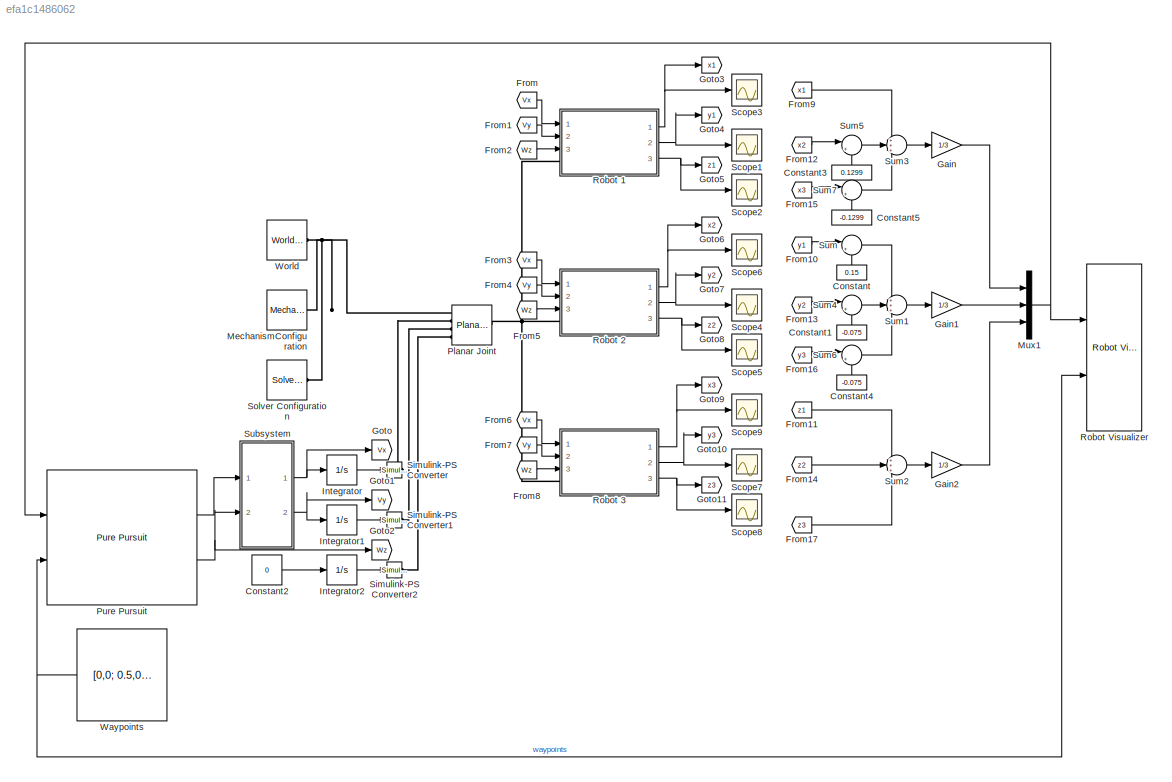
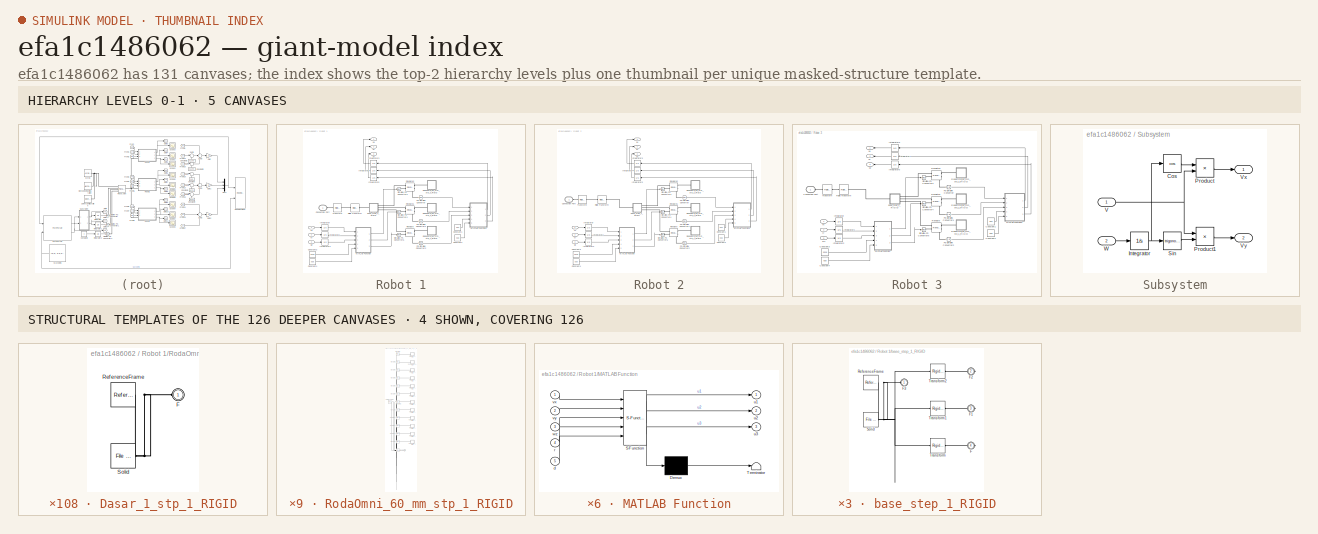
[diagram: thumbnail index - top-2 hierarchy levels (5 canvases) + 4 structural-template representatives of the remaining 126 canvases]
MODEL slx_efa1c1486062
KIND model
CONFIG AbsTol = auto
CONFIG EnableMultiTasking = on
CONFIG FixedStep = auto
CONFIG MaxStep = auto
CONFIG MinStep = auto
CONFIG RelTol = 1e-3
CONFIG SampleTimeConstraint = Unconstrained
CONFIG SolverName = VariableStepAuto
CONFIG StartTime = 0.0
CONFIG StopTime = 15
WORKSPACE source: external: MATLAB File  (data not in archive)
BLOCK [Constant] Constant
  NameLocation = left
  Value = 0.15
BLOCK [Constant] Constant1
  NameLocation = left
  Value = -0.075
BLOCK [Constant] Constant2
  Value = 0
BLOCK [Constant] Constant3
  NameLocation = left
  Value = 0.1299
BLOCK [Constant] Constant4
  NameLocation = left
  Value = -0.075
BLOCK [Constant] Constant5
  NameLocation = left
  Value = -0.1299
BLOCK [From] From
  GotoTag = Vx
BLOCK [From] From1
  GotoTag = Vy
BLOCK [From] From10
  GotoTag = y1
BLOCK [From] From11
  GotoTag = z1
BLOCK [From] From12
  GotoTag = x2
BLOCK [From] From13
  GotoTag = y2
BLOCK [From] From14
  GotoTag = z2
BLOCK [From] From15
  GotoTag = x3
BLOCK [From] From16
  GotoTag = y3
BLOCK [From] From17
  GotoTag = z3
BLOCK [From] From2
  GotoTag = Wz
BLOCK [From] From3
  GotoTag = Vx
BLOCK [From] From4
  GotoTag = Vy
BLOCK [From] From5
  GotoTag = Wz
BLOCK [From] From6
  GotoTag = Vx
BLOCK [From] From7
  GotoTag = Vy
BLOCK [From] From8
  GotoTag = Wz
BLOCK [From] From9
  GotoTag = x1
BLOCK [Gain] Gain
  Gain = 1/3
BLOCK [Gain] Gain1
  Gain = 1/3
BLOCK [Gain] Gain2
  Gain = 1/3
BLOCK [Goto] Goto
  GotoTag = Vx
BLOCK [Goto] Goto1
  GotoTag = Vy
BLOCK [Goto] Goto10
  GotoTag = y3
BLOCK [Goto] Goto11
  GotoTag = z3
BLOCK [Goto] Goto2
  GotoTag = Wz
BLOCK [Goto] Goto3
  GotoTag = x1
BLOCK [Goto] Goto4
  GotoTag = y1
BLOCK [Goto] Goto5
  GotoTag = z1
BLOCK [Goto] Goto6
  GotoTag = x2
BLOCK [Goto] Goto7
  GotoTag = y2
BLOCK [Goto] Goto8
  GotoTag = z2
BLOCK [Goto] Goto9
  GotoTag = x3
BLOCK [Integrator] Integrator
  Ports = [1, 1]
BLOCK [Integrator] Integrator1
  Ports = [1, 1]
BLOCK [Integrator] Integrator2
  Ports = [1, 1]
BLOCK [Reference] MechanismConfiguration  REF=sm_lib/Utilities/Mechanism
Configuration
  Ports = [0, 0, 0, 0, 0, 0, 1]
  SourceBlock = sm_lib/Utilities/Mechanism\nConfiguration
  SourceProductBaseCode = MS
  SourceType = Mechanism\nConfiguration
BLOCK [Mux] Mux1
  DisplayOption = bar
  Inputs = 3
  Ports = [3, 1]
BLOCK [Reference] Planar Joint  REF=sm_lib/Joints/Planar Joint
  Ports = [0, 0, 0, 0, 0, 4, 1]
  SourceBlock = sm_lib/Joints/Planar Joint
  SourceProductBaseCode = MS
  SourceType = Planar Joint
BLOCK [Reference] Pure Pursuit  REF=robotalgslib/Pure Pursuit
  Ports = [2, 2]
  SourceBlock = robotalgslib/Pure Pursuit
  SourceProductBaseCode = NV,RO
  SourceType = nav.slalgs.internal.PurePursuit
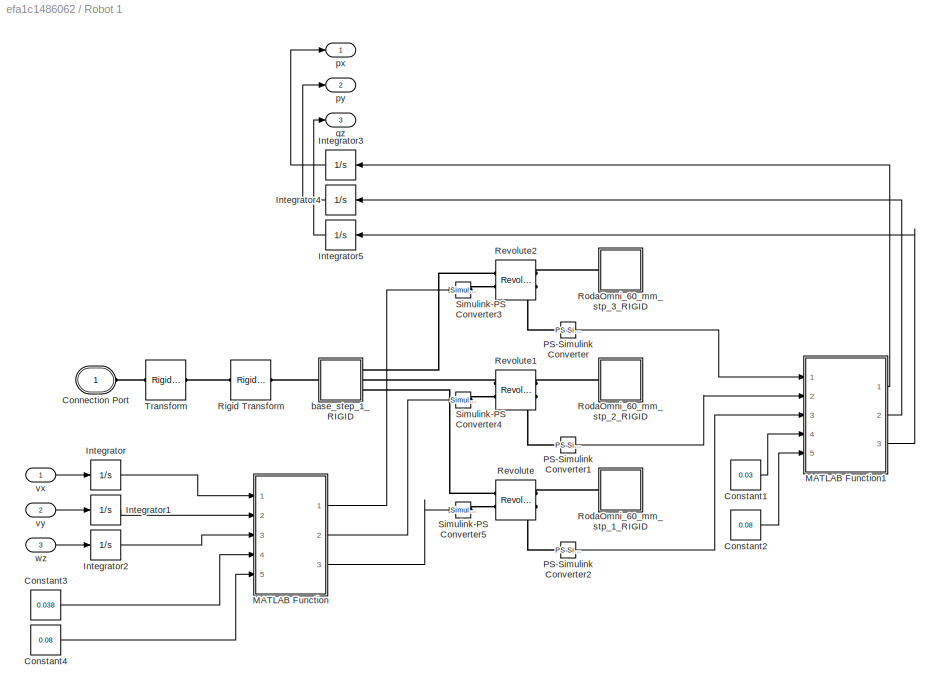
BLOCK [SubSystem] Robot 1
  Ports = [3, 3, 0, 0, 0, 1]
  RequestExecContextInheritance = off
BLOCK [PMIOPort] Robot 1/Connection Port
  Side = Left
  Tag = PMCPort
BLOCK [Constant] Robot 1/Constant1
  Value = 0.03
BLOCK [Constant] Robot 1/Constant2
  Value = 0.08
BLOCK [Constant] Robot 1/Constant3
  Value = 0.038
BLOCK [Constant] Robot 1/Constant4
  Value = 0.08
BLOCK [Integrator] Robot 1/Integrator
  Ports = [1, 1]
BLOCK [Integrator] Robot 1/Integrator1
  Ports = [1, 1]
BLOCK [Integrator] Robot 1/Integrator2
  Ports = [1, 1]
BLOCK [Integrator] Robot 1/Integrator3
  Ports = [1, 1]
BLOCK [Integrator] Robot 1/Integrator4
  Ports = [1, 1]
BLOCK [Integrator] Robot 1/Integrator5
  Ports = [1, 1]
BLOCK [SubSystem] Robot 1/MATLAB Function
  ErrorFcn = Stateflow.Translate.translate
  PermitHierarchicalResolution = ExplicitOnly
  Ports = [5, 3]
  RequestExecContextInheritance = off
  SFBlockType = MATLAB Function
  TreatAsAtomicUnit = on
BLOCK [Demux] Robot 1/MATLAB Function/ Demux 
  Outputs = 1
  Ports = [1, 1]
BLOCK [S-Function] Robot 1/MATLAB Function/ SFunction 
  EnableBusSupport = on
  FunctionName = sf_sfun
  PortCounts = [5 4]
  Ports = [5, 4]
  SFcnIsStateOwnerBlock = off
  SFunctionDeploymentMode = off
  Tag = Stateflow S-Function 2
BLOCK [Terminator] Robot 1/MATLAB Function/ Terminator 
BLOCK [Inport] Robot 1/MATLAB Function/d
  Port = 5
BLOCK [Inport] Robot 1/MATLAB Function/r
  Port = 4
BLOCK [Outport] Robot 1/MATLAB Function/u1
BLOCK [Outport] Robot 1/MATLAB Function/u2
  Port = 2
BLOCK [Outport] Robot 1/MATLAB Function/u3
  Port = 3
BLOCK [Inport] Robot 1/MATLAB Function/vx
BLOCK [Inport] Robot 1/MATLAB Function/vy
  Port = 2
BLOCK [Inport] Robot 1/MATLAB Function/wz
  Port = 3
BLOCK [SubSystem] Robot 1/MATLAB Function1
  ErrorFcn = Stateflow.Translate.translate
  PermitHierarchicalResolution = ExplicitOnly
  Ports = [5, 3]
  RequestExecContextInheritance = off
  SFBlockType = MATLAB Function
  TreatAsAtomicUnit = on
BLOCK [Demux] Robot 1/MATLAB Function1/ Demux 
  Outputs = 1
  Ports = [1, 1]
BLOCK [S-Function] Robot 1/MATLAB Function1/ SFunction 
  EnableBusSupport = on
  FunctionName = sf_sfun
  PortCounts = [5 4]
  Ports = [5, 4]
  SFcnIsStateOwnerBlock = off
  SFunctionDeploymentMode = off
  Tag = Stateflow S-Function 4
BLOCK [Terminator] Robot 1/MATLAB Function1/ Terminator 
BLOCK [Inport] Robot 1/MATLAB Function1/d
  Port = 5
BLOCK [Inport] Robot 1/MATLAB Function1/r
  Port = 4
BLOCK [Inport] Robot 1/MATLAB Function1/v1
BLOCK [Inport] Robot 1/MATLAB Function1/v2
  Port = 2
BLOCK [Inport] Robot 1/MATLAB Function1/v3
  Port = 3
BLOCK [Outport] Robot 1/MATLAB Function1/vx
BLOCK [Outport] Robot 1/MATLAB Function1/vy
  Port = 2
BLOCK [Outport] Robot 1/MATLAB Function1/wz
  Port = 3
BLOCK [Reference] Robot 1/PS-Simulink Converter  REF=nesl_utility/PS-Simulink
Converter
  Ports = [0, 1, 0, 0, 0, 1]
  SourceBlock = nesl_utility/PS-Simulink\nConverter
  SourceProductBaseCode = SS
  SourceType = PS-Simulink\nConverter
BLOCK [Reference] Robot 1/PS-Simulink Converter1  REF=nesl_utility/PS-Simulink
Converter
  Ports = [0, 1, 0, 0, 0, 1]
  SourceBlock = nesl_utility/PS-Simulink\nConverter
  SourceProductBaseCode = SS
  SourceType = PS-Simulink\nConverter
BLOCK [Reference] Robot 1/PS-Simulink Converter2  REF=nesl_utility/PS-Simulink
Converter
  Ports = [0, 1, 0, 0, 0, 1]
  SourceBlock = nesl_utility/PS-Simulink\nConverter
  SourceProductBaseCode = SS
  SourceType = PS-Simulink\nConverter
BLOCK [Reference] Robot 1/Revolute  REF=sm_lib/Joints/Revolute Joint
  Ports = [0, 0, 0, 0, 0, 2, 2]
  SourceBlock = sm_lib/Joints/Revolute Joint
  SourceProductBaseCode = MS
  SourceType = Revolute Joint
BLOCK [Reference] Robot 1/Revolute1  REF=sm_lib/Joints/Revolute Joint
  Ports = [0, 0, 0, 0, 0, 2, 2]
  SourceBlock = sm_lib/Joints/Revolute Joint
  SourceProductBaseCode = MS
  SourceType = Revolute Joint
BLOCK [Reference] Robot 1/Revolute2  REF=sm_lib/Joints/Revolute Joint
  Ports = [0, 0, 0, 0, 0, 2, 2]
  SourceBlock = sm_lib/Joints/Revolute Joint
  SourceProductBaseCode = MS
  SourceType = Revolute Joint
BLOCK [Reference] Robot 1/Rigid Transform  REF=sm_lib/Frames and
Transforms/Rigid
Transform
  Ports = [0, 0, 0, 0, 0, 1, 1]
  SourceBlock = sm_lib/Frames and\nTransforms/Rigid\nTransform
  SourceProductBaseCode = MS
  SourceType = Rigid\nTransform
BLOCK [SubSystem] Robot 1/RodaOmni_60_mm_stp_1_RIGID
  Ports = [0, 0, 0, 0, 0, 1]
  RequestExecContextInheritance = off
BLOCK [SubSystem] Robot 1/RodaOmni_60_mm_stp_1_RIGID/Dasar_1_stp_1_RIGID
  Ports = [0, 0, 0, 0, 0, 1]
  RequestExecContextInheritance = off
BLOCK [PMIOPort] Robot 1/RodaOmni_60_mm_stp_1_RIGID/Dasar_1_stp_1_RIGID/F
  Side = Left
BLOCK [Reference] Robot 1/RodaOmni_60_mm_stp_1_RIGID/Dasar_1_stp_1_RIGID/ReferenceFrame  REF=sm_lib/Frames and
Transforms/Reference
Frame
  Ports = [0, 0, 0, 0, 0, 0, 1]
  SourceBlock = sm_lib/Frames and\nTransforms/Reference\nFrame
  SourceProductBaseCode = MS
  SourceType = Reference\nFrame
BLOCK [Reference] Robot 1/RodaOmni_60_mm_stp_1_RIGID/Dasar_1_stp_1_RIGID/Solid  REF=sm_lib/Body Elements/File Solid
  Ports = [0, 0, 0, 0, 0, 0, 1]
  SourceBlock = sm_lib/Body Elements/File Solid
  SourceProductBaseCode = MS
  SourceType = File Solid
BLOCK [SubSystem] Robot 1/RodaOmni_60_mm_stp_1_RIGID/Dasar_stp_1_RIGID
  Ports = [0, 0, 0, 0, 0, 1]
  RequestExecContextInheritance = off
BLOCK [PMIOPort] Robot 1/RodaOmni_60_mm_stp_1_RIGID/Dasar_stp_1_RIGID/F
  Side = Left
BLOCK [Reference] Robot 1/RodaOmni_60_mm_stp_1_RIGID/Dasar_stp_1_RIGID/ReferenceFrame  REF=sm_lib/Frames and
Transforms/Reference
Frame
  Ports = [0, 0, 0, 0, 0, 0, 1]
  SourceBlock = sm_lib/Frames and\nTransforms/Reference\nFrame
  SourceProductBaseCode = MS
  SourceType = Reference\nFrame
BLOCK [Reference] Robot 1/RodaOmni_60_mm_stp_1_RIGID/Dasar_stp_1_RIGID/Solid  REF=sm_lib/Body Elements/File Solid
  Ports = [0, 0, 0, 0, 0, 0, 1]
  SourceBlock = sm_lib/Body Elements/File Solid
  SourceProductBaseCode = MS
  SourceType = File Solid
BLOCK [PMIOPort] Robot 1/RodaOmni_60_mm_stp_1_RIGID/F
  Side = Left
BLOCK [Reference] Robot 1/RodaOmni_60_mm_stp_1_RIGID/ReferenceFrame  REF=sm_lib/Frames and
Transforms/Reference
Frame
  Ports = [0, 0, 0, 0, 0, 0, 1]
  SourceBlock = sm_lib/Frames and\nTransforms/Reference\nFrame
  SourceProductBaseCode = MS
  SourceType = Reference\nFrame
BLOCK [SubSystem] Robot 1/RodaOmni_60_mm_stp_1_RIGID/Roller_stp_10_RIGID
  Ports = [0, 0, 0, 0, 0, 1]
  RequestExecContextInheritance = off
BLOCK [PMIOPort] Robot 1/RodaOmni_60_mm_stp_1_RIGID/Roller_stp_10_RIGID/F
  Side = Left
BLOCK [Reference] Robot 1/RodaOmni_60_mm_stp_1_RIGID/Roller_stp_10_RIGID/ReferenceFrame  REF=sm_lib/Frames and
Transforms/Reference
Frame
  Ports = [0, 0, 0, 0, 0, 0, 1]
  SourceBlock = sm_lib/Frames and\nTransforms/Reference\nFrame
  SourceProductBaseCode = MS
  SourceType = Reference\nFrame
BLOCK [Reference] Robot 1/RodaOmni_60_mm_stp_1_RIGID/Roller_stp_10_RIGID/Solid  REF=sm_lib/Body Elements/File Solid
  Ports = [0, 0, 0, 0, 0, 0, 1]
  SourceBlock = sm_lib/Body Elements/File Solid
  SourceProductBaseCode = MS
  SourceType = File Solid
BLOCK [SubSystem] Robot 1/RodaOmni_60_mm_stp_1_RIGID/Roller_stp_1_RIGID
  Ports = [0, 0, 0, 0, 0, 1]
  RequestExecContextInheritance = off
BLOCK [PMIOPort] Robot 1/RodaOmni_60_mm_stp_1_RIGID/Roller_stp_1_RIGID/F
  Side = Left
BLOCK [Reference] Robot 1/RodaOmni_60_mm_stp_1_RIGID/Roller_stp_1_RIGID/ReferenceFrame  REF=sm_lib/Frames and
Transforms/Reference
Frame
  Ports = [0, 0, 0, 0, 0, 0, 1]
  SourceBlock = sm_lib/Frames and\nTransforms/Reference\nFrame
  SourceProductBaseCode = MS
  SourceType = Reference\nFrame
BLOCK [Reference] Robot 1/RodaOmni_60_mm_stp_1_RIGID/Roller_stp_1_RIGID/Solid  REF=sm_lib/Body Elements/File Solid
  Ports = [0, 0, 0, 0, 0, 0, 1]
  SourceBlock = sm_lib/Body Elements/File Solid
  SourceProductBaseCode = MS
  SourceType = File Solid
BLOCK [SubSystem] Robot 1/RodaOmni_60_mm_stp_1_RIGID/Roller_stp_2_RIGID
  Ports = [0, 0, 0, 0, 0, 1]
  RequestExecContextInheritance = off
BLOCK [PMIOPort] Robot 1/RodaOmni_60_mm_stp_1_RIGID/Roller_stp_2_RIGID/F
  Side = Left
BLOCK [Reference] Robot 1/RodaOmni_60_mm_stp_1_RIGID/Roller_stp_2_RIGID/ReferenceFrame  REF=sm_lib/Frames and
Transforms/Reference
Frame
  Ports = [0, 0, 0, 0, 0, 0, 1]
  SourceBlock = sm_lib/Frames and\nTransforms/Reference\nFrame
  SourceProductBaseCode = MS
  SourceType = Reference\nFrame
BLOCK [Reference] Robot 1/RodaOmni_60_mm_stp_1_RIGID/Roller_stp_2_RIGID/Solid  REF=sm_lib/Body Elements/File Solid
  Ports = [0, 0, 0, 0, 0, 0, 1]
  SourceBlock = sm_lib/Body Elements/File Solid
  SourceProductBaseCode = MS
  SourceType = File Solid
BLOCK [SubSystem] Robot 1/RodaOmni_60_mm_stp_1_RIGID/Roller_stp_3_RIGID
  Ports = [0, 0, 0, 0, 0, 1]
  RequestExecContextInheritance = off
BLOCK [PMIOPort] Robot 1/RodaOmni_60_mm_stp_1_RIGID/Roller_stp_3_RIGID/F
  Side = Left
BLOCK [Reference] Robot 1/RodaOmni_60_mm_stp_1_RIGID/Roller_stp_3_RIGID/ReferenceFrame  REF=sm_lib/Frames and
Transforms/Reference
Frame
  Ports = [0, 0, 0, 0, 0, 0, 1]
  SourceBlock = sm_lib/Frames and\nTransforms/Reference\nFrame
  SourceProductBaseCode = MS
  SourceType = Reference\nFrame
BLOCK [Reference] Robot 1/RodaOmni_60_mm_stp_1_RIGID/Roller_stp_3_RIGID/Solid  REF=sm_lib/Body Elements/File Solid
  Ports = [0, 0, 0, 0, 0, 0, 1]
  SourceBlock = sm_lib/Body Elements/File Solid
  SourceProductBaseCode = MS
  SourceType = File Solid
BLOCK [SubSystem] Robot 1/RodaOmni_60_mm_stp_1_RIGID/Roller_stp_4_RIGID
  Ports = [0, 0, 0, 0, 0, 1]
  RequestExecContextInheritance = off
BLOCK [PMIOPort] Robot 1/RodaOmni_60_mm_stp_1_RIGID/Roller_stp_4_RIGID/F
  Side = Left
BLOCK [Reference] Robot 1/RodaOmni_60_mm_stp_1_RIGID/Roller_stp_4_RIGID/ReferenceFrame  REF=sm_lib/Frames and
Transforms/Reference
Frame
  Ports = [0, 0, 0, 0, 0, 0, 1]
  SourceBlock = sm_lib/Frames and\nTransforms/Reference\nFrame
  SourceProductBaseCode = MS
  SourceType = Reference\nFrame
BLOCK [Reference] Robot 1/RodaOmni_60_mm_stp_1_RIGID/Roller_stp_4_RIGID/Solid  REF=sm_lib/Body Elements/File Solid
  Ports = [0, 0, 0, 0, 0, 0, 1]
  SourceBlock = sm_lib/Body Elements/File Solid
  SourceProductBaseCode = MS
  SourceType = File Solid
BLOCK [SubSystem] Robot 1/RodaOmni_60_mm_stp_1_RIGID/Roller_stp_5_RIGID
  Ports = [0, 0, 0, 0, 0, 1]
  RequestExecContextInheritance = off
BLOCK [PMIOPort] Robot 1/RodaOmni_60_mm_stp_1_RIGID/Roller_stp_5_RIGID/F
  Side = Left
BLOCK [Reference] Robot 1/RodaOmni_60_mm_stp_1_RIGID/Roller_stp_5_RIGID/ReferenceFrame  REF=sm_lib/Frames and
Transforms/Reference
Frame
  Ports = [0, 0, 0, 0, 0, 0, 1]
  SourceBlock = sm_lib/Frames and\nTransforms/Reference\nFrame
  SourceProductBaseCode = MS
  SourceType = Reference\nFrame
BLOCK [Reference] Robot 1/RodaOmni_60_mm_stp_1_RIGID/Roller_stp_5_RIGID/Solid  REF=sm_lib/Body Elements/File Solid
  Ports = [0, 0, 0, 0, 0, 0, 1]
  SourceBlock = sm_lib/Body Elements/File Solid
  SourceProductBaseCode = MS
  SourceType = File Solid
BLOCK [SubSystem] Robot 1/RodaOmni_60_mm_stp_1_RIGID/Roller_stp_6_RIGID
  Ports = [0, 0, 0, 0, 0, 1]
  RequestExecContextInheritance = off
BLOCK [PMIOPort] Robot 1/RodaOmni_60_mm_stp_1_RIGID/Roller_stp_6_RIGID/F
  Side = Left
BLOCK [Reference] Robot 1/RodaOmni_60_mm_stp_1_RIGID/Roller_stp_6_RIGID/ReferenceFrame  REF=sm_lib/Frames and
Transforms/Reference
Frame
  Ports = [0, 0, 0, 0, 0, 0, 1]
  SourceBlock = sm_lib/Frames and\nTransforms/Reference\nFrame
  SourceProductBaseCode = MS
  SourceType = Reference\nFrame
BLOCK [Reference] Robot 1/RodaOmni_60_mm_stp_1_RIGID/Roller_stp_6_RIGID/Solid  REF=sm_lib/Body Elements/File Solid
  Ports = [0, 0, 0, 0, 0, 0, 1]
  SourceBlock = sm_lib/Body Elements/File Solid
  SourceProductBaseCode = MS
  SourceType = File Solid
BLOCK [SubSystem] Robot 1/RodaOmni_60_mm_stp_1_RIGID/Roller_stp_7_RIGID
  Ports = [0, 0, 0, 0, 0, 1]
  RequestExecContextInheritance = off
BLOCK [PMIOPort] Robot 1/RodaOmni_60_mm_stp_1_RIGID/Roller_stp_7_RIGID/F
  Side = Left
BLOCK [Reference] Robot 1/RodaOmni_60_mm_stp_1_RIGID/Roller_stp_7_RIGID/ReferenceFrame  REF=sm_lib/Frames and
Transforms/Reference
Frame
  Ports = [0, 0, 0, 0, 0, 0, 1]
  SourceBlock = sm_lib/Frames and\nTransforms/Reference\nFrame
  SourceProductBaseCode = MS
  SourceType = Reference\nFrame
BLOCK [Reference] Robot 1/RodaOmni_60_mm_stp_1_RIGID/Roller_stp_7_RIGID/Solid  REF=sm_lib/Body Elements/File Solid
  Ports = [0, 0, 0, 0, 0, 0, 1]
  SourceBlock = sm_lib/Body Elements/File Solid
  SourceProductBaseCode = MS
  SourceType = File Solid
BLOCK [SubSystem] Robot 1/RodaOmni_60_mm_stp_1_RIGID/Roller_stp_8_RIGID
  Ports = [0, 0, 0, 0, 0, 1]
  RequestExecContextInheritance = off
BLOCK [PMIOPort] Robot 1/RodaOmni_60_mm_stp_1_RIGID/Roller_stp_8_RIGID/F
  Side = Left
BLOCK [Reference] Robot 1/RodaOmni_60_mm_stp_1_RIGID/Roller_stp_8_RIGID/ReferenceFrame  REF=sm_lib/Frames and
Transforms/Reference
Frame
  Ports = [0, 0, 0, 0, 0, 0, 1]
  SourceBlock = sm_lib/Frames and\nTransforms/Reference\nFrame
  SourceProductBaseCode = MS
  SourceType = Reference\nFrame
BLOCK [Reference] Robot 1/RodaOmni_60_mm_stp_1_RIGID/Roller_stp_8_RIGID/Solid  REF=sm_lib/Body Elements/File Solid
  Ports = [0, 0, 0, 0, 0, 0, 1]
  SourceBlock = sm_lib/Body Elements/File Solid
  SourceProductBaseCode = MS
  SourceType = File Solid
BLOCK [SubSystem] Robot 1/RodaOmni_60_mm_stp_1_RIGID/Roller_stp_9_RIGID
  Ports = [0, 0, 0, 0, 0, 1]
  RequestExecContextInheritance = off
BLOCK [PMIOPort] Robot 1/RodaOmni_60_mm_stp_1_RIGID/Roller_stp_9_RIGID/F
  Side = Left
BLOCK [Reference] Robot 1/RodaOmni_60_mm_stp_1_RIGID/Roller_stp_9_RIGID/ReferenceFrame  REF=sm_lib/Frames and
Transforms/Reference
Frame
  Ports = [0, 0, 0, 0, 0, 0, 1]
  SourceBlock = sm_lib/Frames and\nTransforms/Reference\nFrame
  SourceProductBaseCode = MS
  SourceType = Reference\nFrame
BLOCK [Reference] Robot 1/RodaOmni_60_mm_stp_1_RIGID/Roller_stp_9_RIGID/Solid  REF=sm_lib/Body Elements/File Solid
  Ports = [0, 0, 0, 0, 0, 0, 1]
  SourceBlock = sm_lib/Body Elements/File Solid
  SourceProductBaseCode = MS
  SourceType = File Solid
BLOCK [Reference] Robot 1/RodaOmni_60_mm_stp_1_RIGID/Transform  REF=sm_lib/Frames and
Transforms/Rigid
Transform
  Ports = [0, 0, 0, 0, 0, 1, 1]
  SourceBlock = sm_lib/Frames and\nTransforms/Rigid\nTransform
  SourceProductBaseCode = MS
  SourceType = Rigid\nTransform
BLOCK [Reference] Robot 1/RodaOmni_60_mm_stp_1_RIGID/Transform1  REF=sm_lib/Frames and
Transforms/Rigid
Transform
  Ports = [0, 0, 0, 0, 0, 1, 1]
  SourceBlock = sm_lib/Frames and\nTransforms/Rigid\nTransform
  SourceProductBaseCode = MS
  SourceType = Rigid\nTransform
BLOCK [Reference] Robot 1/RodaOmni_60_mm_stp_1_RIGID/Transform10  REF=sm_lib/Frames and
Transforms/Rigid
Transform
  Ports = [0, 0, 0, 0, 0, 1, 1]
  SourceBlock = sm_lib/Frames and\nTransforms/Rigid\nTransform
  SourceProductBaseCode = MS
  SourceType = Rigid\nTransform
BLOCK [Reference] Robot 1/RodaOmni_60_mm_stp_1_RIGID/Transform11  REF=sm_lib/Frames and
Transforms/Rigid
Transform
  Ports = [0, 0, 0, 0, 0, 1, 1]
  SourceBlock = sm_lib/Frames and\nTransforms/Rigid\nTransform
  SourceProductBaseCode = MS
  SourceType = Rigid\nTransform
BLOCK [Reference] Robot 1/RodaOmni_60_mm_stp_1_RIGID/Transform12  REF=sm_lib/Frames and
Transforms/Rigid
Transform
  Ports = [0, 0, 0, 0, 0, 1, 1]
  SourceBlock = sm_lib/Frames and\nTransforms/Rigid\nTransform
  SourceProductBaseCode = MS
  SourceType = Rigid\nTransform
BLOCK [Reference] Robot 1/RodaOmni_60_mm_stp_1_RIGID/Transform2  REF=sm_lib/Frames and
Transforms/Rigid
Transform
  Ports = [0, 0, 0, 0, 0, 1, 1]
  SourceBlock = sm_lib/Frames and\nTransforms/Rigid\nTransform
  SourceProductBaseCode = MS
  SourceType = Rigid\nTransform
BLOCK [Reference] Robot 1/RodaOmni_60_mm_stp_1_RIGID/Transform3  REF=sm_lib/Frames and
Transforms/Rigid
Transform
  Ports = [0, 0, 0, 0, 0, 1, 1]
  SourceBlock = sm_lib/Frames and\nTransforms/Rigid\nTransform
  SourceProductBaseCode = MS
  SourceType = Rigid\nTransform
BLOCK [Reference] Robot 1/RodaOmni_60_mm_stp_1_RIGID/Transform4  REF=sm_lib/Frames and
Transforms/Rigid
Transform
  Ports = [0, 0, 0, 0, 0, 1, 1]
  SourceBlock = sm_lib/Frames and\nTransforms/Rigid\nTransform
  SourceProductBaseCode = MS
  SourceType = Rigid\nTransform
BLOCK [Reference] Robot 1/RodaOmni_60_mm_stp_1_RIGID/Transform5  REF=sm_lib/Frames and
Transforms/Rigid
Transform
  Ports = [0, 0, 0, 0, 0, 1, 1]
  SourceBlock = sm_lib/Frames and\nTransforms/Rigid\nTransform
  SourceProductBaseCode = MS
  SourceType = Rigid\nTransform
BLOCK [Reference] Robot 1/RodaOmni_60_mm_stp_1_RIGID/Transform6  REF=sm_lib/Frames and
Transforms/Rigid
Transform
  Ports = [0, 0, 0, 0, 0, 1, 1]
  SourceBlock = sm_lib/Frames and\nTransforms/Rigid\nTransform
  SourceProductBaseCode = MS
  SourceType = Rigid\nTransform
BLOCK [Reference] Robot 1/RodaOmni_60_mm_stp_1_RIGID/Transform7  REF=sm_lib/Frames and
Transforms/Rigid
Transform
  Ports = [0, 0, 0, 0, 0, 1, 1]
  SourceBlock = sm_lib/Frames and\nTransforms/Rigid\nTransform
  SourceProductBaseCode = MS
  SourceType = Rigid\nTransform
BLOCK [Reference] Robot 1/RodaOmni_60_mm_stp_1_RIGID/Transform8  REF=sm_lib/Frames and
Transforms/Rigid
Transform
  Ports = [0, 0, 0, 0, 0, 1, 1]
  SourceBlock = sm_lib/Frames and\nTransforms/Rigid\nTransform
  SourceProductBaseCode = MS
  SourceType = Rigid\nTransform
BLOCK [Reference] Robot 1/RodaOmni_60_mm_stp_1_RIGID/Transform9  REF=sm_lib/Frames and
Transforms/Rigid
Transform
  Ports = [0, 0, 0, 0, 0, 1, 1]
  SourceBlock = sm_lib/Frames and\nTransforms/Rigid\nTransform
  SourceProductBaseCode = MS
  SourceType = Rigid\nTransform
BLOCK [SubSystem] Robot 1/RodaOmni_60_mm_stp_2_RIGID
  Ports = [0, 0, 0, 0, 0, 1]
  RequestExecContextInheritance = off
BLOCK [SubSystem] Robot 1/RodaOmni_60_mm_stp_2_RIGID/Dasar_1_stp_1_RIGID
  Ports = [0, 0, 0, 0, 0, 1]
  RequestExecContextInheritance = off
BLOCK [PMIOPort] Robot 1/RodaOmni_60_mm_stp_2_RIGID/Dasar_1_stp_1_RIGID/F
  Side = Left
BLOCK [Reference] Robot 1/RodaOmni_60_mm_stp_2_RIGID/Dasar_1_stp_1_RIGID/ReferenceFrame  REF=sm_lib/Frames and
Transforms/Reference
Frame
  Ports = [0, 0, 0, 0, 0, 0, 1]
  SourceBlock = sm_lib/Frames and\nTransforms/Reference\nFrame
  SourceProductBaseCode = MS
  SourceType = Reference\nFrame
BLOCK [Reference] Robot 1/RodaOmni_60_mm_stp_2_RIGID/Dasar_1_stp_1_RIGID/Solid  REF=sm_lib/Body Elements/File Solid
  Ports = [0, 0, 0, 0, 0, 0, 1]
  SourceBlock = sm_lib/Body Elements/File Solid
  SourceProductBaseCode = MS
  SourceType = File Solid
BLOCK [SubSystem] Robot 1/RodaOmni_60_mm_stp_2_RIGID/Dasar_stp_1_RIGID
  Ports = [0, 0, 0, 0, 0, 1]
  RequestExecContextInheritance = off
BLOCK [PMIOPort] Robot 1/RodaOmni_60_mm_stp_2_RIGID/Dasar_stp_1_RIGID/F
  Side = Left
BLOCK [Reference] Robot 1/RodaOmni_60_mm_stp_2_RIGID/Dasar_stp_1_RIGID/ReferenceFrame  REF=sm_lib/Frames and
Transforms/Reference
Frame
  Ports = [0, 0, 0, 0, 0, 0, 1]
  SourceBlock = sm_lib/Frames and\nTransforms/Reference\nFrame
  SourceProductBaseCode = MS
  SourceType = Reference\nFrame
BLOCK [Reference] Robot 1/RodaOmni_60_mm_stp_2_RIGID/Dasar_stp_1_RIGID/Solid  REF=sm_lib/Body Elements/File Solid
  Ports = [0, 0, 0, 0, 0, 0, 1]
  SourceBlock = sm_lib/Body Elements/File Solid
  SourceProductBaseCode = MS
  SourceType = File Solid
BLOCK [PMIOPort] Robot 1/RodaOmni_60_mm_stp_2_RIGID/F
  Side = Left
BLOCK [Reference] Robot 1/RodaOmni_60_mm_stp_2_RIGID/ReferenceFrame  REF=sm_lib/Frames and
Transforms/Reference
Frame
  Ports = [0, 0, 0, 0, 0, 0, 1]
  SourceBlock = sm_lib/Frames and\nTransforms/Reference\nFrame
  SourceProductBaseCode = MS
  SourceType = Reference\nFrame
BLOCK [SubSystem] Robot 1/RodaOmni_60_mm_stp_2_RIGID/Roller_stp_10_RIGID
  Ports = [0, 0, 0, 0, 0, 1]
  RequestExecContextInheritance = off
BLOCK [PMIOPort] Robot 1/RodaOmni_60_mm_stp_2_RIGID/Roller_stp_10_RIGID/F
  Side = Left
BLOCK [Reference] Robot 1/RodaOmni_60_mm_stp_2_RIGID/Roller_stp_10_RIGID/ReferenceFrame  REF=sm_lib/Frames and
Transforms/Reference
Frame
  Ports = [0, 0, 0, 0, 0, 0, 1]
  SourceBlock = sm_lib/Frames and\nTransforms/Reference\nFrame
  SourceProductBaseCode = MS
  SourceType = Reference\nFrame
BLOCK [Reference] Robot 1/RodaOmni_60_mm_stp_2_RIGID/Roller_stp_10_RIGID/Solid  REF=sm_lib/Body Elements/File Solid
  Ports = [0, 0, 0, 0, 0, 0, 1]
  SourceBlock = sm_lib/Body Elements/File Solid
  SourceProductBaseCode = MS
  SourceType = File Solid
BLOCK [SubSystem] Robot 1/RodaOmni_60_mm_stp_2_RIGID/Roller_stp_1_RIGID
  Ports = [0, 0, 0, 0, 0, 1]
  RequestExecContextInheritance = off
BLOCK [PMIOPort] Robot 1/RodaOmni_60_mm_stp_2_RIGID/Roller_stp_1_RIGID/F
  Side = Left
BLOCK [Reference] Robot 1/RodaOmni_60_mm_stp_2_RIGID/Roller_stp_1_RIGID/ReferenceFrame  REF=sm_lib/Frames and
Transforms/Reference
Frame
  Ports = [0, 0, 0, 0, 0, 0, 1]
  SourceBlock = sm_lib/Frames and\nTransforms/Reference\nFrame
  SourceProductBaseCode = MS
  SourceType = Reference\nFrame
BLOCK [Reference] Robot 1/RodaOmni_60_mm_stp_2_RIGID/Roller_stp_1_RIGID/Solid  REF=sm_lib/Body Elements/File Solid
  Ports = [0, 0, 0, 0, 0, 0, 1]
  SourceBlock = sm_lib/Body Elements/File Solid
  SourceProductBaseCode = MS
  SourceType = File Solid
BLOCK [SubSystem] Robot 1/RodaOmni_60_mm_stp_2_RIGID/Roller_stp_2_RIGID
  Ports = [0, 0, 0, 0, 0, 1]
  RequestExecContextInheritance = off
BLOCK [PMIOPort] Robot 1/RodaOmni_60_mm_stp_2_RIGID/Roller_stp_2_RIGID/F
  Side = Left
BLOCK [Reference] Robot 1/RodaOmni_60_mm_stp_2_RIGID/Roller_stp_2_RIGID/ReferenceFrame  REF=sm_lib/Frames and
Transforms/Reference
Frame
  Ports = [0, 0, 0, 0, 0, 0, 1]
  SourceBlock = sm_lib/Frames and\nTransforms/Reference\nFrame
  SourceProductBaseCode = MS
  SourceType = Reference\nFrame
BLOCK [Reference] Robot 1/RodaOmni_60_mm_stp_2_RIGID/Roller_stp_2_RIGID/Solid  REF=sm_lib/Body Elements/File Solid
  Ports = [0, 0, 0, 0, 0, 0, 1]
  SourceBlock = sm_lib/Body Elements/File Solid
  SourceProductBaseCode = MS
  SourceType = File Solid
BLOCK [SubSystem] Robot 1/RodaOmni_60_mm_stp_2_RIGID/Roller_stp_3_RIGID
  Ports = [0, 0, 0, 0, 0, 1]
  RequestExecContextInheritance = off
BLOCK [PMIOPort] Robot 1/RodaOmni_60_mm_stp_2_RIGID/Roller_stp_3_RIGID/F
  Side = Left
BLOCK [Reference] Robot 1/RodaOmni_60_mm_stp_2_RIGID/Roller_stp_3_RIGID/ReferenceFrame  REF=sm_lib/Frames and
Transforms/Reference
Frame
  Ports = [0, 0, 0, 0, 0, 0, 1]
  SourceBlock = sm_lib/Frames and\nTransforms/Reference\nFrame
  SourceProductBaseCode = MS
  SourceType = Reference\nFrame
BLOCK [Reference] Robot 1/RodaOmni_60_mm_stp_2_RIGID/Roller_stp_3_RIGID/Solid  REF=sm_lib/Body Elements/File Solid
  Ports = [0, 0, 0, 0, 0, 0, 1]
  SourceBlock = sm_lib/Body Elements/File Solid
  SourceProductBaseCode = MS
  SourceType = File Solid
BLOCK [SubSystem] Robot 1/RodaOmni_60_mm_stp_2_RIGID/Roller_stp_4_RIGID
  Ports = [0, 0, 0, 0, 0, 1]
  RequestExecContextInheritance = off
BLOCK [PMIOPort] Robot 1/RodaOmni_60_mm_stp_2_RIGID/Roller_stp_4_RIGID/F
  Side = Left
BLOCK [Reference] Robot 1/RodaOmni_60_mm_stp_2_RIGID/Roller_stp_4_RIGID/ReferenceFrame  REF=sm_lib/Frames and
Transforms/Reference
Frame
  Ports = [0, 0, 0, 0, 0, 0, 1]
  SourceBlock = sm_lib/Frames and\nTransforms/Reference\nFrame
  SourceProductBaseCode = MS
  SourceType = Reference\nFrame
BLOCK [Reference] Robot 1/RodaOmni_60_mm_stp_2_RIGID/Roller_stp_4_RIGID/Solid  REF=sm_lib/Body Elements/File Solid
  Ports = [0, 0, 0, 0, 0, 0, 1]
  SourceBlock = sm_lib/Body Elements/File Solid
  SourceProductBaseCode = MS
  SourceType = File Solid
BLOCK [SubSystem] Robot 1/RodaOmni_60_mm_stp_2_RIGID/Roller_stp_5_RIGID
  Ports = [0, 0, 0, 0, 0, 1]
  RequestExecContextInheritance = off
BLOCK [PMIOPort] Robot 1/RodaOmni_60_mm_stp_2_RIGID/Roller_stp_5_RIGID/F
  Side = Left
BLOCK [Reference] Robot 1/RodaOmni_60_mm_stp_2_RIGID/Roller_stp_5_RIGID/ReferenceFrame  REF=sm_lib/Frames and
Transforms/Reference
Frame
  Ports = [0, 0, 0, 0, 0, 0, 1]
  SourceBlock = sm_lib/Frames and\nTransforms/Reference\nFrame
  SourceProductBaseCode = MS
  SourceType = Reference\nFrame
BLOCK [Reference] Robot 1/RodaOmni_60_mm_stp_2_RIGID/Roller_stp_5_RIGID/Solid  REF=sm_lib/Body Elements/File Solid
  Ports = [0, 0, 0, 0, 0, 0, 1]
  SourceBlock = sm_lib/Body Elements/File Solid
  SourceProductBaseCode = MS
  SourceType = File Solid
BLOCK [SubSystem] Robot 1/RodaOmni_60_mm_stp_2_RIGID/Roller_stp_6_RIGID
  Ports = [0, 0, 0, 0, 0, 1]
  RequestExecContextInheritance = off
BLOCK [PMIOPort] Robot 1/RodaOmni_60_mm_stp_2_RIGID/Roller_stp_6_RIGID/F
  Side = Left
BLOCK [Reference] Robot 1/RodaOmni_60_mm_stp_2_RIGID/Roller_stp_6_RIGID/ReferenceFrame  REF=sm_lib/Frames and
Transforms/Reference
Frame
  Ports = [0, 0, 0, 0, 0, 0, 1]
  SourceBlock = sm_lib/Frames and\nTransforms/Reference\nFrame
  SourceProductBaseCode = MS
  SourceType = Reference\nFrame
BLOCK [Reference] Robot 1/RodaOmni_60_mm_stp_2_RIGID/Roller_stp_6_RIGID/Solid  REF=sm_lib/Body Elements/File Solid
  Ports = [0, 0, 0, 0, 0, 0, 1]
  SourceBlock = sm_lib/Body Elements/File Solid
  SourceProductBaseCode = MS
  SourceType = File Solid
BLOCK [SubSystem] Robot 1/RodaOmni_60_mm_stp_2_RIGID/Roller_stp_7_RIGID
  Ports = [0, 0, 0, 0, 0, 1]
  RequestExecContextInheritance = off
BLOCK [PMIOPort] Robot 1/RodaOmni_60_mm_stp_2_RIGID/Roller_stp_7_RIGID/F
  Side = Left
BLOCK [Reference] Robot 1/RodaOmni_60_mm_stp_2_RIGID/Roller_stp_7_RIGID/ReferenceFrame  REF=sm_lib/Frames and
Transforms/Reference
Frame
  Ports = [0, 0, 0, 0, 0, 0, 1]
  SourceBlock = sm_lib/Frames and\nTransforms/Reference\nFrame
  SourceProductBaseCode = MS
  SourceType = Reference\nFrame
BLOCK [Reference] Robot 1/RodaOmni_60_mm_stp_2_RIGID/Roller_stp_7_RIGID/Solid  REF=sm_lib/Body Elements/File Solid
  Ports = [0, 0, 0, 0, 0, 0, 1]
  SourceBlock = sm_lib/Body Elements/File Solid
  SourceProductBaseCode = MS
  SourceType = File Solid
BLOCK [SubSystem] Robot 1/RodaOmni_60_mm_stp_2_RIGID/Roller_stp_8_RIGID
  Ports = [0, 0, 0, 0, 0, 1]
  RequestExecContextInheritance = off
BLOCK [PMIOPort] Robot 1/RodaOmni_60_mm_stp_2_RIGID/Roller_stp_8_RIGID/F
  Side = Left
BLOCK [Reference] Robot 1/RodaOmni_60_mm_stp_2_RIGID/Roller_stp_8_RIGID/ReferenceFrame  REF=sm_lib/Frames and
Transforms/Reference
Frame
  Ports = [0, 0, 0, 0, 0, 0, 1]
  SourceBlock = sm_lib/Frames and\nTransforms/Reference\nFrame
  SourceProductBaseCode = MS
  SourceType = Reference\nFrame
BLOCK [Reference] Robot 1/RodaOmni_60_mm_stp_2_RIGID/Roller_stp_8_RIGID/Solid  REF=sm_lib/Body Elements/File Solid
  Ports = [0, 0, 0, 0, 0, 0, 1]
  SourceBlock = sm_lib/Body Elements/File Solid
  SourceProductBaseCode = MS
  SourceType = File Solid
BLOCK [SubSystem] Robot 1/RodaOmni_60_mm_stp_2_RIGID/Roller_stp_9_RIGID
  Ports = [0, 0, 0, 0, 0, 1]
  RequestExecContextInheritance = off
BLOCK [PMIOPort] Robot 1/RodaOmni_60_mm_stp_2_RIGID/Roller_stp_9_RIGID/F
  Side = Left
BLOCK [Reference] Robot 1/RodaOmni_60_mm_stp_2_RIGID/Roller_stp_9_RIGID/ReferenceFrame  REF=sm_lib/Frames and
Transforms/Reference
Frame
  Ports = [0, 0, 0, 0, 0, 0, 1]
  SourceBlock = sm_lib/Frames and\nTransforms/Reference\nFrame
  SourceProductBaseCode = MS
  SourceType = Reference\nFrame
BLOCK [Reference] Robot 1/RodaOmni_60_mm_stp_2_RIGID/Roller_stp_9_RIGID/Solid  REF=sm_lib/Body Elements/File Solid
  Ports = [0, 0, 0, 0, 0, 0, 1]
  SourceBlock = sm_lib/Body Elements/File Solid
  SourceProductBaseCode = MS
  SourceType = File Solid
BLOCK [Reference] Robot 1/RodaOmni_60_mm_stp_2_RIGID/Transform  REF=sm_lib/Frames and
Transforms/Rigid
Transform
  Ports = [0, 0, 0, 0, 0, 1, 1]
  SourceBlock = sm_lib/Frames and\nTransforms/Rigid\nTransform
  SourceProductBaseCode = MS
  SourceType = Rigid\nTransform
BLOCK [Reference] Robot 1/RodaOmni_60_mm_stp_2_RIGID/Transform1  REF=sm_lib/Frames and
Transforms/Rigid
Transform
  Ports = [0, 0, 0, 0, 0, 1, 1]
  SourceBlock = sm_lib/Frames and\nTransforms/Rigid\nTransform
  SourceProductBaseCode = MS
  SourceType = Rigid\nTransform
BLOCK [Reference] Robot 1/RodaOmni_60_mm_stp_2_RIGID/Transform10  REF=sm_lib/Frames and
Transforms/Rigid
Transform
  Ports = [0, 0, 0, 0, 0, 1, 1]
  SourceBlock = sm_lib/Frames and\nTransforms/Rigid\nTransform
  SourceProductBaseCode = MS
  SourceType = Rigid\nTransform
BLOCK [Reference] Robot 1/RodaOmni_60_mm_stp_2_RIGID/Transform11  REF=sm_lib/Frames and
Transforms/Rigid
Transform
  Ports = [0, 0, 0, 0, 0, 1, 1]
  SourceBlock = sm_lib/Frames and\nTransforms/Rigid\nTransform
  SourceProductBaseCode = MS
  SourceType = Rigid\nTransform
BLOCK [Reference] Robot 1/RodaOmni_60_mm_stp_2_RIGID/Transform12  REF=sm_lib/Frames and
Transforms/Rigid
Transform
  Ports = [0, 0, 0, 0, 0, 1, 1]
  SourceBlock = sm_lib/Frames and\nTransforms/Rigid\nTransform
  SourceProductBaseCode = MS
  SourceType = Rigid\nTransform
BLOCK [Reference] Robot 1/RodaOmni_60_mm_stp_2_RIGID/Transform2  REF=sm_lib/Frames and
Transforms/Rigid
Transform
  Ports = [0, 0, 0, 0, 0, 1, 1]
  SourceBlock = sm_lib/Frames and\nTransforms/Rigid\nTransform
  SourceProductBaseCode = MS
  SourceType = Rigid\nTransform
BLOCK [Reference] Robot 1/RodaOmni_60_mm_stp_2_RIGID/Transform3  REF=sm_lib/Frames and
Transforms/Rigid
Transform
  Ports = [0, 0, 0, 0, 0, 1, 1]
  SourceBlock = sm_lib/Frames and\nTransforms/Rigid\nTransform
  SourceProductBaseCode = MS
  SourceType = Rigid\nTransform
BLOCK [Reference] Robot 1/RodaOmni_60_mm_stp_2_RIGID/Transform4  REF=sm_lib/Frames and
Transforms/Rigid
Transform
  Ports = [0, 0, 0, 0, 0, 1, 1]
  SourceBlock = sm_lib/Frames and\nTransforms/Rigid\nTransform
  SourceProductBaseCode = MS
  SourceType = Rigid\nTransform
BLOCK [Reference] Robot 1/RodaOmni_60_mm_stp_2_RIGID/Transform5  REF=sm_lib/Frames and
Transforms/Rigid
Transform
  Ports = [0, 0, 0, 0, 0, 1, 1]
  SourceBlock = sm_lib/Frames and\nTransforms/Rigid\nTransform
  SourceProductBaseCode = MS
  SourceType = Rigid\nTransform
BLOCK [Reference] Robot 1/RodaOmni_60_mm_stp_2_RIGID/Transform6  REF=sm_lib/Frames and
Transforms/Rigid
Transform
  Ports = [0, 0, 0, 0, 0, 1, 1]
  SourceBlock = sm_lib/Frames and\nTransforms/Rigid\nTransform
  SourceProductBaseCode = MS
  SourceType = Rigid\nTransform
BLOCK [Reference] Robot 1/RodaOmni_60_mm_stp_2_RIGID/Transform7  REF=sm_lib/Frames and
Transforms/Rigid
Transform
  Ports = [0, 0, 0, 0, 0, 1, 1]
  SourceBlock = sm_lib/Frames and\nTransforms/Rigid\nTransform
  SourceProductBaseCode = MS
  SourceType = Rigid\nTransform
BLOCK [Reference] Robot 1/RodaOmni_60_mm_stp_2_RIGID/Transform8  REF=sm_lib/Frames and
Transforms/Rigid
Transform
  Ports = [0, 0, 0, 0, 0, 1, 1]
  SourceBlock = sm_lib/Frames and\nTransforms/Rigid\nTransform
  SourceProductBaseCode = MS
  SourceType = Rigid\nTransform
BLOCK [Reference] Robot 1/RodaOmni_60_mm_stp_2_RIGID/Transform9  REF=sm_lib/Frames and
Transforms/Rigid
Transform
  Ports = [0, 0, 0, 0, 0, 1, 1]
  SourceBlock = sm_lib/Frames and\nTransforms/Rigid\nTransform
  SourceProductBaseCode = MS
  SourceType = Rigid\nTransform
BLOCK [SubSystem] Robot 1/RodaOmni_60_mm_stp_3_RIGID
  Ports = [0, 0, 0, 0, 0, 1]
  RequestExecContextInheritance = off
BLOCK [SubSystem] Robot 1/RodaOmni_60_mm_stp_3_RIGID/Dasar_1_stp_1_RIGID
  Ports = [0, 0, 0, 0, 0, 1]
  RequestExecContextInheritance = off
BLOCK [PMIOPort] Robot 1/RodaOmni_60_mm_stp_3_RIGID/Dasar_1_stp_1_RIGID/F
  Side = Left
BLOCK [Reference] Robot 1/RodaOmni_60_mm_stp_3_RIGID/Dasar_1_stp_1_RIGID/ReferenceFrame  REF=sm_lib/Frames and
Transforms/Reference
Frame
  Ports = [0, 0, 0, 0, 0, 0, 1]
  SourceBlock = sm_lib/Frames and\nTransforms/Reference\nFrame
  SourceProductBaseCode = MS
  SourceType = Reference\nFrame
BLOCK [Reference] Robot 1/RodaOmni_60_mm_stp_3_RIGID/Dasar_1_stp_1_RIGID/Solid  REF=sm_lib/Body Elements/File Solid
  Ports = [0, 0, 0, 0, 0, 0, 1]
  SourceBlock = sm_lib/Body Elements/File Solid
  SourceProductBaseCode = MS
  SourceType = File Solid
BLOCK [SubSystem] Robot 1/RodaOmni_60_mm_stp_3_RIGID/Dasar_stp_1_RIGID
  Ports = [0, 0, 0, 0, 0, 1]
  RequestExecContextInheritance = off
BLOCK [PMIOPort] Robot 1/RodaOmni_60_mm_stp_3_RIGID/Dasar_stp_1_RIGID/F
  Side = Left
BLOCK [Reference] Robot 1/RodaOmni_60_mm_stp_3_RIGID/Dasar_stp_1_RIGID/ReferenceFrame  REF=sm_lib/Frames and
Transforms/Reference
Frame
  Ports = [0, 0, 0, 0, 0, 0, 1]
  SourceBlock = sm_lib/Frames and\nTransforms/Reference\nFrame
  SourceProductBaseCode = MS
  SourceType = Reference\nFrame
BLOCK [Reference] Robot 1/RodaOmni_60_mm_stp_3_RIGID/Dasar_stp_1_RIGID/Solid  REF=sm_lib/Body Elements/File Solid
  Ports = [0, 0, 0, 0, 0, 0, 1]
  SourceBlock = sm_lib/Body Elements/File Solid
  SourceProductBaseCode = MS
  SourceType = File Solid
BLOCK [PMIOPort] Robot 1/RodaOmni_60_mm_stp_3_RIGID/F
  Side = Left
BLOCK [Reference] Robot 1/RodaOmni_60_mm_stp_3_RIGID/ReferenceFrame  REF=sm_lib/Frames and
Transforms/Reference
Frame
  Ports = [0, 0, 0, 0, 0, 0, 1]
  SourceBlock = sm_lib/Frames and\nTransforms/Reference\nFrame
  SourceProductBaseCode = MS
  SourceType = Reference\nFrame
BLOCK [SubSystem] Robot 1/RodaOmni_60_mm_stp_3_RIGID/Roller_stp_10_RIGID
  Ports = [0, 0, 0, 0, 0, 1]
  RequestExecContextInheritance = off
BLOCK [PMIOPort] Robot 1/RodaOmni_60_mm_stp_3_RIGID/Roller_stp_10_RIGID/F
  Side = Left
BLOCK [Reference] Robot 1/RodaOmni_60_mm_stp_3_RIGID/Roller_stp_10_RIGID/ReferenceFrame  REF=sm_lib/Frames and
Transforms/Reference
Frame
  Ports = [0, 0, 0, 0, 0, 0, 1]
  SourceBlock = sm_lib/Frames and\nTransforms/Reference\nFrame
  SourceProductBaseCode = MS
  SourceType = Reference\nFrame
BLOCK [Reference] Robot 1/RodaOmni_60_mm_stp_3_RIGID/Roller_stp_10_RIGID/Solid  REF=sm_lib/Body Elements/File Solid
  Ports = [0, 0, 0, 0, 0, 0, 1]
  SourceBlock = sm_lib/Body Elements/File Solid
  SourceProductBaseCode = MS
  SourceType = File Solid
BLOCK [SubSystem] Robot 1/RodaOmni_60_mm_stp_3_RIGID/Roller_stp_1_RIGID
  Ports = [0, 0, 0, 0, 0, 1]
  RequestExecContextInheritance = off
BLOCK [PMIOPort] Robot 1/RodaOmni_60_mm_stp_3_RIGID/Roller_stp_1_RIGID/F
  Side = Left
BLOCK [Reference] Robot 1/RodaOmni_60_mm_stp_3_RIGID/Roller_stp_1_RIGID/ReferenceFrame  REF=sm_lib/Frames and
Transforms/Reference
Frame
  Ports = [0, 0, 0, 0, 0, 0, 1]
  SourceBlock = sm_lib/Frames and\nTransforms/Reference\nFrame
  SourceProductBaseCode = MS
  SourceType = Reference\nFrame
BLOCK [Reference] Robot 1/RodaOmni_60_mm_stp_3_RIGID/Roller_stp_1_RIGID/Solid  REF=sm_lib/Body Elements/File Solid
  Ports = [0, 0, 0, 0, 0, 0, 1]
  SourceBlock = sm_lib/Body Elements/File Solid
  SourceProductBaseCode = MS
  SourceType = File Solid
BLOCK [SubSystem] Robot 1/RodaOmni_60_mm_stp_3_RIGID/Roller_stp_2_RIGID
  Ports = [0, 0, 0, 0, 0, 1]
  RequestExecContextInheritance = off
BLOCK [PMIOPort] Robot 1/RodaOmni_60_mm_stp_3_RIGID/Roller_stp_2_RIGID/F
  Side = Left
BLOCK [Reference] Robot 1/RodaOmni_60_mm_stp_3_RIGID/Roller_stp_2_RIGID/ReferenceFrame  REF=sm_lib/Frames and
Transforms/Reference
Frame
  Ports = [0, 0, 0, 0, 0, 0, 1]
  SourceBlock = sm_lib/Frames and\nTransforms/Reference\nFrame
  SourceProductBaseCode = MS
  SourceType = Reference\nFrame
BLOCK [Reference] Robot 1/RodaOmni_60_mm_stp_3_RIGID/Roller_stp_2_RIGID/Solid  REF=sm_lib/Body Elements/File Solid
  Ports = [0, 0, 0, 0, 0, 0, 1]
  SourceBlock = sm_lib/Body Elements/File Solid
  SourceProductBaseCode = MS
  SourceType = File Solid
BLOCK [SubSystem] Robot 1/RodaOmni_60_mm_stp_3_RIGID/Roller_stp_3_RIGID
  Ports = [0, 0, 0, 0, 0, 1]
  RequestExecContextInheritance = off
BLOCK [PMIOPort] Robot 1/RodaOmni_60_mm_stp_3_RIGID/Roller_stp_3_RIGID/F
  Side = Left
BLOCK [Reference] Robot 1/RodaOmni_60_mm_stp_3_RIGID/Roller_stp_3_RIGID/ReferenceFrame  REF=sm_lib/Frames and
Transforms/Reference
Frame
  Ports = [0, 0, 0, 0, 0, 0, 1]
  SourceBlock = sm_lib/Frames and\nTransforms/Reference\nFrame
  SourceProductBaseCode = MS
  SourceType = Reference\nFrame
BLOCK [Reference] Robot 1/RodaOmni_60_mm_stp_3_RIGID/Roller_stp_3_RIGID/Solid  REF=sm_lib/Body Elements/File Solid
  Ports = [0, 0, 0, 0, 0, 0, 1]
  SourceBlock = sm_lib/Body Elements/File Solid
  SourceProductBaseCode = MS
  SourceType = File Solid
BLOCK [SubSystem] Robot 1/RodaOmni_60_mm_stp_3_RIGID/Roller_stp_4_RIGID
  Ports = [0, 0, 0, 0, 0, 1]
  RequestExecContextInheritance = off
BLOCK [PMIOPort] Robot 1/RodaOmni_60_mm_stp_3_RIGID/Roller_stp_4_RIGID/F
  Side = Left
BLOCK [Reference] Robot 1/RodaOmni_60_mm_stp_3_RIGID/Roller_stp_4_RIGID/ReferenceFrame  REF=sm_lib/Frames and
Transforms/Reference
Frame
  Ports = [0, 0, 0, 0, 0, 0, 1]
  SourceBlock = sm_lib/Frames and\nTransforms/Reference\nFrame
  SourceProductBaseCode = MS
  SourceType = Reference\nFrame
BLOCK [Reference] Robot 1/RodaOmni_60_mm_stp_3_RIGID/Roller_stp_4_RIGID/Solid  REF=sm_lib/Body Elements/File Solid
  Ports = [0, 0, 0, 0, 0, 0, 1]
  SourceBlock = sm_lib/Body Elements/File Solid
  SourceProductBaseCode = MS
  SourceType = File Solid
BLOCK [SubSystem] Robot 1/RodaOmni_60_mm_stp_3_RIGID/Roller_stp_5_RIGID
  Ports = [0, 0, 0, 0, 0, 1]
  RequestExecContextInheritance = off
BLOCK [PMIOPort] Robot 1/RodaOmni_60_mm_stp_3_RIGID/Roller_stp_5_RIGID/F
  Side = Left
BLOCK [Reference] Robot 1/RodaOmni_60_mm_stp_3_RIGID/Roller_stp_5_RIGID/ReferenceFrame  REF=sm_lib/Frames and
Transforms/Reference
Frame
  Ports = [0, 0, 0, 0, 0, 0, 1]
  SourceBlock = sm_lib/Frames and\nTransforms/Reference\nFrame
  SourceProductBaseCode = MS
  SourceType = Reference\nFrame
BLOCK [Reference] Robot 1/RodaOmni_60_mm_stp_3_RIGID/Roller_stp_5_RIGID/Solid  REF=sm_lib/Body Elements/File Solid
  Ports = [0, 0, 0, 0, 0, 0, 1]
  SourceBlock = sm_lib/Body Elements/File Solid
  SourceProductBaseCode = MS
  SourceType = File Solid
BLOCK [SubSystem] Robot 1/RodaOmni_60_mm_stp_3_RIGID/Roller_stp_6_RIGID
  Ports = [0, 0, 0, 0, 0, 1]
  RequestExecContextInheritance = off
BLOCK [PMIOPort] Robot 1/RodaOmni_60_mm_stp_3_RIGID/Roller_stp_6_RIGID/F
  Side = Left
BLOCK [Reference] Robot 1/RodaOmni_60_mm_stp_3_RIGID/Roller_stp_6_RIGID/ReferenceFrame  REF=sm_lib/Frames and
Transforms/Reference
Frame
  Ports = [0, 0, 0, 0, 0, 0, 1]
  SourceBlock = sm_lib/Frames and\nTransforms/Reference\nFrame
  SourceProductBaseCode = MS
  SourceType = Reference\nFrame
BLOCK [Reference] Robot 1/RodaOmni_60_mm_stp_3_RIGID/Roller_stp_6_RIGID/Solid  REF=sm_lib/Body Elements/File Solid
  Ports = [0, 0, 0, 0, 0, 0, 1]
  SourceBlock = sm_lib/Body Elements/File Solid
  SourceProductBaseCode = MS
  SourceType = File Solid
BLOCK [SubSystem] Robot 1/RodaOmni_60_mm_stp_3_RIGID/Roller_stp_7_RIGID
  Ports = [0, 0, 0, 0, 0, 1]
  RequestExecContextInheritance = off
BLOCK [PMIOPort] Robot 1/RodaOmni_60_mm_stp_3_RIGID/Roller_stp_7_RIGID/F
  Side = Left
BLOCK [Reference] Robot 1/RodaOmni_60_mm_stp_3_RIGID/Roller_stp_7_RIGID/ReferenceFrame  REF=sm_lib/Frames and
Transforms/Reference
Frame
  Ports = [0, 0, 0, 0, 0, 0, 1]
  SourceBlock = sm_lib/Frames and\nTransforms/Reference\nFrame
  SourceProductBaseCode = MS
  SourceType = Reference\nFrame
BLOCK [Reference] Robot 1/RodaOmni_60_mm_stp_3_RIGID/Roller_stp_7_RIGID/Solid  REF=sm_lib/Body Elements/File Solid
  Ports = [0, 0, 0, 0, 0, 0, 1]
  SourceBlock = sm_lib/Body Elements/File Solid
  SourceProductBaseCode = MS
  SourceType = File Solid
BLOCK [SubSystem] Robot 1/RodaOmni_60_mm_stp_3_RIGID/Roller_stp_8_RIGID
  Ports = [0, 0, 0, 0, 0, 1]
  RequestExecContextInheritance = off
BLOCK [PMIOPort] Robot 1/RodaOmni_60_mm_stp_3_RIGID/Roller_stp_8_RIGID/F
  Side = Left
BLOCK [Reference] Robot 1/RodaOmni_60_mm_stp_3_RIGID/Roller_stp_8_RIGID/ReferenceFrame  REF=sm_lib/Frames and
Transforms/Reference
Frame
  Ports = [0, 0, 0, 0, 0, 0, 1]
  SourceBlock = sm_lib/Frames and\nTransforms/Reference\nFrame
  SourceProductBaseCode = MS
  SourceType = Reference\nFrame
BLOCK [Reference] Robot 1/RodaOmni_60_mm_stp_3_RIGID/Roller_stp_8_RIGID/Solid  REF=sm_lib/Body Elements/File Solid
  Ports = [0, 0, 0, 0, 0, 0, 1]
  SourceBlock = sm_lib/Body Elements/File Solid
  SourceProductBaseCode = MS
  SourceType = File Solid
BLOCK [SubSystem] Robot 1/RodaOmni_60_mm_stp_3_RIGID/Roller_stp_9_RIGID
  Ports = [0, 0, 0, 0, 0, 1]
  RequestExecContextInheritance = off
BLOCK [PMIOPort] Robot 1/RodaOmni_60_mm_stp_3_RIGID/Roller_stp_9_RIGID/F
  Side = Left
BLOCK [Reference] Robot 1/RodaOmni_60_mm_stp_3_RIGID/Roller_stp_9_RIGID/ReferenceFrame  REF=sm_lib/Frames and
Transforms/Reference
Frame
  Ports = [0, 0, 0, 0, 0, 0, 1]
  SourceBlock = sm_lib/Frames and\nTransforms/Reference\nFrame
  SourceProductBaseCode = MS
  SourceType = Reference\nFrame
BLOCK [Reference] Robot 1/RodaOmni_60_mm_stp_3_RIGID/Roller_stp_9_RIGID/Solid  REF=sm_lib/Body Elements/File Solid
  Ports = [0, 0, 0, 0, 0, 0, 1]
  SourceBlock = sm_lib/Body Elements/File Solid
  SourceProductBaseCode = MS
  SourceType = File Solid
BLOCK [Reference] Robot 1/RodaOmni_60_mm_stp_3_RIGID/Transform  REF=sm_lib/Frames and
Transforms/Rigid
Transform
  Ports = [0, 0, 0, 0, 0, 1, 1]
  SourceBlock = sm_lib/Frames and\nTransforms/Rigid\nTransform
  SourceProductBaseCode = MS
  SourceType = Rigid\nTransform
BLOCK [Reference] Robot 1/RodaOmni_60_mm_stp_3_RIGID/Transform1  REF=sm_lib/Frames and
Transforms/Rigid
Transform
  Ports = [0, 0, 0, 0, 0, 1, 1]
  SourceBlock = sm_lib/Frames and\nTransforms/Rigid\nTransform
  SourceProductBaseCode = MS
  SourceType = Rigid\nTransform
BLOCK [Reference] Robot 1/RodaOmni_60_mm_stp_3_RIGID/Transform10  REF=sm_lib/Frames and
Transforms/Rigid
Transform
  Ports = [0, 0, 0, 0, 0, 1, 1]
  SourceBlock = sm_lib/Frames and\nTransforms/Rigid\nTransform
  SourceProductBaseCode = MS
  SourceType = Rigid\nTransform
BLOCK [Reference] Robot 1/RodaOmni_60_mm_stp_3_RIGID/Transform11  REF=sm_lib/Frames and
Transforms/Rigid
Transform
  Ports = [0, 0, 0, 0, 0, 1, 1]
  SourceBlock = sm_lib/Frames and\nTransforms/Rigid\nTransform
  SourceProductBaseCode = MS
  SourceType = Rigid\nTransform
BLOCK [Reference] Robot 1/RodaOmni_60_mm_stp_3_RIGID/Transform12  REF=sm_lib/Frames and
Transforms/Rigid
Transform
  Ports = [0, 0, 0, 0, 0, 1, 1]
  SourceBlock = sm_lib/Frames and\nTransforms/Rigid\nTransform
  SourceProductBaseCode = MS
  SourceType = Rigid\nTransform
BLOCK [Reference] Robot 1/RodaOmni_60_mm_stp_3_RIGID/Transform2  REF=sm_lib/Frames and
Transforms/Rigid
Transform
  Ports = [0, 0, 0, 0, 0, 1, 1]
  SourceBlock = sm_lib/Frames and\nTransforms/Rigid\nTransform
  SourceProductBaseCode = MS
  SourceType = Rigid\nTransform
BLOCK [Reference] Robot 1/RodaOmni_60_mm_stp_3_RIGID/Transform3  REF=sm_lib/Frames and
Transforms/Rigid
Transform
  Ports = [0, 0, 0, 0, 0, 1, 1]
  SourceBlock = sm_lib/Frames and\nTransforms/Rigid\nTransform
  SourceProductBaseCode = MS
  SourceType = Rigid\nTransform
BLOCK [Reference] Robot 1/RodaOmni_60_mm_stp_3_RIGID/Transform4  REF=sm_lib/Frames and
Transforms/Rigid
Transform
  Ports = [0, 0, 0, 0, 0, 1, 1]
  SourceBlock = sm_lib/Frames and\nTransforms/Rigid\nTransform
  SourceProductBaseCode = MS
  SourceType = Rigid\nTransform
BLOCK [Reference] Robot 1/RodaOmni_60_mm_stp_3_RIGID/Transform5  REF=sm_lib/Frames and
Transforms/Rigid
Transform
  Ports = [0, 0, 0, 0, 0, 1, 1]
  SourceBlock = sm_lib/Frames and\nTransforms/Rigid\nTransform
  SourceProductBaseCode = MS
  SourceType = Rigid\nTransform
BLOCK [Reference] Robot 1/RodaOmni_60_mm_stp_3_RIGID/Transform6  REF=sm_lib/Frames and
Transforms/Rigid
Transform
  Ports = [0, 0, 0, 0, 0, 1, 1]
  SourceBlock = sm_lib/Frames and\nTransforms/Rigid\nTransform
  SourceProductBaseCode = MS
  SourceType = Rigid\nTransform
BLOCK [Reference] Robot 1/RodaOmni_60_mm_stp_3_RIGID/Transform7  REF=sm_lib/Frames and
Transforms/Rigid
Transform
  Ports = [0, 0, 0, 0, 0, 1, 1]
  SourceBlock = sm_lib/Frames and\nTransforms/Rigid\nTransform
  SourceProductBaseCode = MS
  SourceType = Rigid\nTransform
BLOCK [Reference] Robot 1/RodaOmni_60_mm_stp_3_RIGID/Transform8  REF=sm_lib/Frames and
Transforms/Rigid
Transform
  Ports = [0, 0, 0, 0, 0, 1, 1]
  SourceBlock = sm_lib/Frames and\nTransforms/Rigid\nTransform
  SourceProductBaseCode = MS
  SourceType = Rigid\nTransform
BLOCK [Reference] Robot 1/RodaOmni_60_mm_stp_3_RIGID/Transform9  REF=sm_lib/Frames and
Transforms/Rigid
Transform
  Ports = [0, 0, 0, 0, 0, 1, 1]
  SourceBlock = sm_lib/Frames and\nTransforms/Rigid\nTransform
  SourceProductBaseCode = MS
  SourceType = Rigid\nTransform
BLOCK [Reference] Robot 1/Simulink-PS Converter3  REF=nesl_utility/Simulink-PS
Converter
  Ports = [1, 0, 0, 0, 0, 0, 1]
  SourceBlock = nesl_utility/Simulink-PS\nConverter
  SourceProductBaseCode = SS
  SourceType = Simulink-PS\nConverter
BLOCK [Reference] Robot 1/Simulink-PS Converter4  REF=nesl_utility/Simulink-PS
Converter
  Ports = [1, 0, 0, 0, 0, 0, 1]
  SourceBlock = nesl_utility/Simulink-PS\nConverter
  SourceProductBaseCode = SS
  SourceType = Simulink-PS\nConverter
BLOCK [Reference] Robot 1/Simulink-PS Converter5  REF=nesl_utility/Simulink-PS
Converter
  Ports = [1, 0, 0, 0, 0, 0, 1]
  SourceBlock = nesl_utility/Simulink-PS\nConverter
  SourceProductBaseCode = SS
  SourceType = Simulink-PS\nConverter
BLOCK [Reference] Robot 1/Transform  REF=sm_lib/Frames and
Transforms/Rigid
Transform
  Ports = [0, 0, 0, 0, 0, 1, 1]
  SourceBlock = sm_lib/Frames and\nTransforms/Rigid\nTransform
  SourceProductBaseCode = MS
  SourceType = Rigid\nTransform
BLOCK [SubSystem] Robot 1/base_step_1_RIGID
  Ports = [0, 0, 0, 0, 0, 1, 3]
  RequestExecContextInheritance = off
BLOCK [PMIOPort] Robot 1/base_step_1_RIGID/F
  Port = 4
  Side = Right
BLOCK [PMIOPort] Robot 1/base_step_1_RIGID/F1
  Port = 3
  Side = Right
BLOCK [PMIOPort] Robot 1/base_step_1_RIGID/F2
  Port = 2
  Side = Right
BLOCK [PMIOPort] Robot 1/base_step_1_RIGID/F3
  Side = Left
BLOCK [Reference] Robot 1/base_step_1_RIGID/ReferenceFrame  REF=sm_lib/Frames and
Transforms/Reference
Frame
  Ports = [0, 0, 0, 0, 0, 0, 1]
  SourceBlock = sm_lib/Frames and\nTransforms/Reference\nFrame
  SourceProductBaseCode = MS
  SourceType = Reference\nFrame
BLOCK [Reference] Robot 1/base_step_1_RIGID/Solid  REF=sm_lib/Body Elements/File Solid
  Ports = [0, 0, 0, 0, 0, 0, 1]
  SourceBlock = sm_lib/Body Elements/File Solid
  SourceProductBaseCode = MS
  SourceType = File Solid
BLOCK [Reference] Robot 1/base_step_1_RIGID/Transform  REF=sm_lib/Frames and
Transforms/Rigid
Transform
  Ports = [0, 0, 0, 0, 0, 1, 1]
  SourceBlock = sm_lib/Frames and\nTransforms/Rigid\nTransform
  SourceProductBaseCode = MS
  SourceType = Rigid\nTransform
BLOCK [Reference] Robot 1/base_step_1_RIGID/Transform1  REF=sm_lib/Frames and
Transforms/Rigid
Transform
  Ports = [0, 0, 0, 0, 0, 1, 1]
  SourceBlock = sm_lib/Frames and\nTransforms/Rigid\nTransform
  SourceProductBaseCode = MS
  SourceType = Rigid\nTransform
BLOCK [Reference] Robot 1/base_step_1_RIGID/Transform2  REF=sm_lib/Frames and
Transforms/Rigid
Transform
  Ports = [0, 0, 0, 0, 0, 1, 1]
  SourceBlock = sm_lib/Frames and\nTransforms/Rigid\nTransform
  SourceProductBaseCode = MS
  SourceType = Rigid\nTransform
BLOCK [Outport] Robot 1/px
BLOCK [Outport] Robot 1/py
  Port = 2
BLOCK [Outport] Robot 1/qz
  Port = 3
BLOCK [Inport] Robot 1/vx
BLOCK [Inport] Robot 1/vy
  Port = 2
BLOCK [Inport] Robot 1/wz
  Port = 3
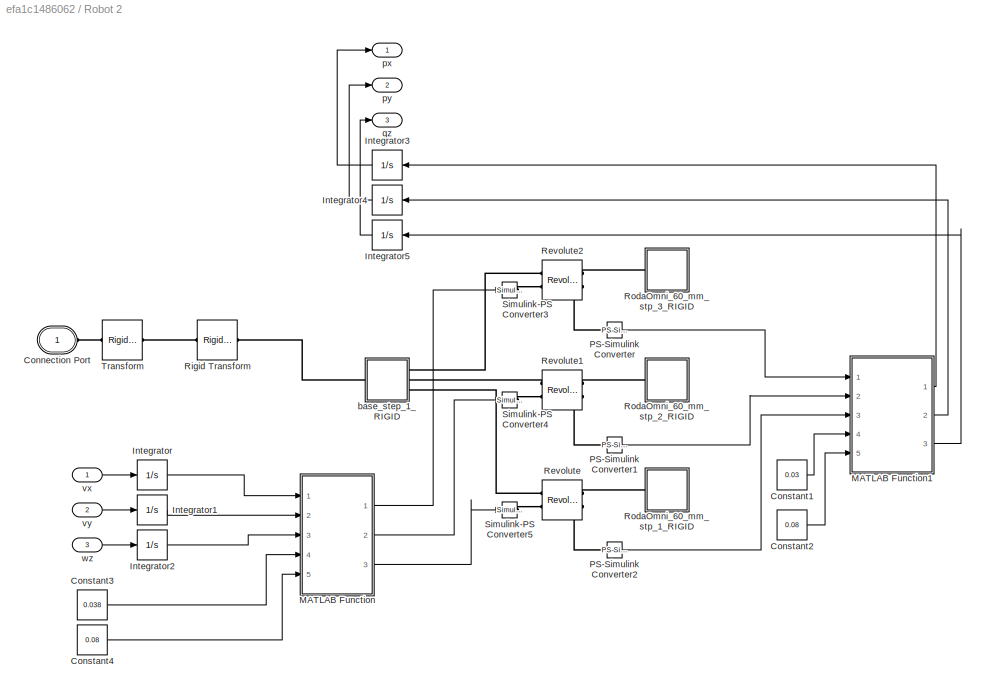
BLOCK [SubSystem] Robot 2
  Ports = [3, 3, 0, 0, 0, 1]
  RequestExecContextInheritance = off
BLOCK [PMIOPort] Robot 2/Connection Port
  Side = Left
  Tag = PMCPort
BLOCK [Constant] Robot 2/Constant1
  Value = 0.03
BLOCK [Constant] Robot 2/Constant2
  Value = 0.08
BLOCK [Constant] Robot 2/Constant3
  Value = 0.038
BLOCK [Constant] Robot 2/Constant4
  Value = 0.08
BLOCK [Integrator] Robot 2/Integrator
  Ports = [1, 1]
BLOCK [Integrator] Robot 2/Integrator1
  Ports = [1, 1]
BLOCK [Integrator] Robot 2/Integrator2
  Ports = [1, 1]
BLOCK [Integrator] Robot 2/Integrator3
  Ports = [1, 1]
BLOCK [Integrator] Robot 2/Integrator4
  Ports = [1, 1]
BLOCK [Integrator] Robot 2/Integrator5
  Ports = [1, 1]
BLOCK [SubSystem] Robot 2/MATLAB Function
  ErrorFcn = Stateflow.Translate.translate
  PermitHierarchicalResolution = ExplicitOnly
  Ports = [5, 3]
  RequestExecContextInheritance = off
  SFBlockType = MATLAB Function
  TreatAsAtomicUnit = on
BLOCK [Demux] Robot 2/MATLAB Function/ Demux 
  Outputs = 1
  Ports = [1, 1]
BLOCK [S-Function] Robot 2/MATLAB Function/ SFunction 
  EnableBusSupport = on
  FunctionName = sf_sfun
  PortCounts = [5 4]
  Ports = [5, 4]
  SFcnIsStateOwnerBlock = off
  SFunctionDeploymentMode = off
  Tag = Stateflow S-Function 1
BLOCK [Terminator] Robot 2/MATLAB Function/ Terminator 
BLOCK [Inport] Robot 2/MATLAB Function/d
  Port = 5
BLOCK [Inport] Robot 2/MATLAB Function/r
  Port = 4
BLOCK [Outport] Robot 2/MATLAB Function/u1
BLOCK [Outport] Robot 2/MATLAB Function/u2
  Port = 2
BLOCK [Outport] Robot 2/MATLAB Function/u3
  Port = 3
BLOCK [Inport] Robot 2/MATLAB Function/vx
BLOCK [Inport] Robot 2/MATLAB Function/vy
  Port = 2
BLOCK [Inport] Robot 2/MATLAB Function/wz
  Port = 3
BLOCK [SubSystem] Robot 2/MATLAB Function1
  ErrorFcn = Stateflow.Translate.translate
  PermitHierarchicalResolution = ExplicitOnly
  Ports = [5, 3]
  RequestExecContextInheritance = off
  SFBlockType = MATLAB Function
  TreatAsAtomicUnit = on
BLOCK [Demux] Robot 2/MATLAB Function1/ Demux 
  Outputs = 1
  Ports = [1, 1]
BLOCK [S-Function] Robot 2/MATLAB Function1/ SFunction 
  EnableBusSupport = on
  FunctionName = sf_sfun
  PortCounts = [5 4]
  Ports = [5, 4]
  SFcnIsStateOwnerBlock = off
  SFunctionDeploymentMode = off
  Tag = Stateflow S-Function 3
BLOCK [Terminator] Robot 2/MATLAB Function1/ Terminator 
BLOCK [Inport] Robot 2/MATLAB Function1/d
  Port = 5
BLOCK [Inport] Robot 2/MATLAB Function1/r
  Port = 4
BLOCK [Inport] Robot 2/MATLAB Function1/v1
BLOCK [Inport] Robot 2/MATLAB Function1/v2
  Port = 2
BLOCK [Inport] Robot 2/MATLAB Function1/v3
  Port = 3
BLOCK [Outport] Robot 2/MATLAB Function1/vx
BLOCK [Outport] Robot 2/MATLAB Function1/vy
  Port = 2
BLOCK [Outport] Robot 2/MATLAB Function1/wz
  Port = 3
BLOCK [Reference] Robot 2/PS-Simulink Converter  REF=nesl_utility/PS-Simulink
Converter
  Ports = [0, 1, 0, 0, 0, 1]
  SourceBlock = nesl_utility/PS-Simulink\nConverter
  SourceProductBaseCode = SS
  SourceType = PS-Simulink\nConverter
BLOCK [Reference] Robot 2/PS-Simulink Converter1  REF=nesl_utility/PS-Simulink
Converter
  Ports = [0, 1, 0, 0, 0, 1]
  SourceBlock = nesl_utility/PS-Simulink\nConverter
  SourceProductBaseCode = SS
  SourceType = PS-Simulink\nConverter
BLOCK [Reference] Robot 2/PS-Simulink Converter2  REF=nesl_utility/PS-Simulink
Converter
  Ports = [0, 1, 0, 0, 0, 1]
  SourceBlock = nesl_utility/PS-Simulink\nConverter
  SourceProductBaseCode = SS
  SourceType = PS-Simulink\nConverter
BLOCK [Reference] Robot 2/Revolute  REF=sm_lib/Joints/Revolute Joint
  Ports = [0, 0, 0, 0, 0, 2, 2]
  SourceBlock = sm_lib/Joints/Revolute Joint
  SourceProductBaseCode = MS
  SourceType = Revolute Joint
BLOCK [Reference] Robot 2/Revolute1  REF=sm_lib/Joints/Revolute Joint
  Ports = [0, 0, 0, 0, 0, 2, 2]
  SourceBlock = sm_lib/Joints/Revolute Joint
  SourceProductBaseCode = MS
  SourceType = Revolute Joint
BLOCK [Reference] Robot 2/Revolute2  REF=sm_lib/Joints/Revolute Joint
  Ports = [0, 0, 0, 0, 0, 2, 2]
  SourceBlock = sm_lib/Joints/Revolute Joint
  SourceProductBaseCode = MS
  SourceType = Revolute Joint
BLOCK [Reference] Robot 2/Rigid Transform  REF=sm_lib/Frames and
Transforms/Rigid
Transform
  Ports = [0, 0, 0, 0, 0, 1, 1]
  SourceBlock = sm_lib/Frames and\nTransforms/Rigid\nTransform
  SourceProductBaseCode = MS
  SourceType = Rigid\nTransform
BLOCK [SubSystem] Robot 2/RodaOmni_60_mm_stp_1_RIGID
  Ports = [0, 0, 0, 0, 0, 1]
  RequestExecContextInheritance = off
BLOCK [SubSystem] Robot 2/RodaOmni_60_mm_stp_1_RIGID/Dasar_1_stp_1_RIGID
  Ports = [0, 0, 0, 0, 0, 1]
  RequestExecContextInheritance = off
BLOCK [PMIOPort] Robot 2/RodaOmni_60_mm_stp_1_RIGID/Dasar_1_stp_1_RIGID/F
  Side = Left
BLOCK [Reference] Robot 2/RodaOmni_60_mm_stp_1_RIGID/Dasar_1_stp_1_RIGID/ReferenceFrame  REF=sm_lib/Frames and
Transforms/Reference
Frame
  Ports = [0, 0, 0, 0, 0, 0, 1]
  SourceBlock = sm_lib/Frames and\nTransforms/Reference\nFrame
  SourceProductBaseCode = MS
  SourceType = Reference\nFrame
BLOCK [Reference] Robot 2/RodaOmni_60_mm_stp_1_RIGID/Dasar_1_stp_1_RIGID/Solid  REF=sm_lib/Body Elements/File Solid
  Ports = [0, 0, 0, 0, 0, 0, 1]
  SourceBlock = sm_lib/Body Elements/File Solid
  SourceProductBaseCode = MS
  SourceType = File Solid
BLOCK [SubSystem] Robot 2/RodaOmni_60_mm_stp_1_RIGID/Dasar_stp_1_RIGID
  Ports = [0, 0, 0, 0, 0, 1]
  RequestExecContextInheritance = off
BLOCK [PMIOPort] Robot 2/RodaOmni_60_mm_stp_1_RIGID/Dasar_stp_1_RIGID/F
  Side = Left
BLOCK [Reference] Robot 2/RodaOmni_60_mm_stp_1_RIGID/Dasar_stp_1_RIGID/ReferenceFrame  REF=sm_lib/Frames and
Transforms/Reference
Frame
  Ports = [0, 0, 0, 0, 0, 0, 1]
  SourceBlock = sm_lib/Frames and\nTransforms/Reference\nFrame
  SourceProductBaseCode = MS
  SourceType = Reference\nFrame
BLOCK [Reference] Robot 2/RodaOmni_60_mm_stp_1_RIGID/Dasar_stp_1_RIGID/Solid  REF=sm_lib/Body Elements/File Solid
  Ports = [0, 0, 0, 0, 0, 0, 1]
  SourceBlock = sm_lib/Body Elements/File Solid
  SourceProductBaseCode = MS
  SourceType = File Solid
BLOCK [PMIOPort] Robot 2/RodaOmni_60_mm_stp_1_RIGID/F
  Side = Left
BLOCK [Reference] Robot 2/RodaOmni_60_mm_stp_1_RIGID/ReferenceFrame  REF=sm_lib/Frames and
Transforms/Reference
Frame
  Ports = [0, 0, 0, 0, 0, 0, 1]
  SourceBlock = sm_lib/Frames and\nTransforms/Reference\nFrame
  SourceProductBaseCode = MS
  SourceType = Reference\nFrame
BLOCK [SubSystem] Robot 2/RodaOmni_60_mm_stp_1_RIGID/Roller_stp_10_RIGID
  Ports = [0, 0, 0, 0, 0, 1]
  RequestExecContextInheritance = off
BLOCK [PMIOPort] Robot 2/RodaOmni_60_mm_stp_1_RIGID/Roller_stp_10_RIGID/F
  Side = Left
BLOCK [Reference] Robot 2/RodaOmni_60_mm_stp_1_RIGID/Roller_stp_10_RIGID/ReferenceFrame  REF=sm_lib/Frames and
Transforms/Reference
Frame
  Ports = [0, 0, 0, 0, 0, 0, 1]
  SourceBlock = sm_lib/Frames and\nTransforms/Reference\nFrame
  SourceProductBaseCode = MS
  SourceType = Reference\nFrame
BLOCK [Reference] Robot 2/RodaOmni_60_mm_stp_1_RIGID/Roller_stp_10_RIGID/Solid  REF=sm_lib/Body Elements/File Solid
  Ports = [0, 0, 0, 0, 0, 0, 1]
  SourceBlock = sm_lib/Body Elements/File Solid
  SourceProductBaseCode = MS
  SourceType = File Solid
BLOCK [SubSystem] Robot 2/RodaOmni_60_mm_stp_1_RIGID/Roller_stp_1_RIGID
  Ports = [0, 0, 0, 0, 0, 1]
  RequestExecContextInheritance = off
BLOCK [PMIOPort] Robot 2/RodaOmni_60_mm_stp_1_RIGID/Roller_stp_1_RIGID/F
  Side = Left
BLOCK [Reference] Robot 2/RodaOmni_60_mm_stp_1_RIGID/Roller_stp_1_RIGID/ReferenceFrame  REF=sm_lib/Frames and
Transforms/Reference
Frame
  Ports = [0, 0, 0, 0, 0, 0, 1]
  SourceBlock = sm_lib/Frames and\nTransforms/Reference\nFrame
  SourceProductBaseCode = MS
  SourceType = Reference\nFrame
BLOCK [Reference] Robot 2/RodaOmni_60_mm_stp_1_RIGID/Roller_stp_1_RIGID/Solid  REF=sm_lib/Body Elements/File Solid
  Ports = [0, 0, 0, 0, 0, 0, 1]
  SourceBlock = sm_lib/Body Elements/File Solid
  SourceProductBaseCode = MS
  SourceType = File Solid
BLOCK [SubSystem] Robot 2/RodaOmni_60_mm_stp_1_RIGID/Roller_stp_2_RIGID
  Ports = [0, 0, 0, 0, 0, 1]
  RequestExecContextInheritance = off
BLOCK [PMIOPort] Robot 2/RodaOmni_60_mm_stp_1_RIGID/Roller_stp_2_RIGID/F
  Side = Left
BLOCK [Reference] Robot 2/RodaOmni_60_mm_stp_1_RIGID/Roller_stp_2_RIGID/ReferenceFrame  REF=sm_lib/Frames and
Transforms/Reference
Frame
  Ports = [0, 0, 0, 0, 0, 0, 1]
  SourceBlock = sm_lib/Frames and\nTransforms/Reference\nFrame
  SourceProductBaseCode = MS
  SourceType = Reference\nFrame
BLOCK [Reference] Robot 2/RodaOmni_60_mm_stp_1_RIGID/Roller_stp_2_RIGID/Solid  REF=sm_lib/Body Elements/File Solid
  Ports = [0, 0, 0, 0, 0, 0, 1]
  SourceBlock = sm_lib/Body Elements/File Solid
  SourceProductBaseCode = MS
  SourceType = File Solid
BLOCK [SubSystem] Robot 2/RodaOmni_60_mm_stp_1_RIGID/Roller_stp_3_RIGID
  Ports = [0, 0, 0, 0, 0, 1]
  RequestExecContextInheritance = off
BLOCK [PMIOPort] Robot 2/RodaOmni_60_mm_stp_1_RIGID/Roller_stp_3_RIGID/F
  Side = Left
BLOCK [Reference] Robot 2/RodaOmni_60_mm_stp_1_RIGID/Roller_stp_3_RIGID/ReferenceFrame  REF=sm_lib/Frames and
Transforms/Reference
Frame
  Ports = [0, 0, 0, 0, 0, 0, 1]
  SourceBlock = sm_lib/Frames and\nTransforms/Reference\nFrame
  SourceProductBaseCode = MS
  SourceType = Reference\nFrame
BLOCK [Reference] Robot 2/RodaOmni_60_mm_stp_1_RIGID/Roller_stp_3_RIGID/Solid  REF=sm_lib/Body Elements/File Solid
  Ports = [0, 0, 0, 0, 0, 0, 1]
  SourceBlock = sm_lib/Body Elements/File Solid
  SourceProductBaseCode = MS
  SourceType = File Solid
BLOCK [SubSystem] Robot 2/RodaOmni_60_mm_stp_1_RIGID/Roller_stp_4_RIGID
  Ports = [0, 0, 0, 0, 0, 1]
  RequestExecContextInheritance = off
BLOCK [PMIOPort] Robot 2/RodaOmni_60_mm_stp_1_RIGID/Roller_stp_4_RIGID/F
  Side = Left
BLOCK [Reference] Robot 2/RodaOmni_60_mm_stp_1_RIGID/Roller_stp_4_RIGID/ReferenceFrame  REF=sm_lib/Frames and
Transforms/Reference
Frame
  Ports = [0, 0, 0, 0, 0, 0, 1]
  SourceBlock = sm_lib/Frames and\nTransforms/Reference\nFrame
  SourceProductBaseCode = MS
  SourceType = Reference\nFrame
BLOCK [Reference] Robot 2/RodaOmni_60_mm_stp_1_RIGID/Roller_stp_4_RIGID/Solid  REF=sm_lib/Body Elements/File Solid
  Ports = [0, 0, 0, 0, 0, 0, 1]
  SourceBlock = sm_lib/Body Elements/File Solid
  SourceProductBaseCode = MS
  SourceType = File Solid
BLOCK [SubSystem] Robot 2/RodaOmni_60_mm_stp_1_RIGID/Roller_stp_5_RIGID
  Ports = [0, 0, 0, 0, 0, 1]
  RequestExecContextInheritance = off
BLOCK [PMIOPort] Robot 2/RodaOmni_60_mm_stp_1_RIGID/Roller_stp_5_RIGID/F
  Side = Left
BLOCK [Reference] Robot 2/RodaOmni_60_mm_stp_1_RIGID/Roller_stp_5_RIGID/ReferenceFrame  REF=sm_lib/Frames and
Transforms/Reference
Frame
  Ports = [0, 0, 0, 0, 0, 0, 1]
  SourceBlock = sm_lib/Frames and\nTransforms/Reference\nFrame
  SourceProductBaseCode = MS
  SourceType = Reference\nFrame
BLOCK [Reference] Robot 2/RodaOmni_60_mm_stp_1_RIGID/Roller_stp_5_RIGID/Solid  REF=sm_lib/Body Elements/File Solid
  Ports = [0, 0, 0, 0, 0, 0, 1]
  SourceBlock = sm_lib/Body Elements/File Solid
  SourceProductBaseCode = MS
  SourceType = File Solid
BLOCK [SubSystem] Robot 2/RodaOmni_60_mm_stp_1_RIGID/Roller_stp_6_RIGID
  Ports = [0, 0, 0, 0, 0, 1]
  RequestExecContextInheritance = off
BLOCK [PMIOPort] Robot 2/RodaOmni_60_mm_stp_1_RIGID/Roller_stp_6_RIGID/F
  Side = Left
BLOCK [Reference] Robot 2/RodaOmni_60_mm_stp_1_RIGID/Roller_stp_6_RIGID/ReferenceFrame  REF=sm_lib/Frames and
Transforms/Reference
Frame
  Ports = [0, 0, 0, 0, 0, 0, 1]
  SourceBlock = sm_lib/Frames and\nTransforms/Reference\nFrame
  SourceProductBaseCode = MS
  SourceType = Reference\nFrame
BLOCK [Reference] Robot 2/RodaOmni_60_mm_stp_1_RIGID/Roller_stp_6_RIGID/Solid  REF=sm_lib/Body Elements/File Solid
  Ports = [0, 0, 0, 0, 0, 0, 1]
  SourceBlock = sm_lib/Body Elements/File Solid
  SourceProductBaseCode = MS
  SourceType = File Solid
BLOCK [SubSystem] Robot 2/RodaOmni_60_mm_stp_1_RIGID/Roller_stp_7_RIGID
  Ports = [0, 0, 0, 0, 0, 1]
  RequestExecContextInheritance = off
BLOCK [PMIOPort] Robot 2/RodaOmni_60_mm_stp_1_RIGID/Roller_stp_7_RIGID/F
  Side = Left
BLOCK [Reference] Robot 2/RodaOmni_60_mm_stp_1_RIGID/Roller_stp_7_RIGID/ReferenceFrame  REF=sm_lib/Frames and
Transforms/Reference
Frame
  Ports = [0, 0, 0, 0, 0, 0, 1]
  SourceBlock = sm_lib/Frames and\nTransforms/Reference\nFrame
  SourceProductBaseCode = MS
  SourceType = Reference\nFrame
BLOCK [Reference] Robot 2/RodaOmni_60_mm_stp_1_RIGID/Roller_stp_7_RIGID/Solid  REF=sm_lib/Body Elements/File Solid
  Ports = [0, 0, 0, 0, 0, 0, 1]
  SourceBlock = sm_lib/Body Elements/File Solid
  SourceProductBaseCode = MS
  SourceType = File Solid
BLOCK [SubSystem] Robot 2/RodaOmni_60_mm_stp_1_RIGID/Roller_stp_8_RIGID
  Ports = [0, 0, 0, 0, 0, 1]
  RequestExecContextInheritance = off
BLOCK [PMIOPort] Robot 2/RodaOmni_60_mm_stp_1_RIGID/Roller_stp_8_RIGID/F
  Side = Left
BLOCK [Reference] Robot 2/RodaOmni_60_mm_stp_1_RIGID/Roller_stp_8_RIGID/ReferenceFrame  REF=sm_lib/Frames and
Transforms/Reference
Frame
  Ports = [0, 0, 0, 0, 0, 0, 1]
  SourceBlock = sm_lib/Frames and\nTransforms/Reference\nFrame
  SourceProductBaseCode = MS
  SourceType = Reference\nFrame
BLOCK [Reference] Robot 2/RodaOmni_60_mm_stp_1_RIGID/Roller_stp_8_RIGID/Solid  REF=sm_lib/Body Elements/File Solid
  Ports = [0, 0, 0, 0, 0, 0, 1]
  SourceBlock = sm_lib/Body Elements/File Solid
  SourceProductBaseCode = MS
  SourceType = File Solid
BLOCK [SubSystem] Robot 2/RodaOmni_60_mm_stp_1_RIGID/Roller_stp_9_RIGID
  Ports = [0, 0, 0, 0, 0, 1]
  RequestExecContextInheritance = off
BLOCK [PMIOPort] Robot 2/RodaOmni_60_mm_stp_1_RIGID/Roller_stp_9_RIGID/F
  Side = Left
BLOCK [Reference] Robot 2/RodaOmni_60_mm_stp_1_RIGID/Roller_stp_9_RIGID/ReferenceFrame  REF=sm_lib/Frames and
Transforms/Reference
Frame
  Ports = [0, 0, 0, 0, 0, 0, 1]
  SourceBlock = sm_lib/Frames and\nTransforms/Reference\nFrame
  SourceProductBaseCode = MS
  SourceType = Reference\nFrame
BLOCK [Reference] Robot 2/RodaOmni_60_mm_stp_1_RIGID/Roller_stp_9_RIGID/Solid  REF=sm_lib/Body Elements/File Solid
  Ports = [0, 0, 0, 0, 0, 0, 1]
  SourceBlock = sm_lib/Body Elements/File Solid
  SourceProductBaseCode = MS
  SourceType = File Solid
BLOCK [Reference] Robot 2/RodaOmni_60_mm_stp_1_RIGID/Transform  REF=sm_lib/Frames and
Transforms/Rigid
Transform
  Ports = [0, 0, 0, 0, 0, 1, 1]
  SourceBlock = sm_lib/Frames and\nTransforms/Rigid\nTransform
  SourceProductBaseCode = MS
  SourceType = Rigid\nTransform
BLOCK [Reference] Robot 2/RodaOmni_60_mm_stp_1_RIGID/Transform1  REF=sm_lib/Frames and
Transforms/Rigid
Transform
  Ports = [0, 0, 0, 0, 0, 1, 1]
  SourceBlock = sm_lib/Frames and\nTransforms/Rigid\nTransform
  SourceProductBaseCode = MS
  SourceType = Rigid\nTransform
BLOCK [Reference] Robot 2/RodaOmni_60_mm_stp_1_RIGID/Transform10  REF=sm_lib/Frames and
Transforms/Rigid
Transform
  Ports = [0, 0, 0, 0, 0, 1, 1]
  SourceBlock = sm_lib/Frames and\nTransforms/Rigid\nTransform
  SourceProductBaseCode = MS
  SourceType = Rigid\nTransform
BLOCK [Reference] Robot 2/RodaOmni_60_mm_stp_1_RIGID/Transform11  REF=sm_lib/Frames and
Transforms/Rigid
Transform
  Ports = [0, 0, 0, 0, 0, 1, 1]
  SourceBlock = sm_lib/Frames and\nTransforms/Rigid\nTransform
  SourceProductBaseCode = MS
  SourceType = Rigid\nTransform
BLOCK [Reference] Robot 2/RodaOmni_60_mm_stp_1_RIGID/Transform12  REF=sm_lib/Frames and
Transforms/Rigid
Transform
  Ports = [0, 0, 0, 0, 0, 1, 1]
  SourceBlock = sm_lib/Frames and\nTransforms/Rigid\nTransform
  SourceProductBaseCode = MS
  SourceType = Rigid\nTransform
BLOCK [Reference] Robot 2/RodaOmni_60_mm_stp_1_RIGID/Transform2  REF=sm_lib/Frames and
Transforms/Rigid
Transform
  Ports = [0, 0, 0, 0, 0, 1, 1]
  SourceBlock = sm_lib/Frames and\nTransforms/Rigid\nTransform
  SourceProductBaseCode = MS
  SourceType = Rigid\nTransform
BLOCK [Reference] Robot 2/RodaOmni_60_mm_stp_1_RIGID/Transform3  REF=sm_lib/Frames and
Transforms/Rigid
Transform
  Ports = [0, 0, 0, 0, 0, 1, 1]
  SourceBlock = sm_lib/Frames and\nTransforms/Rigid\nTransform
  SourceProductBaseCode = MS
  SourceType = Rigid\nTransform
BLOCK [Reference] Robot 2/RodaOmni_60_mm_stp_1_RIGID/Transform4  REF=sm_lib/Frames and
Transforms/Rigid
Transform
  Ports = [0, 0, 0, 0, 0, 1, 1]
  SourceBlock = sm_lib/Frames and\nTransforms/Rigid\nTransform
  SourceProductBaseCode = MS
  SourceType = Rigid\nTransform
BLOCK [Reference] Robot 2/RodaOmni_60_mm_stp_1_RIGID/Transform5  REF=sm_lib/Frames and
Transforms/Rigid
Transform
  Ports = [0, 0, 0, 0, 0, 1, 1]
  SourceBlock = sm_lib/Frames and\nTransforms/Rigid\nTransform
  SourceProductBaseCode = MS
  SourceType = Rigid\nTransform
BLOCK [Reference] Robot 2/RodaOmni_60_mm_stp_1_RIGID/Transform6  REF=sm_lib/Frames and
Transforms/Rigid
Transform
  Ports = [0, 0, 0, 0, 0, 1, 1]
  SourceBlock = sm_lib/Frames and\nTransforms/Rigid\nTransform
  SourceProductBaseCode = MS
  SourceType = Rigid\nTransform
BLOCK [Reference] Robot 2/RodaOmni_60_mm_stp_1_RIGID/Transform7  REF=sm_lib/Frames and
Transforms/Rigid
Transform
  Ports = [0, 0, 0, 0, 0, 1, 1]
  SourceBlock = sm_lib/Frames and\nTransforms/Rigid\nTransform
  SourceProductBaseCode = MS
  SourceType = Rigid\nTransform
BLOCK [Reference] Robot 2/RodaOmni_60_mm_stp_1_RIGID/Transform8  REF=sm_lib/Frames and
Transforms/Rigid
Transform
  Ports = [0, 0, 0, 0, 0, 1, 1]
  SourceBlock = sm_lib/Frames and\nTransforms/Rigid\nTransform
  SourceProductBaseCode = MS
  SourceType = Rigid\nTransform
BLOCK [Reference] Robot 2/RodaOmni_60_mm_stp_1_RIGID/Transform9  REF=sm_lib/Frames and
Transforms/Rigid
Transform
  Ports = [0, 0, 0, 0, 0, 1, 1]
  SourceBlock = sm_lib/Frames and\nTransforms/Rigid\nTransform
  SourceProductBaseCode = MS
  SourceType = Rigid\nTransform
BLOCK [SubSystem] Robot 2/RodaOmni_60_mm_stp_2_RIGID
  Ports = [0, 0, 0, 0, 0, 1]
  RequestExecContextInheritance = off
BLOCK [SubSystem] Robot 2/RodaOmni_60_mm_stp_2_RIGID/Dasar_1_stp_1_RIGID
  Ports = [0, 0, 0, 0, 0, 1]
  RequestExecContextInheritance = off
BLOCK [PMIOPort] Robot 2/RodaOmni_60_mm_stp_2_RIGID/Dasar_1_stp_1_RIGID/F
  Side = Left
BLOCK [Reference] Robot 2/RodaOmni_60_mm_stp_2_RIGID/Dasar_1_stp_1_RIGID/ReferenceFrame  REF=sm_lib/Frames and
Transforms/Reference
Frame
  Ports = [0, 0, 0, 0, 0, 0, 1]
  SourceBlock = sm_lib/Frames and\nTransforms/Reference\nFrame
  SourceProductBaseCode = MS
  SourceType = Reference\nFrame
BLOCK [Reference] Robot 2/RodaOmni_60_mm_stp_2_RIGID/Dasar_1_stp_1_RIGID/Solid  REF=sm_lib/Body Elements/File Solid
  Ports = [0, 0, 0, 0, 0, 0, 1]
  SourceBlock = sm_lib/Body Elements/File Solid
  SourceProductBaseCode = MS
  SourceType = File Solid
BLOCK [SubSystem] Robot 2/RodaOmni_60_mm_stp_2_RIGID/Dasar_stp_1_RIGID
  Ports = [0, 0, 0, 0, 0, 1]
  RequestExecContextInheritance = off
BLOCK [PMIOPort] Robot 2/RodaOmni_60_mm_stp_2_RIGID/Dasar_stp_1_RIGID/F
  Side = Left
BLOCK [Reference] Robot 2/RodaOmni_60_mm_stp_2_RIGID/Dasar_stp_1_RIGID/ReferenceFrame  REF=sm_lib/Frames and
Transforms/Reference
Frame
  Ports = [0, 0, 0, 0, 0, 0, 1]
  SourceBlock = sm_lib/Frames and\nTransforms/Reference\nFrame
  SourceProductBaseCode = MS
  SourceType = Reference\nFrame
BLOCK [Reference] Robot 2/RodaOmni_60_mm_stp_2_RIGID/Dasar_stp_1_RIGID/Solid  REF=sm_lib/Body Elements/File Solid
  Ports = [0, 0, 0, 0, 0, 0, 1]
  SourceBlock = sm_lib/Body Elements/File Solid
  SourceProductBaseCode = MS
  SourceType = File Solid
BLOCK [PMIOPort] Robot 2/RodaOmni_60_mm_stp_2_RIGID/F
  Side = Left
BLOCK [Reference] Robot 2/RodaOmni_60_mm_stp_2_RIGID/ReferenceFrame  REF=sm_lib/Frames and
Transforms/Reference
Frame
  Ports = [0, 0, 0, 0, 0, 0, 1]
  SourceBlock = sm_lib/Frames and\nTransforms/Reference\nFrame
  SourceProductBaseCode = MS
  SourceType = Reference\nFrame
BLOCK [SubSystem] Robot 2/RodaOmni_60_mm_stp_2_RIGID/Roller_stp_10_RIGID
  Ports = [0, 0, 0, 0, 0, 1]
  RequestExecContextInheritance = off
BLOCK [PMIOPort] Robot 2/RodaOmni_60_mm_stp_2_RIGID/Roller_stp_10_RIGID/F
  Side = Left
BLOCK [Reference] Robot 2/RodaOmni_60_mm_stp_2_RIGID/Roller_stp_10_RIGID/ReferenceFrame  REF=sm_lib/Frames and
Transforms/Reference
Frame
  Ports = [0, 0, 0, 0, 0, 0, 1]
  SourceBlock = sm_lib/Frames and\nTransforms/Reference\nFrame
  SourceProductBaseCode = MS
  SourceType = Reference\nFrame
BLOCK [Reference] Robot 2/RodaOmni_60_mm_stp_2_RIGID/Roller_stp_10_RIGID/Solid  REF=sm_lib/Body Elements/File Solid
  Ports = [0, 0, 0, 0, 0, 0, 1]
  SourceBlock = sm_lib/Body Elements/File Solid
  SourceProductBaseCode = MS
  SourceType = File Solid
BLOCK [SubSystem] Robot 2/RodaOmni_60_mm_stp_2_RIGID/Roller_stp_1_RIGID
  Ports = [0, 0, 0, 0, 0, 1]
  RequestExecContextInheritance = off
BLOCK [PMIOPort] Robot 2/RodaOmni_60_mm_stp_2_RIGID/Roller_stp_1_RIGID/F
  Side = Left
BLOCK [Reference] Robot 2/RodaOmni_60_mm_stp_2_RIGID/Roller_stp_1_RIGID/ReferenceFrame  REF=sm_lib/Frames and
Transforms/Reference
Frame
  Ports = [0, 0, 0, 0, 0, 0, 1]
  SourceBlock = sm_lib/Frames and\nTransforms/Reference\nFrame
  SourceProductBaseCode = MS
  SourceType = Reference\nFrame
BLOCK [Reference] Robot 2/RodaOmni_60_mm_stp_2_RIGID/Roller_stp_1_RIGID/Solid  REF=sm_lib/Body Elements/File Solid
  Ports = [0, 0, 0, 0, 0, 0, 1]
  SourceBlock = sm_lib/Body Elements/File Solid
  SourceProductBaseCode = MS
  SourceType = File Solid
BLOCK [SubSystem] Robot 2/RodaOmni_60_mm_stp_2_RIGID/Roller_stp_2_RIGID
  Ports = [0, 0, 0, 0, 0, 1]
  RequestExecContextInheritance = off
BLOCK [PMIOPort] Robot 2/RodaOmni_60_mm_stp_2_RIGID/Roller_stp_2_RIGID/F
  Side = Left
BLOCK [Reference] Robot 2/RodaOmni_60_mm_stp_2_RIGID/Roller_stp_2_RIGID/ReferenceFrame  REF=sm_lib/Frames and
Transforms/Reference
Frame
  Ports = [0, 0, 0, 0, 0, 0, 1]
  SourceBlock = sm_lib/Frames and\nTransforms/Reference\nFrame
  SourceProductBaseCode = MS
  SourceType = Reference\nFrame
BLOCK [Reference] Robot 2/RodaOmni_60_mm_stp_2_RIGID/Roller_stp_2_RIGID/Solid  REF=sm_lib/Body Elements/File Solid
  Ports = [0, 0, 0, 0, 0, 0, 1]
  SourceBlock = sm_lib/Body Elements/File Solid
  SourceProductBaseCode = MS
  SourceType = File Solid
BLOCK [SubSystem] Robot 2/RodaOmni_60_mm_stp_2_RIGID/Roller_stp_3_RIGID
  Ports = [0, 0, 0, 0, 0, 1]
  RequestExecContextInheritance = off
BLOCK [PMIOPort] Robot 2/RodaOmni_60_mm_stp_2_RIGID/Roller_stp_3_RIGID/F
  Side = Left
BLOCK [Reference] Robot 2/RodaOmni_60_mm_stp_2_RIGID/Roller_stp_3_RIGID/ReferenceFrame  REF=sm_lib/Frames and
Transforms/Reference
Frame
  Ports = [0, 0, 0, 0, 0, 0, 1]
  SourceBlock = sm_lib/Frames and\nTransforms/Reference\nFrame
  SourceProductBaseCode = MS
  SourceType = Reference\nFrame
BLOCK [Reference] Robot 2/RodaOmni_60_mm_stp_2_RIGID/Roller_stp_3_RIGID/Solid  REF=sm_lib/Body Elements/File Solid
  Ports = [0, 0, 0, 0, 0, 0, 1]
  SourceBlock = sm_lib/Body Elements/File Solid
  SourceProductBaseCode = MS
  SourceType = File Solid
BLOCK [SubSystem] Robot 2/RodaOmni_60_mm_stp_2_RIGID/Roller_stp_4_RIGID
  Ports = [0, 0, 0, 0, 0, 1]
  RequestExecContextInheritance = off
BLOCK [PMIOPort] Robot 2/RodaOmni_60_mm_stp_2_RIGID/Roller_stp_4_RIGID/F
  Side = Left
BLOCK [Reference] Robot 2/RodaOmni_60_mm_stp_2_RIGID/Roller_stp_4_RIGID/ReferenceFrame  REF=sm_lib/Frames and
Transforms/Reference
Frame
  Ports = [0, 0, 0, 0, 0, 0, 1]
  SourceBlock = sm_lib/Frames and\nTransforms/Reference\nFrame
  SourceProductBaseCode = MS
  SourceType = Reference\nFrame
BLOCK [Reference] Robot 2/RodaOmni_60_mm_stp_2_RIGID/Roller_stp_4_RIGID/Solid  REF=sm_lib/Body Elements/File Solid
  Ports = [0, 0, 0, 0, 0, 0, 1]
  SourceBlock = sm_lib/Body Elements/File Solid
  SourceProductBaseCode = MS
  SourceType = File Solid
BLOCK [SubSystem] Robot 2/RodaOmni_60_mm_stp_2_RIGID/Roller_stp_5_RIGID
  Ports = [0, 0, 0, 0, 0, 1]
  RequestExecContextInheritance = off
BLOCK [PMIOPort] Robot 2/RodaOmni_60_mm_stp_2_RIGID/Roller_stp_5_RIGID/F
  Side = Left
BLOCK [Reference] Robot 2/RodaOmni_60_mm_stp_2_RIGID/Roller_stp_5_RIGID/ReferenceFrame  REF=sm_lib/Frames and
Transforms/Reference
Frame
  Ports = [0, 0, 0, 0, 0, 0, 1]
  SourceBlock = sm_lib/Frames and\nTransforms/Reference\nFrame
  SourceProductBaseCode = MS
  SourceType = Reference\nFrame
BLOCK [Reference] Robot 2/RodaOmni_60_mm_stp_2_RIGID/Roller_stp_5_RIGID/Solid  REF=sm_lib/Body Elements/File Solid
  Ports = [0, 0, 0, 0, 0, 0, 1]
  SourceBlock = sm_lib/Body Elements/File Solid
  SourceProductBaseCode = MS
  SourceType = File Solid
BLOCK [SubSystem] Robot 2/RodaOmni_60_mm_stp_2_RIGID/Roller_stp_6_RIGID
  Ports = [0, 0, 0, 0, 0, 1]
  RequestExecContextInheritance = off
BLOCK [PMIOPort] Robot 2/RodaOmni_60_mm_stp_2_RIGID/Roller_stp_6_RIGID/F
  Side = Left
BLOCK [Reference] Robot 2/RodaOmni_60_mm_stp_2_RIGID/Roller_stp_6_RIGID/ReferenceFrame  REF=sm_lib/Frames and
Transforms/Reference
Frame
  Ports = [0, 0, 0, 0, 0, 0, 1]
  SourceBlock = sm_lib/Frames and\nTransforms/Reference\nFrame
  SourceProductBaseCode = MS
  SourceType = Reference\nFrame
BLOCK [Reference] Robot 2/RodaOmni_60_mm_stp_2_RIGID/Roller_stp_6_RIGID/Solid  REF=sm_lib/Body Elements/File Solid
  Ports = [0, 0, 0, 0, 0, 0, 1]
  SourceBlock = sm_lib/Body Elements/File Solid
  SourceProductBaseCode = MS
  SourceType = File Solid
BLOCK [SubSystem] Robot 2/RodaOmni_60_mm_stp_2_RIGID/Roller_stp_7_RIGID
  Ports = [0, 0, 0, 0, 0, 1]
  RequestExecContextInheritance = off
BLOCK [PMIOPort] Robot 2/RodaOmni_60_mm_stp_2_RIGID/Roller_stp_7_RIGID/F
  Side = Left
BLOCK [Reference] Robot 2/RodaOmni_60_mm_stp_2_RIGID/Roller_stp_7_RIGID/ReferenceFrame  REF=sm_lib/Frames and
Transforms/Reference
Frame
  Ports = [0, 0, 0, 0, 0, 0, 1]
  SourceBlock = sm_lib/Frames and\nTransforms/Reference\nFrame
  SourceProductBaseCode = MS
  SourceType = Reference\nFrame
BLOCK [Reference] Robot 2/RodaOmni_60_mm_stp_2_RIGID/Roller_stp_7_RIGID/Solid  REF=sm_lib/Body Elements/File Solid
  Ports = [0, 0, 0, 0, 0, 0, 1]
  SourceBlock = sm_lib/Body Elements/File Solid
  SourceProductBaseCode = MS
  SourceType = File Solid
BLOCK [SubSystem] Robot 2/RodaOmni_60_mm_stp_2_RIGID/Roller_stp_8_RIGID
  Ports = [0, 0, 0, 0, 0, 1]
  RequestExecContextInheritance = off
BLOCK [PMIOPort] Robot 2/RodaOmni_60_mm_stp_2_RIGID/Roller_stp_8_RIGID/F
  Side = Left
BLOCK [Reference] Robot 2/RodaOmni_60_mm_stp_2_RIGID/Roller_stp_8_RIGID/ReferenceFrame  REF=sm_lib/Frames and
Transforms/Reference
Frame
  Ports = [0, 0, 0, 0, 0, 0, 1]
  SourceBlock = sm_lib/Frames and\nTransforms/Reference\nFrame
  SourceProductBaseCode = MS
  SourceType = Reference\nFrame
BLOCK [Reference] Robot 2/RodaOmni_60_mm_stp_2_RIGID/Roller_stp_8_RIGID/Solid  REF=sm_lib/Body Elements/File Solid
  Ports = [0, 0, 0, 0, 0, 0, 1]
  SourceBlock = sm_lib/Body Elements/File Solid
  SourceProductBaseCode = MS
  SourceType = File Solid
BLOCK [SubSystem] Robot 2/RodaOmni_60_mm_stp_2_RIGID/Roller_stp_9_RIGID
  Ports = [0, 0, 0, 0, 0, 1]
  RequestExecContextInheritance = off
BLOCK [PMIOPort] Robot 2/RodaOmni_60_mm_stp_2_RIGID/Roller_stp_9_RIGID/F
  Side = Left
BLOCK [Reference] Robot 2/RodaOmni_60_mm_stp_2_RIGID/Roller_stp_9_RIGID/ReferenceFrame  REF=sm_lib/Frames and
Transforms/Reference
Frame
  Ports = [0, 0, 0, 0, 0, 0, 1]
  SourceBlock = sm_lib/Frames and\nTransforms/Reference\nFrame
  SourceProductBaseCode = MS
  SourceType = Reference\nFrame
BLOCK [Reference] Robot 2/RodaOmni_60_mm_stp_2_RIGID/Roller_stp_9_RIGID/Solid  REF=sm_lib/Body Elements/File Solid
  Ports = [0, 0, 0, 0, 0, 0, 1]
  SourceBlock = sm_lib/Body Elements/File Solid
  SourceProductBaseCode = MS
  SourceType = File Solid
BLOCK [Reference] Robot 2/RodaOmni_60_mm_stp_2_RIGID/Transform  REF=sm_lib/Frames and
Transforms/Rigid
Transform
  Ports = [0, 0, 0, 0, 0, 1, 1]
  SourceBlock = sm_lib/Frames and\nTransforms/Rigid\nTransform
  SourceProductBaseCode = MS
  SourceType = Rigid\nTransform
BLOCK [Reference] Robot 2/RodaOmni_60_mm_stp_2_RIGID/Transform1  REF=sm_lib/Frames and
Transforms/Rigid
Transform
  Ports = [0, 0, 0, 0, 0, 1, 1]
  SourceBlock = sm_lib/Frames and\nTransforms/Rigid\nTransform
  SourceProductBaseCode = MS
  SourceType = Rigid\nTransform
BLOCK [Reference] Robot 2/RodaOmni_60_mm_stp_2_RIGID/Transform10  REF=sm_lib/Frames and
Transforms/Rigid
Transform
  Ports = [0, 0, 0, 0, 0, 1, 1]
  SourceBlock = sm_lib/Frames and\nTransforms/Rigid\nTransform
  SourceProductBaseCode = MS
  SourceType = Rigid\nTransform
BLOCK [Reference] Robot 2/RodaOmni_60_mm_stp_2_RIGID/Transform11  REF=sm_lib/Frames and
Transforms/Rigid
Transform
  Ports = [0, 0, 0, 0, 0, 1, 1]
  SourceBlock = sm_lib/Frames and\nTransforms/Rigid\nTransform
  SourceProductBaseCode = MS
  SourceType = Rigid\nTransform
BLOCK [Reference] Robot 2/RodaOmni_60_mm_stp_2_RIGID/Transform12  REF=sm_lib/Frames and
Transforms/Rigid
Transform
  Ports = [0, 0, 0, 0, 0, 1, 1]
  SourceBlock = sm_lib/Frames and\nTransforms/Rigid\nTransform
  SourceProductBaseCode = MS
  SourceType = Rigid\nTransform
BLOCK [Reference] Robot 2/RodaOmni_60_mm_stp_2_RIGID/Transform2  REF=sm_lib/Frames and
Transforms/Rigid
Transform
  Ports = [0, 0, 0, 0, 0, 1, 1]
  SourceBlock = sm_lib/Frames and\nTransforms/Rigid\nTransform
  SourceProductBaseCode = MS
  SourceType = Rigid\nTransform
BLOCK [Reference] Robot 2/RodaOmni_60_mm_stp_2_RIGID/Transform3  REF=sm_lib/Frames and
Transforms/Rigid
Transform
  Ports = [0, 0, 0, 0, 0, 1, 1]
  SourceBlock = sm_lib/Frames and\nTransforms/Rigid\nTransform
  SourceProductBaseCode = MS
  SourceType = Rigid\nTransform
BLOCK [Reference] Robot 2/RodaOmni_60_mm_stp_2_RIGID/Transform4  REF=sm_lib/Frames and
Transforms/Rigid
Transform
  Ports = [0, 0, 0, 0, 0, 1, 1]
  SourceBlock = sm_lib/Frames and\nTransforms/Rigid\nTransform
  SourceProductBaseCode = MS
  SourceType = Rigid\nTransform
BLOCK [Reference] Robot 2/RodaOmni_60_mm_stp_2_RIGID/Transform5  REF=sm_lib/Frames and
Transforms/Rigid
Transform
  Ports = [0, 0, 0, 0, 0, 1, 1]
  SourceBlock = sm_lib/Frames and\nTransforms/Rigid\nTransform
  SourceProductBaseCode = MS
  SourceType = Rigid\nTransform
BLOCK [Reference] Robot 2/RodaOmni_60_mm_stp_2_RIGID/Transform6  REF=sm_lib/Frames and
Transforms/Rigid
Transform
  Ports = [0, 0, 0, 0, 0, 1, 1]
  SourceBlock = sm_lib/Frames and\nTransforms/Rigid\nTransform
  SourceProductBaseCode = MS
  SourceType = Rigid\nTransform
BLOCK [Reference] Robot 2/RodaOmni_60_mm_stp_2_RIGID/Transform7  REF=sm_lib/Frames and
Transforms/Rigid
Transform
  Ports = [0, 0, 0, 0, 0, 1, 1]
  SourceBlock = sm_lib/Frames and\nTransforms/Rigid\nTransform
  SourceProductBaseCode = MS
  SourceType = Rigid\nTransform
BLOCK [Reference] Robot 2/RodaOmni_60_mm_stp_2_RIGID/Transform8  REF=sm_lib/Frames and
Transforms/Rigid
Transform
  Ports = [0, 0, 0, 0, 0, 1, 1]
  SourceBlock = sm_lib/Frames and\nTransforms/Rigid\nTransform
  SourceProductBaseCode = MS
  SourceType = Rigid\nTransform
BLOCK [Reference] Robot 2/RodaOmni_60_mm_stp_2_RIGID/Transform9  REF=sm_lib/Frames and
Transforms/Rigid
Transform
  Ports = [0, 0, 0, 0, 0, 1, 1]
  SourceBlock = sm_lib/Frames and\nTransforms/Rigid\nTransform
  SourceProductBaseCode = MS
  SourceType = Rigid\nTransform
BLOCK [SubSystem] Robot 2/RodaOmni_60_mm_stp_3_RIGID
  Ports = [0, 0, 0, 0, 0, 1]
  RequestExecContextInheritance = off
BLOCK [SubSystem] Robot 2/RodaOmni_60_mm_stp_3_RIGID/Dasar_1_stp_1_RIGID
  Ports = [0, 0, 0, 0, 0, 1]
  RequestExecContextInheritance = off
BLOCK [PMIOPort] Robot 2/RodaOmni_60_mm_stp_3_RIGID/Dasar_1_stp_1_RIGID/F
  Side = Left
BLOCK [Reference] Robot 2/RodaOmni_60_mm_stp_3_RIGID/Dasar_1_stp_1_RIGID/ReferenceFrame  REF=sm_lib/Frames and
Transforms/Reference
Frame
  Ports = [0, 0, 0, 0, 0, 0, 1]
  SourceBlock = sm_lib/Frames and\nTransforms/Reference\nFrame
  SourceProductBaseCode = MS
  SourceType = Reference\nFrame
BLOCK [Reference] Robot 2/RodaOmni_60_mm_stp_3_RIGID/Dasar_1_stp_1_RIGID/Solid  REF=sm_lib/Body Elements/File Solid
  Ports = [0, 0, 0, 0, 0, 0, 1]
  SourceBlock = sm_lib/Body Elements/File Solid
  SourceProductBaseCode = MS
  SourceType = File Solid
BLOCK [SubSystem] Robot 2/RodaOmni_60_mm_stp_3_RIGID/Dasar_stp_1_RIGID
  Ports = [0, 0, 0, 0, 0, 1]
  RequestExecContextInheritance = off
BLOCK [PMIOPort] Robot 2/RodaOmni_60_mm_stp_3_RIGID/Dasar_stp_1_RIGID/F
  Side = Left
BLOCK [Reference] Robot 2/RodaOmni_60_mm_stp_3_RIGID/Dasar_stp_1_RIGID/ReferenceFrame  REF=sm_lib/Frames and
Transforms/Reference
Frame
  Ports = [0, 0, 0, 0, 0, 0, 1]
  SourceBlock = sm_lib/Frames and\nTransforms/Reference\nFrame
  SourceProductBaseCode = MS
  SourceType = Reference\nFrame
BLOCK [Reference] Robot 2/RodaOmni_60_mm_stp_3_RIGID/Dasar_stp_1_RIGID/Solid  REF=sm_lib/Body Elements/File Solid
  Ports = [0, 0, 0, 0, 0, 0, 1]
  SourceBlock = sm_lib/Body Elements/File Solid
  SourceProductBaseCode = MS
  SourceType = File Solid
BLOCK [PMIOPort] Robot 2/RodaOmni_60_mm_stp_3_RIGID/F
  Side = Left
BLOCK [Reference] Robot 2/RodaOmni_60_mm_stp_3_RIGID/ReferenceFrame  REF=sm_lib/Frames and
Transforms/Reference
Frame
  Ports = [0, 0, 0, 0, 0, 0, 1]
  SourceBlock = sm_lib/Frames and\nTransforms/Reference\nFrame
  SourceProductBaseCode = MS
  SourceType = Reference\nFrame
BLOCK [SubSystem] Robot 2/RodaOmni_60_mm_stp_3_RIGID/Roller_stp_10_RIGID
  Ports = [0, 0, 0, 0, 0, 1]
  RequestExecContextInheritance = off
BLOCK [PMIOPort] Robot 2/RodaOmni_60_mm_stp_3_RIGID/Roller_stp_10_RIGID/F
  Side = Left
BLOCK [Reference] Robot 2/RodaOmni_60_mm_stp_3_RIGID/Roller_stp_10_RIGID/ReferenceFrame  REF=sm_lib/Frames and
Transforms/Reference
Frame
  Ports = [0, 0, 0, 0, 0, 0, 1]
  SourceBlock = sm_lib/Frames and\nTransforms/Reference\nFrame
  SourceProductBaseCode = MS
  SourceType = Reference\nFrame
BLOCK [Reference] Robot 2/RodaOmni_60_mm_stp_3_RIGID/Roller_stp_10_RIGID/Solid  REF=sm_lib/Body Elements/File Solid
  Ports = [0, 0, 0, 0, 0, 0, 1]
  SourceBlock = sm_lib/Body Elements/File Solid
  SourceProductBaseCode = MS
  SourceType = File Solid
BLOCK [SubSystem] Robot 2/RodaOmni_60_mm_stp_3_RIGID/Roller_stp_1_RIGID
  Ports = [0, 0, 0, 0, 0, 1]
  RequestExecContextInheritance = off
BLOCK [PMIOPort] Robot 2/RodaOmni_60_mm_stp_3_RIGID/Roller_stp_1_RIGID/F
  Side = Left
BLOCK [Reference] Robot 2/RodaOmni_60_mm_stp_3_RIGID/Roller_stp_1_RIGID/ReferenceFrame  REF=sm_lib/Frames and
Transforms/Reference
Frame
  Ports = [0, 0, 0, 0, 0, 0, 1]
  SourceBlock = sm_lib/Frames and\nTransforms/Reference\nFrame
  SourceProductBaseCode = MS
  SourceType = Reference\nFrame
BLOCK [Reference] Robot 2/RodaOmni_60_mm_stp_3_RIGID/Roller_stp_1_RIGID/Solid  REF=sm_lib/Body Elements/File Solid
  Ports = [0, 0, 0, 0, 0, 0, 1]
  SourceBlock = sm_lib/Body Elements/File Solid
  SourceProductBaseCode = MS
  SourceType = File Solid
BLOCK [SubSystem] Robot 2/RodaOmni_60_mm_stp_3_RIGID/Roller_stp_2_RIGID
  Ports = [0, 0, 0, 0, 0, 1]
  RequestExecContextInheritance = off
BLOCK [PMIOPort] Robot 2/RodaOmni_60_mm_stp_3_RIGID/Roller_stp_2_RIGID/F
  Side = Left
BLOCK [Reference] Robot 2/RodaOmni_60_mm_stp_3_RIGID/Roller_stp_2_RIGID/ReferenceFrame  REF=sm_lib/Frames and
Transforms/Reference
Frame
  Ports = [0, 0, 0, 0, 0, 0, 1]
  SourceBlock = sm_lib/Frames and\nTransforms/Reference\nFrame
  SourceProductBaseCode = MS
  SourceType = Reference\nFrame
BLOCK [Reference] Robot 2/RodaOmni_60_mm_stp_3_RIGID/Roller_stp_2_RIGID/Solid  REF=sm_lib/Body Elements/File Solid
  Ports = [0, 0, 0, 0, 0, 0, 1]
  SourceBlock = sm_lib/Body Elements/File Solid
  SourceProductBaseCode = MS
  SourceType = File Solid
BLOCK [SubSystem] Robot 2/RodaOmni_60_mm_stp_3_RIGID/Roller_stp_3_RIGID
  Ports = [0, 0, 0, 0, 0, 1]
  RequestExecContextInheritance = off
BLOCK [PMIOPort] Robot 2/RodaOmni_60_mm_stp_3_RIGID/Roller_stp_3_RIGID/F
  Side = Left
BLOCK [Reference] Robot 2/RodaOmni_60_mm_stp_3_RIGID/Roller_stp_3_RIGID/ReferenceFrame  REF=sm_lib/Frames and
Transforms/Reference
Frame
  Ports = [0, 0, 0, 0, 0, 0, 1]
  SourceBlock = sm_lib/Frames and\nTransforms/Reference\nFrame
  SourceProductBaseCode = MS
  SourceType = Reference\nFrame
BLOCK [Reference] Robot 2/RodaOmni_60_mm_stp_3_RIGID/Roller_stp_3_RIGID/Solid  REF=sm_lib/Body Elements/File Solid
  Ports = [0, 0, 0, 0, 0, 0, 1]
  SourceBlock = sm_lib/Body Elements/File Solid
  SourceProductBaseCode = MS
  SourceType = File Solid
BLOCK [SubSystem] Robot 2/RodaOmni_60_mm_stp_3_RIGID/Roller_stp_4_RIGID
  Ports = [0, 0, 0, 0, 0, 1]
  RequestExecContextInheritance = off
BLOCK [PMIOPort] Robot 2/RodaOmni_60_mm_stp_3_RIGID/Roller_stp_4_RIGID/F
  Side = Left
BLOCK [Reference] Robot 2/RodaOmni_60_mm_stp_3_RIGID/Roller_stp_4_RIGID/ReferenceFrame  REF=sm_lib/Frames and
Transforms/Reference
Frame
  Ports = [0, 0, 0, 0, 0, 0, 1]
  SourceBlock = sm_lib/Frames and\nTransforms/Reference\nFrame
  SourceProductBaseCode = MS
  SourceType = Reference\nFrame
BLOCK [Reference] Robot 2/RodaOmni_60_mm_stp_3_RIGID/Roller_stp_4_RIGID/Solid  REF=sm_lib/Body Elements/File Solid
  Ports = [0, 0, 0, 0, 0, 0, 1]
  SourceBlock = sm_lib/Body Elements/File Solid
  SourceProductBaseCode = MS
  SourceType = File Solid
BLOCK [SubSystem] Robot 2/RodaOmni_60_mm_stp_3_RIGID/Roller_stp_5_RIGID
  Ports = [0, 0, 0, 0, 0, 1]
  RequestExecContextInheritance = off
BLOCK [PMIOPort] Robot 2/RodaOmni_60_mm_stp_3_RIGID/Roller_stp_5_RIGID/F
  Side = Left
BLOCK [Reference] Robot 2/RodaOmni_60_mm_stp_3_RIGID/Roller_stp_5_RIGID/ReferenceFrame  REF=sm_lib/Frames and
Transforms/Reference
Frame
  Ports = [0, 0, 0, 0, 0, 0, 1]
  SourceBlock = sm_lib/Frames and\nTransforms/Reference\nFrame
  SourceProductBaseCode = MS
  SourceType = Reference\nFrame
BLOCK [Reference] Robot 2/RodaOmni_60_mm_stp_3_RIGID/Roller_stp_5_RIGID/Solid  REF=sm_lib/Body Elements/File Solid
  Ports = [0, 0, 0, 0, 0, 0, 1]
  SourceBlock = sm_lib/Body Elements/File Solid
  SourceProductBaseCode = MS
  SourceType = File Solid
BLOCK [SubSystem] Robot 2/RodaOmni_60_mm_stp_3_RIGID/Roller_stp_6_RIGID
  Ports = [0, 0, 0, 0, 0, 1]
  RequestExecContextInheritance = off
BLOCK [PMIOPort] Robot 2/RodaOmni_60_mm_stp_3_RIGID/Roller_stp_6_RIGID/F
  Side = Left
BLOCK [Reference] Robot 2/RodaOmni_60_mm_stp_3_RIGID/Roller_stp_6_RIGID/ReferenceFrame  REF=sm_lib/Frames and
Transforms/Reference
Frame
  Ports = [0, 0, 0, 0, 0, 0, 1]
  SourceBlock = sm_lib/Frames and\nTransforms/Reference\nFrame
  SourceProductBaseCode = MS
  SourceType = Reference\nFrame
BLOCK [Reference] Robot 2/RodaOmni_60_mm_stp_3_RIGID/Roller_stp_6_RIGID/Solid  REF=sm_lib/Body Elements/File Solid
  Ports = [0, 0, 0, 0, 0, 0, 1]
  SourceBlock = sm_lib/Body Elements/File Solid
  SourceProductBaseCode = MS
  SourceType = File Solid
BLOCK [SubSystem] Robot 2/RodaOmni_60_mm_stp_3_RIGID/Roller_stp_7_RIGID
  Ports = [0, 0, 0, 0, 0, 1]
  RequestExecContextInheritance = off
BLOCK [PMIOPort] Robot 2/RodaOmni_60_mm_stp_3_RIGID/Roller_stp_7_RIGID/F
  Side = Left
BLOCK [Reference] Robot 2/RodaOmni_60_mm_stp_3_RIGID/Roller_stp_7_RIGID/ReferenceFrame  REF=sm_lib/Frames and
Transforms/Reference
Frame
  Ports = [0, 0, 0, 0, 0, 0, 1]
  SourceBlock = sm_lib/Frames and\nTransforms/Reference\nFrame
  SourceProductBaseCode = MS
  SourceType = Reference\nFrame
BLOCK [Reference] Robot 2/RodaOmni_60_mm_stp_3_RIGID/Roller_stp_7_RIGID/Solid  REF=sm_lib/Body Elements/File Solid
  Ports = [0, 0, 0, 0, 0, 0, 1]
  SourceBlock = sm_lib/Body Elements/File Solid
  SourceProductBaseCode = MS
  SourceType = File Solid
BLOCK [SubSystem] Robot 2/RodaOmni_60_mm_stp_3_RIGID/Roller_stp_8_RIGID
  Ports = [0, 0, 0, 0, 0, 1]
  RequestExecContextInheritance = off
BLOCK [PMIOPort] Robot 2/RodaOmni_60_mm_stp_3_RIGID/Roller_stp_8_RIGID/F
  Side = Left
BLOCK [Reference] Robot 2/RodaOmni_60_mm_stp_3_RIGID/Roller_stp_8_RIGID/ReferenceFrame  REF=sm_lib/Frames and
Transforms/Reference
Frame
  Ports = [0, 0, 0, 0, 0, 0, 1]
  SourceBlock = sm_lib/Frames and\nTransforms/Reference\nFrame
  SourceProductBaseCode = MS
  SourceType = Reference\nFrame
BLOCK [Reference] Robot 2/RodaOmni_60_mm_stp_3_RIGID/Roller_stp_8_RIGID/Solid  REF=sm_lib/Body Elements/File Solid
  Ports = [0, 0, 0, 0, 0, 0, 1]
  SourceBlock = sm_lib/Body Elements/File Solid
  SourceProductBaseCode = MS
  SourceType = File Solid
BLOCK [SubSystem] Robot 2/RodaOmni_60_mm_stp_3_RIGID/Roller_stp_9_RIGID
  Ports = [0, 0, 0, 0, 0, 1]
  RequestExecContextInheritance = off
BLOCK [PMIOPort] Robot 2/RodaOmni_60_mm_stp_3_RIGID/Roller_stp_9_RIGID/F
  Side = Left
BLOCK [Reference] Robot 2/RodaOmni_60_mm_stp_3_RIGID/Roller_stp_9_RIGID/ReferenceFrame  REF=sm_lib/Frames and
Transforms/Reference
Frame
  Ports = [0, 0, 0, 0, 0, 0, 1]
  SourceBlock = sm_lib/Frames and\nTransforms/Reference\nFrame
  SourceProductBaseCode = MS
  SourceType = Reference\nFrame
BLOCK [Reference] Robot 2/RodaOmni_60_mm_stp_3_RIGID/Roller_stp_9_RIGID/Solid  REF=sm_lib/Body Elements/File Solid
  Ports = [0, 0, 0, 0, 0, 0, 1]
  SourceBlock = sm_lib/Body Elements/File Solid
  SourceProductBaseCode = MS
  SourceType = File Solid
BLOCK [Reference] Robot 2/RodaOmni_60_mm_stp_3_RIGID/Transform  REF=sm_lib/Frames and
Transforms/Rigid
Transform
  Ports = [0, 0, 0, 0, 0, 1, 1]
  SourceBlock = sm_lib/Frames and\nTransforms/Rigid\nTransform
  SourceProductBaseCode = MS
  SourceType = Rigid\nTransform
BLOCK [Reference] Robot 2/RodaOmni_60_mm_stp_3_RIGID/Transform1  REF=sm_lib/Frames and
Transforms/Rigid
Transform
  Ports = [0, 0, 0, 0, 0, 1, 1]
  SourceBlock = sm_lib/Frames and\nTransforms/Rigid\nTransform
  SourceProductBaseCode = MS
  SourceType = Rigid\nTransform
BLOCK [Reference] Robot 2/RodaOmni_60_mm_stp_3_RIGID/Transform10  REF=sm_lib/Frames and
Transforms/Rigid
Transform
  Ports = [0, 0, 0, 0, 0, 1, 1]
  SourceBlock = sm_lib/Frames and\nTransforms/Rigid\nTransform
  SourceProductBaseCode = MS
  SourceType = Rigid\nTransform
BLOCK [Reference] Robot 2/RodaOmni_60_mm_stp_3_RIGID/Transform11  REF=sm_lib/Frames and
Transforms/Rigid
Transform
  Ports = [0, 0, 0, 0, 0, 1, 1]
  SourceBlock = sm_lib/Frames and\nTransforms/Rigid\nTransform
  SourceProductBaseCode = MS
  SourceType = Rigid\nTransform
BLOCK [Reference] Robot 2/RodaOmni_60_mm_stp_3_RIGID/Transform12  REF=sm_lib/Frames and
Transforms/Rigid
Transform
  Ports = [0, 0, 0, 0, 0, 1, 1]
  SourceBlock = sm_lib/Frames and\nTransforms/Rigid\nTransform
  SourceProductBaseCode = MS
  SourceType = Rigid\nTransform
BLOCK [Reference] Robot 2/RodaOmni_60_mm_stp_3_RIGID/Transform2  REF=sm_lib/Frames and
Transforms/Rigid
Transform
  Ports = [0, 0, 0, 0, 0, 1, 1]
  SourceBlock = sm_lib/Frames and\nTransforms/Rigid\nTransform
  SourceProductBaseCode = MS
  SourceType = Rigid\nTransform
BLOCK [Reference] Robot 2/RodaOmni_60_mm_stp_3_RIGID/Transform3  REF=sm_lib/Frames and
Transforms/Rigid
Transform
  Ports = [0, 0, 0, 0, 0, 1, 1]
  SourceBlock = sm_lib/Frames and\nTransforms/Rigid\nTransform
  SourceProductBaseCode = MS
  SourceType = Rigid\nTransform
BLOCK [Reference] Robot 2/RodaOmni_60_mm_stp_3_RIGID/Transform4  REF=sm_lib/Frames and
Transforms/Rigid
Transform
  Ports = [0, 0, 0, 0, 0, 1, 1]
  SourceBlock = sm_lib/Frames and\nTransforms/Rigid\nTransform
  SourceProductBaseCode = MS
  SourceType = Rigid\nTransform
BLOCK [Reference] Robot 2/RodaOmni_60_mm_stp_3_RIGID/Transform5  REF=sm_lib/Frames and
Transforms/Rigid
Transform
  Ports = [0, 0, 0, 0, 0, 1, 1]
  SourceBlock = sm_lib/Frames and\nTransforms/Rigid\nTransform
  SourceProductBaseCode = MS
  SourceType = Rigid\nTransform
BLOCK [Reference] Robot 2/RodaOmni_60_mm_stp_3_RIGID/Transform6  REF=sm_lib/Frames and
Transforms/Rigid
Transform
  Ports = [0, 0, 0, 0, 0, 1, 1]
  SourceBlock = sm_lib/Frames and\nTransforms/Rigid\nTransform
  SourceProductBaseCode = MS
  SourceType = Rigid\nTransform
BLOCK [Reference] Robot 2/RodaOmni_60_mm_stp_3_RIGID/Transform7  REF=sm_lib/Frames and
Transforms/Rigid
Transform
  Ports = [0, 0, 0, 0, 0, 1, 1]
  SourceBlock = sm_lib/Frames and\nTransforms/Rigid\nTransform
  SourceProductBaseCode = MS
  SourceType = Rigid\nTransform
BLOCK [Reference] Robot 2/RodaOmni_60_mm_stp_3_RIGID/Transform8  REF=sm_lib/Frames and
Transforms/Rigid
Transform
  Ports = [0, 0, 0, 0, 0, 1, 1]
  SourceBlock = sm_lib/Frames and\nTransforms/Rigid\nTransform
  SourceProductBaseCode = MS
  SourceType = Rigid\nTransform
BLOCK [Reference] Robot 2/RodaOmni_60_mm_stp_3_RIGID/Transform9  REF=sm_lib/Frames and
Transforms/Rigid
Transform
  Ports = [0, 0, 0, 0, 0, 1, 1]
  SourceBlock = sm_lib/Frames and\nTransforms/Rigid\nTransform
  SourceProductBaseCode = MS
  SourceType = Rigid\nTransform
BLOCK [Reference] Robot 2/Simulink-PS Converter3  REF=nesl_utility/Simulink-PS
Converter
  Ports = [1, 0, 0, 0, 0, 0, 1]
  SourceBlock = nesl_utility/Simulink-PS\nConverter
  SourceProductBaseCode = SS
  SourceType = Simulink-PS\nConverter
BLOCK [Reference] Robot 2/Simulink-PS Converter4  REF=nesl_utility/Simulink-PS
Converter
  Ports = [1, 0, 0, 0, 0, 0, 1]
  SourceBlock = nesl_utility/Simulink-PS\nConverter
  SourceProductBaseCode = SS
  SourceType = Simulink-PS\nConverter
BLOCK [Reference] Robot 2/Simulink-PS Converter5  REF=nesl_utility/Simulink-PS
Converter
  Ports = [1, 0, 0, 0, 0, 0, 1]
  SourceBlock = nesl_utility/Simulink-PS\nConverter
  SourceProductBaseCode = SS
  SourceType = Simulink-PS\nConverter
BLOCK [Reference] Robot 2/Transform  REF=sm_lib/Frames and
Transforms/Rigid
Transform
  Ports = [0, 0, 0, 0, 0, 1, 1]
  SourceBlock = sm_lib/Frames and\nTransforms/Rigid\nTransform
  SourceProductBaseCode = MS
  SourceType = Rigid\nTransform
BLOCK [SubSystem] Robot 2/base_step_1_RIGID
  Ports = [0, 0, 0, 0, 0, 1, 3]
  RequestExecContextInheritance = off
BLOCK [PMIOPort] Robot 2/base_step_1_RIGID/F
  Port = 4
  Side = Right
BLOCK [PMIOPort] Robot 2/base_step_1_RIGID/F1
  Port = 3
  Side = Right
BLOCK [PMIOPort] Robot 2/base_step_1_RIGID/F2
  Port = 2
  Side = Right
BLOCK [PMIOPort] Robot 2/base_step_1_RIGID/F3
  Side = Left
BLOCK [Reference] Robot 2/base_step_1_RIGID/ReferenceFrame  REF=sm_lib/Frames and
Transforms/Reference
Frame
  Ports = [0, 0, 0, 0, 0, 0, 1]
  SourceBlock = sm_lib/Frames and\nTransforms/Reference\nFrame
  SourceProductBaseCode = MS
  SourceType = Reference\nFrame
BLOCK [Reference] Robot 2/base_step_1_RIGID/Solid  REF=sm_lib/Body Elements/File Solid
  Ports = [0, 0, 0, 0, 0, 0, 1]
  SourceBlock = sm_lib/Body Elements/File Solid
  SourceProductBaseCode = MS
  SourceType = File Solid
BLOCK [Reference] Robot 2/base_step_1_RIGID/Transform  REF=sm_lib/Frames and
Transforms/Rigid
Transform
  Ports = [0, 0, 0, 0, 0, 1, 1]
  SourceBlock = sm_lib/Frames and\nTransforms/Rigid\nTransform
  SourceProductBaseCode = MS
  SourceType = Rigid\nTransform
BLOCK [Reference] Robot 2/base_step_1_RIGID/Transform1  REF=sm_lib/Frames and
Transforms/Rigid
Transform
  Ports = [0, 0, 0, 0, 0, 1, 1]
  SourceBlock = sm_lib/Frames and\nTransforms/Rigid\nTransform
  SourceProductBaseCode = MS
  SourceType = Rigid\nTransform
BLOCK [Reference] Robot 2/base_step_1_RIGID/Transform2  REF=sm_lib/Frames and
Transforms/Rigid
Transform
  Ports = [0, 0, 0, 0, 0, 1, 1]
  SourceBlock = sm_lib/Frames and\nTransforms/Rigid\nTransform
  SourceProductBaseCode = MS
  SourceType = Rigid\nTransform
BLOCK [Outport] Robot 2/px
BLOCK [Outport] Robot 2/py
  Port = 2
BLOCK [Outport] Robot 2/qz
  Port = 3
BLOCK [Inport] Robot 2/vx
BLOCK [Inport] Robot 2/vy
  Port = 2
BLOCK [Inport] Robot 2/wz
  Port = 3
BLOCK [SubSystem] Robot 3
  Ports = [3, 3, 0, 0, 0, 1]
  RequestExecContextInheritance = off
BLOCK [PMIOPort] Robot 3/Connection Port
  Side = Left
  Tag = PMCPort
BLOCK [Constant] Robot 3/Constant1
  Value = 0.03
BLOCK [Constant] Robot 3/Constant2
  Value = 0.08
BLOCK [Constant] Robot 3/Constant3
  Value = 0.038
BLOCK [Constant] Robot 3/Constant4
  Value = 0.08
BLOCK [Integrator] Robot 3/Integrator
  Ports = [1, 1]
BLOCK [Integrator] Robot 3/Integrator1
  Ports = [1, 1]
BLOCK [Integrator] Robot 3/Integrator2
  Ports = [1, 1]
BLOCK [Integrator] Robot 3/Integrator3
  Ports = [1, 1]
BLOCK [Integrator] Robot 3/Integrator4
  Ports = [1, 1]
BLOCK [Integrator] Robot 3/Integrator5
  Ports = [1, 1]
BLOCK [SubSystem] Robot 3/MATLAB Function
  ErrorFcn = Stateflow.Translate.translate
  PermitHierarchicalResolution = ExplicitOnly
  Ports = [5, 3]
  RequestExecContextInheritance = off
  SFBlockType = MATLAB Function
  TreatAsAtomicUnit = on
BLOCK [Demux] Robot 3/MATLAB Function/ Demux 
  Outputs = 1
  Ports = [1, 1]
BLOCK [S-Function] Robot 3/MATLAB Function/ SFunction 
  EnableBusSupport = on
  FunctionName = sf_sfun
  PortCounts = [5 4]
  Ports = [5, 4]
  SFcnIsStateOwnerBlock = off
  SFunctionDeploymentMode = off
  Tag = Stateflow S-Function 5
BLOCK [Terminator] Robot 3/MATLAB Function/ Terminator 
BLOCK [Inport] Robot 3/MATLAB Function/d
  Port = 5
BLOCK [Inport] Robot 3/MATLAB Function/r
  Port = 4
BLOCK [Outport] Robot 3/MATLAB Function/u1
BLOCK [Outport] Robot 3/MATLAB Function/u2
  Port = 2
BLOCK [Outport] Robot 3/MATLAB Function/u3
  Port = 3
BLOCK [Inport] Robot 3/MATLAB Function/vx
BLOCK [Inport] Robot 3/MATLAB Function/vy
  Port = 2
BLOCK [Inport] Robot 3/MATLAB Function/wz
  Port = 3
BLOCK [SubSystem] Robot 3/MATLAB Function1
  ErrorFcn = Stateflow.Translate.translate
  PermitHierarchicalResolution = ExplicitOnly
  Ports = [5, 3]
  RequestExecContextInheritance = off
  SFBlockType = MATLAB Function
  TreatAsAtomicUnit = on
BLOCK [Demux] Robot 3/MATLAB Function1/ Demux 
  Outputs = 1
  Ports = [1, 1]
BLOCK [S-Function] Robot 3/MATLAB Function1/ SFunction 
  EnableBusSupport = on
  FunctionName = sf_sfun
  PortCounts = [5 4]
  Ports = [5, 4]
  SFcnIsStateOwnerBlock = off
  SFunctionDeploymentMode = off
  Tag = Stateflow S-Function 6
BLOCK [Terminator] Robot 3/MATLAB Function1/ Terminator 
BLOCK [Inport] Robot 3/MATLAB Function1/d
  Port = 5
BLOCK [Inport] Robot 3/MATLAB Function1/r
  Port = 4
BLOCK [Inport] Robot 3/MATLAB Function1/v1
BLOCK [Inport] Robot 3/MATLAB Function1/v2
  Port = 2
BLOCK [Inport] Robot 3/MATLAB Function1/v3
  Port = 3
BLOCK [Outport] Robot 3/MATLAB Function1/vx
BLOCK [Outport] Robot 3/MATLAB Function1/vy
  Port = 2
BLOCK [Outport] Robot 3/MATLAB Function1/wz
  Port = 3
BLOCK [Reference] Robot 3/PS-Simulink Converter  REF=nesl_utility/PS-Simulink
Converter
  Ports = [0, 1, 0, 0, 0, 1]
  SourceBlock = nesl_utility/PS-Simulink\nConverter
  SourceProductBaseCode = SS
  SourceType = PS-Simulink\nConverter
BLOCK [Reference] Robot 3/PS-Simulink Converter1  REF=nesl_utility/PS-Simulink
Converter
  Ports = [0, 1, 0, 0, 0, 1]
  SourceBlock = nesl_utility/PS-Simulink\nConverter
  SourceProductBaseCode = SS
  SourceType = PS-Simulink\nConverter
BLOCK [Reference] Robot 3/PS-Simulink Converter2  REF=nesl_utility/PS-Simulink
Converter
  Ports = [0, 1, 0, 0, 0, 1]
  SourceBlock = nesl_utility/PS-Simulink\nConverter
  SourceProductBaseCode = SS
  SourceType = PS-Simulink\nConverter
BLOCK [Reference] Robot 3/Revolute  REF=sm_lib/Joints/Revolute Joint
  Ports = [0, 0, 0, 0, 0, 2, 2]
  SourceBlock = sm_lib/Joints/Revolute Joint
  SourceProductBaseCode = MS
  SourceType = Revolute Joint
BLOCK [Reference] Robot 3/Revolute1  REF=sm_lib/Joints/Revolute Joint
  Ports = [0, 0, 0, 0, 0, 2, 2]
  SourceBlock = sm_lib/Joints/Revolute Joint
  SourceProductBaseCode = MS
  SourceType = Revolute Joint
BLOCK [Reference] Robot 3/Revolute2  REF=sm_lib/Joints/Revolute Joint
  Ports = [0, 0, 0, 0, 0, 2, 2]
  SourceBlock = sm_lib/Joints/Revolute Joint
  SourceProductBaseCode = MS
  SourceType = Revolute Joint
BLOCK [Reference] Robot 3/Rigid Transform  REF=sm_lib/Frames and
Transforms/Rigid
Transform
  Ports = [0, 0, 0, 0, 0, 1, 1]
  SourceBlock = sm_lib/Frames and\nTransforms/Rigid\nTransform
  SourceProductBaseCode = MS
  SourceType = Rigid\nTransform
BLOCK [SubSystem] Robot 3/RodaOmni_60_mm_stp_1_RIGID
  Ports = [0, 0, 0, 0, 0, 1]
  RequestExecContextInheritance = off
BLOCK [SubSystem] Robot 3/RodaOmni_60_mm_stp_1_RIGID/Dasar_1_stp_1_RIGID
  Ports = [0, 0, 0, 0, 0, 1]
  RequestExecContextInheritance = off
BLOCK [PMIOPort] Robot 3/RodaOmni_60_mm_stp_1_RIGID/Dasar_1_stp_1_RIGID/F
  Side = Left
BLOCK [Reference] Robot 3/RodaOmni_60_mm_stp_1_RIGID/Dasar_1_stp_1_RIGID/ReferenceFrame  REF=sm_lib/Frames and
Transforms/Reference
Frame
  Ports = [0, 0, 0, 0, 0, 0, 1]
  SourceBlock = sm_lib/Frames and\nTransforms/Reference\nFrame
  SourceProductBaseCode = MS
  SourceType = Reference\nFrame
BLOCK [Reference] Robot 3/RodaOmni_60_mm_stp_1_RIGID/Dasar_1_stp_1_RIGID/Solid  REF=sm_lib/Body Elements/File Solid
  Ports = [0, 0, 0, 0, 0, 0, 1]
  SourceBlock = sm_lib/Body Elements/File Solid
  SourceProductBaseCode = MS
  SourceType = File Solid
BLOCK [SubSystem] Robot 3/RodaOmni_60_mm_stp_1_RIGID/Dasar_stp_1_RIGID
  Ports = [0, 0, 0, 0, 0, 1]
  RequestExecContextInheritance = off
BLOCK [PMIOPort] Robot 3/RodaOmni_60_mm_stp_1_RIGID/Dasar_stp_1_RIGID/F
  Side = Left
BLOCK [Reference] Robot 3/RodaOmni_60_mm_stp_1_RIGID/Dasar_stp_1_RIGID/ReferenceFrame  REF=sm_lib/Frames and
Transforms/Reference
Frame
  Ports = [0, 0, 0, 0, 0, 0, 1]
  SourceBlock = sm_lib/Frames and\nTransforms/Reference\nFrame
  SourceProductBaseCode = MS
  SourceType = Reference\nFrame
BLOCK [Reference] Robot 3/RodaOmni_60_mm_stp_1_RIGID/Dasar_stp_1_RIGID/Solid  REF=sm_lib/Body Elements/File Solid
  Ports = [0, 0, 0, 0, 0, 0, 1]
  SourceBlock = sm_lib/Body Elements/File Solid
  SourceProductBaseCode = MS
  SourceType = File Solid
BLOCK [PMIOPort] Robot 3/RodaOmni_60_mm_stp_1_RIGID/F
  Side = Left
BLOCK [Reference] Robot 3/RodaOmni_60_mm_stp_1_RIGID/ReferenceFrame  REF=sm_lib/Frames and
Transforms/Reference
Frame
  Ports = [0, 0, 0, 0, 0, 0, 1]
  SourceBlock = sm_lib/Frames and\nTransforms/Reference\nFrame
  SourceProductBaseCode = MS
  SourceType = Reference\nFrame
BLOCK [SubSystem] Robot 3/RodaOmni_60_mm_stp_1_RIGID/Roller_stp_10_RIGID
  Ports = [0, 0, 0, 0, 0, 1]
  RequestExecContextInheritance = off
BLOCK [PMIOPort] Robot 3/RodaOmni_60_mm_stp_1_RIGID/Roller_stp_10_RIGID/F
  Side = Left
BLOCK [Reference] Robot 3/RodaOmni_60_mm_stp_1_RIGID/Roller_stp_10_RIGID/ReferenceFrame  REF=sm_lib/Frames and
Transforms/Reference
Frame
  Ports = [0, 0, 0, 0, 0, 0, 1]
  SourceBlock = sm_lib/Frames and\nTransforms/Reference\nFrame
  SourceProductBaseCode = MS
  SourceType = Reference\nFrame
BLOCK [Reference] Robot 3/RodaOmni_60_mm_stp_1_RIGID/Roller_stp_10_RIGID/Solid  REF=sm_lib/Body Elements/File Solid
  Ports = [0, 0, 0, 0, 0, 0, 1]
  SourceBlock = sm_lib/Body Elements/File Solid
  SourceProductBaseCode = MS
  SourceType = File Solid
BLOCK [SubSystem] Robot 3/RodaOmni_60_mm_stp_1_RIGID/Roller_stp_1_RIGID
  Ports = [0, 0, 0, 0, 0, 1]
  RequestExecContextInheritance = off
BLOCK [PMIOPort] Robot 3/RodaOmni_60_mm_stp_1_RIGID/Roller_stp_1_RIGID/F
  Side = Left
BLOCK [Reference] Robot 3/RodaOmni_60_mm_stp_1_RIGID/Roller_stp_1_RIGID/ReferenceFrame  REF=sm_lib/Frames and
Transforms/Reference
Frame
  Ports = [0, 0, 0, 0, 0, 0, 1]
  SourceBlock = sm_lib/Frames and\nTransforms/Reference\nFrame
  SourceProductBaseCode = MS
  SourceType = Reference\nFrame
BLOCK [Reference] Robot 3/RodaOmni_60_mm_stp_1_RIGID/Roller_stp_1_RIGID/Solid  REF=sm_lib/Body Elements/File Solid
  Ports = [0, 0, 0, 0, 0, 0, 1]
  SourceBlock = sm_lib/Body Elements/File Solid
  SourceProductBaseCode = MS
  SourceType = File Solid
BLOCK [SubSystem] Robot 3/RodaOmni_60_mm_stp_1_RIGID/Roller_stp_2_RIGID
  Ports = [0, 0, 0, 0, 0, 1]
  RequestExecContextInheritance = off
BLOCK [PMIOPort] Robot 3/RodaOmni_60_mm_stp_1_RIGID/Roller_stp_2_RIGID/F
  Side = Left
BLOCK [Reference] Robot 3/RodaOmni_60_mm_stp_1_RIGID/Roller_stp_2_RIGID/ReferenceFrame  REF=sm_lib/Frames and
Transforms/Reference
Frame
  Ports = [0, 0, 0, 0, 0, 0, 1]
  SourceBlock = sm_lib/Frames and\nTransforms/Reference\nFrame
  SourceProductBaseCode = MS
  SourceType = Reference\nFrame
BLOCK [Reference] Robot 3/RodaOmni_60_mm_stp_1_RIGID/Roller_stp_2_RIGID/Solid  REF=sm_lib/Body Elements/File Solid
  Ports = [0, 0, 0, 0, 0, 0, 1]
  SourceBlock = sm_lib/Body Elements/File Solid
  SourceProductBaseCode = MS
  SourceType = File Solid
BLOCK [SubSystem] Robot 3/RodaOmni_60_mm_stp_1_RIGID/Roller_stp_3_RIGID
  Ports = [0, 0, 0, 0, 0, 1]
  RequestExecContextInheritance = off
BLOCK [PMIOPort] Robot 3/RodaOmni_60_mm_stp_1_RIGID/Roller_stp_3_RIGID/F
  Side = Left
BLOCK [Reference] Robot 3/RodaOmni_60_mm_stp_1_RIGID/Roller_stp_3_RIGID/ReferenceFrame  REF=sm_lib/Frames and
Transforms/Reference
Frame
  Ports = [0, 0, 0, 0, 0, 0, 1]
  SourceBlock = sm_lib/Frames and\nTransforms/Reference\nFrame
  SourceProductBaseCode = MS
  SourceType = Reference\nFrame
BLOCK [Reference] Robot 3/RodaOmni_60_mm_stp_1_RIGID/Roller_stp_3_RIGID/Solid  REF=sm_lib/Body Elements/File Solid
  Ports = [0, 0, 0, 0, 0, 0, 1]
  SourceBlock = sm_lib/Body Elements/File Solid
  SourceProductBaseCode = MS
  SourceType = File Solid
BLOCK [SubSystem] Robot 3/RodaOmni_60_mm_stp_1_RIGID/Roller_stp_4_RIGID
  Ports = [0, 0, 0, 0, 0, 1]
  RequestExecContextInheritance = off
BLOCK [PMIOPort] Robot 3/RodaOmni_60_mm_stp_1_RIGID/Roller_stp_4_RIGID/F
  Side = Left
BLOCK [Reference] Robot 3/RodaOmni_60_mm_stp_1_RIGID/Roller_stp_4_RIGID/ReferenceFrame  REF=sm_lib/Frames and
Transforms/Reference
Frame
  Ports = [0, 0, 0, 0, 0, 0, 1]
  SourceBlock = sm_lib/Frames and\nTransforms/Reference\nFrame
  SourceProductBaseCode = MS
  SourceType = Reference\nFrame
BLOCK [Reference] Robot 3/RodaOmni_60_mm_stp_1_RIGID/Roller_stp_4_RIGID/Solid  REF=sm_lib/Body Elements/File Solid
  Ports = [0, 0, 0, 0, 0, 0, 1]
  SourceBlock = sm_lib/Body Elements/File Solid
  SourceProductBaseCode = MS
  SourceType = File Solid
BLOCK [SubSystem] Robot 3/RodaOmni_60_mm_stp_1_RIGID/Roller_stp_5_RIGID
  Ports = [0, 0, 0, 0, 0, 1]
  RequestExecContextInheritance = off
BLOCK [PMIOPort] Robot 3/RodaOmni_60_mm_stp_1_RIGID/Roller_stp_5_RIGID/F
  Side = Left
BLOCK [Reference] Robot 3/RodaOmni_60_mm_stp_1_RIGID/Roller_stp_5_RIGID/ReferenceFrame  REF=sm_lib/Frames and
Transforms/Reference
Frame
  Ports = [0, 0, 0, 0, 0, 0, 1]
  SourceBlock = sm_lib/Frames and\nTransforms/Reference\nFrame
  SourceProductBaseCode = MS
  SourceType = Reference\nFrame
BLOCK [Reference] Robot 3/RodaOmni_60_mm_stp_1_RIGID/Roller_stp_5_RIGID/Solid  REF=sm_lib/Body Elements/File Solid
  Ports = [0, 0, 0, 0, 0, 0, 1]
  SourceBlock = sm_lib/Body Elements/File Solid
  SourceProductBaseCode = MS
  SourceType = File Solid
BLOCK [SubSystem] Robot 3/RodaOmni_60_mm_stp_1_RIGID/Roller_stp_6_RIGID
  Ports = [0, 0, 0, 0, 0, 1]
  RequestExecContextInheritance = off
BLOCK [PMIOPort] Robot 3/RodaOmni_60_mm_stp_1_RIGID/Roller_stp_6_RIGID/F
  Side = Left
BLOCK [Reference] Robot 3/RodaOmni_60_mm_stp_1_RIGID/Roller_stp_6_RIGID/ReferenceFrame  REF=sm_lib/Frames and
Transforms/Reference
Frame
  Ports = [0, 0, 0, 0, 0, 0, 1]
  SourceBlock = sm_lib/Frames and\nTransforms/Reference\nFrame
  SourceProductBaseCode = MS
  SourceType = Reference\nFrame
BLOCK [Reference] Robot 3/RodaOmni_60_mm_stp_1_RIGID/Roller_stp_6_RIGID/Solid  REF=sm_lib/Body Elements/File Solid
  Ports = [0, 0, 0, 0, 0, 0, 1]
  SourceBlock = sm_lib/Body Elements/File Solid
  SourceProductBaseCode = MS
  SourceType = File Solid
BLOCK [SubSystem] Robot 3/RodaOmni_60_mm_stp_1_RIGID/Roller_stp_7_RIGID
  Ports = [0, 0, 0, 0, 0, 1]
  RequestExecContextInheritance = off
BLOCK [PMIOPort] Robot 3/RodaOmni_60_mm_stp_1_RIGID/Roller_stp_7_RIGID/F
  Side = Left
BLOCK [Reference] Robot 3/RodaOmni_60_mm_stp_1_RIGID/Roller_stp_7_RIGID/ReferenceFrame  REF=sm_lib/Frames and
Transforms/Reference
Frame
  Ports = [0, 0, 0, 0, 0, 0, 1]
  SourceBlock = sm_lib/Frames and\nTransforms/Reference\nFrame
  SourceProductBaseCode = MS
  SourceType = Reference\nFrame
BLOCK [Reference] Robot 3/RodaOmni_60_mm_stp_1_RIGID/Roller_stp_7_RIGID/Solid  REF=sm_lib/Body Elements/File Solid
  Ports = [0, 0, 0, 0, 0, 0, 1]
  SourceBlock = sm_lib/Body Elements/File Solid
  SourceProductBaseCode = MS
  SourceType = File Solid
BLOCK [SubSystem] Robot 3/RodaOmni_60_mm_stp_1_RIGID/Roller_stp_8_RIGID
  Ports = [0, 0, 0, 0, 0, 1]
  RequestExecContextInheritance = off
BLOCK [PMIOPort] Robot 3/RodaOmni_60_mm_stp_1_RIGID/Roller_stp_8_RIGID/F
  Side = Left
BLOCK [Reference] Robot 3/RodaOmni_60_mm_stp_1_RIGID/Roller_stp_8_RIGID/ReferenceFrame  REF=sm_lib/Frames and
Transforms/Reference
Frame
  Ports = [0, 0, 0, 0, 0, 0, 1]
  SourceBlock = sm_lib/Frames and\nTransforms/Reference\nFrame
  SourceProductBaseCode = MS
  SourceType = Reference\nFrame
BLOCK [Reference] Robot 3/RodaOmni_60_mm_stp_1_RIGID/Roller_stp_8_RIGID/Solid  REF=sm_lib/Body Elements/File Solid
  Ports = [0, 0, 0, 0, 0, 0, 1]
  SourceBlock = sm_lib/Body Elements/File Solid
  SourceProductBaseCode = MS
  SourceType = File Solid
BLOCK [SubSystem] Robot 3/RodaOmni_60_mm_stp_1_RIGID/Roller_stp_9_RIGID
  Ports = [0, 0, 0, 0, 0, 1]
  RequestExecContextInheritance = off
BLOCK [PMIOPort] Robot 3/RodaOmni_60_mm_stp_1_RIGID/Roller_stp_9_RIGID/F
  Side = Left
BLOCK [Reference] Robot 3/RodaOmni_60_mm_stp_1_RIGID/Roller_stp_9_RIGID/ReferenceFrame  REF=sm_lib/Frames and
Transforms/Reference
Frame
  Ports = [0, 0, 0, 0, 0, 0, 1]
  SourceBlock = sm_lib/Frames and\nTransforms/Reference\nFrame
  SourceProductBaseCode = MS
  SourceType = Reference\nFrame
BLOCK [Reference] Robot 3/RodaOmni_60_mm_stp_1_RIGID/Roller_stp_9_RIGID/Solid  REF=sm_lib/Body Elements/File Solid
  Ports = [0, 0, 0, 0, 0, 0, 1]
  SourceBlock = sm_lib/Body Elements/File Solid
  SourceProductBaseCode = MS
  SourceType = File Solid
BLOCK [Reference] Robot 3/RodaOmni_60_mm_stp_1_RIGID/Transform  REF=sm_lib/Frames and
Transforms/Rigid
Transform
  Ports = [0, 0, 0, 0, 0, 1, 1]
  SourceBlock = sm_lib/Frames and\nTransforms/Rigid\nTransform
  SourceProductBaseCode = MS
  SourceType = Rigid\nTransform
BLOCK [Reference] Robot 3/RodaOmni_60_mm_stp_1_RIGID/Transform1  REF=sm_lib/Frames and
Transforms/Rigid
Transform
  Ports = [0, 0, 0, 0, 0, 1, 1]
  SourceBlock = sm_lib/Frames and\nTransforms/Rigid\nTransform
  SourceProductBaseCode = MS
  SourceType = Rigid\nTransform
BLOCK [Reference] Robot 3/RodaOmni_60_mm_stp_1_RIGID/Transform10  REF=sm_lib/Frames and
Transforms/Rigid
Transform
  Ports = [0, 0, 0, 0, 0, 1, 1]
  SourceBlock = sm_lib/Frames and\nTransforms/Rigid\nTransform
  SourceProductBaseCode = MS
  SourceType = Rigid\nTransform
BLOCK [Reference] Robot 3/RodaOmni_60_mm_stp_1_RIGID/Transform11  REF=sm_lib/Frames and
Transforms/Rigid
Transform
  Ports = [0, 0, 0, 0, 0, 1, 1]
  SourceBlock = sm_lib/Frames and\nTransforms/Rigid\nTransform
  SourceProductBaseCode = MS
  SourceType = Rigid\nTransform
BLOCK [Reference] Robot 3/RodaOmni_60_mm_stp_1_RIGID/Transform12  REF=sm_lib/Frames and
Transforms/Rigid
Transform
  Ports = [0, 0, 0, 0, 0, 1, 1]
  SourceBlock = sm_lib/Frames and\nTransforms/Rigid\nTransform
  SourceProductBaseCode = MS
  SourceType = Rigid\nTransform
BLOCK [Reference] Robot 3/RodaOmni_60_mm_stp_1_RIGID/Transform2  REF=sm_lib/Frames and
Transforms/Rigid
Transform
  Ports = [0, 0, 0, 0, 0, 1, 1]
  SourceBlock = sm_lib/Frames and\nTransforms/Rigid\nTransform
  SourceProductBaseCode = MS
  SourceType = Rigid\nTransform
BLOCK [Reference] Robot 3/RodaOmni_60_mm_stp_1_RIGID/Transform3  REF=sm_lib/Frames and
Transforms/Rigid
Transform
  Ports = [0, 0, 0, 0, 0, 1, 1]
  SourceBlock = sm_lib/Frames and\nTransforms/Rigid\nTransform
  SourceProductBaseCode = MS
  SourceType = Rigid\nTransform
BLOCK [Reference] Robot 3/RodaOmni_60_mm_stp_1_RIGID/Transform4  REF=sm_lib/Frames and
Transforms/Rigid
Transform
  Ports = [0, 0, 0, 0, 0, 1, 1]
  SourceBlock = sm_lib/Frames and\nTransforms/Rigid\nTransform
  SourceProductBaseCode = MS
  SourceType = Rigid\nTransform
BLOCK [Reference] Robot 3/RodaOmni_60_mm_stp_1_RIGID/Transform5  REF=sm_lib/Frames and
Transforms/Rigid
Transform
  Ports = [0, 0, 0, 0, 0, 1, 1]
  SourceBlock = sm_lib/Frames and\nTransforms/Rigid\nTransform
  SourceProductBaseCode = MS
  SourceType = Rigid\nTransform
BLOCK [Reference] Robot 3/RodaOmni_60_mm_stp_1_RIGID/Transform6  REF=sm_lib/Frames and
Transforms/Rigid
Transform
  Ports = [0, 0, 0, 0, 0, 1, 1]
  SourceBlock = sm_lib/Frames and\nTransforms/Rigid\nTransform
  SourceProductBaseCode = MS
  SourceType = Rigid\nTransform
BLOCK [Reference] Robot 3/RodaOmni_60_mm_stp_1_RIGID/Transform7  REF=sm_lib/Frames and
Transforms/Rigid
Transform
  Ports = [0, 0, 0, 0, 0, 1, 1]
  SourceBlock = sm_lib/Frames and\nTransforms/Rigid\nTransform
  SourceProductBaseCode = MS
  SourceType = Rigid\nTransform
BLOCK [Reference] Robot 3/RodaOmni_60_mm_stp_1_RIGID/Transform8  REF=sm_lib/Frames and
Transforms/Rigid
Transform
  Ports = [0, 0, 0, 0, 0, 1, 1]
  SourceBlock = sm_lib/Frames and\nTransforms/Rigid\nTransform
  SourceProductBaseCode = MS
  SourceType = Rigid\nTransform
BLOCK [Reference] Robot 3/RodaOmni_60_mm_stp_1_RIGID/Transform9  REF=sm_lib/Frames and
Transforms/Rigid
Transform
  Ports = [0, 0, 0, 0, 0, 1, 1]
  SourceBlock = sm_lib/Frames and\nTransforms/Rigid\nTransform
  SourceProductBaseCode = MS
  SourceType = Rigid\nTransform
BLOCK [SubSystem] Robot 3/RodaOmni_60_mm_stp_2_RIGID
  Ports = [0, 0, 0, 0, 0, 1]
  RequestExecContextInheritance = off
BLOCK [SubSystem] Robot 3/RodaOmni_60_mm_stp_2_RIGID/Dasar_1_stp_1_RIGID
  Ports = [0, 0, 0, 0, 0, 1]
  RequestExecContextInheritance = off
BLOCK [PMIOPort] Robot 3/RodaOmni_60_mm_stp_2_RIGID/Dasar_1_stp_1_RIGID/F
  Side = Left
BLOCK [Reference] Robot 3/RodaOmni_60_mm_stp_2_RIGID/Dasar_1_stp_1_RIGID/ReferenceFrame  REF=sm_lib/Frames and
Transforms/Reference
Frame
  Ports = [0, 0, 0, 0, 0, 0, 1]
  SourceBlock = sm_lib/Frames and\nTransforms/Reference\nFrame
  SourceProductBaseCode = MS
  SourceType = Reference\nFrame
BLOCK [Reference] Robot 3/RodaOmni_60_mm_stp_2_RIGID/Dasar_1_stp_1_RIGID/Solid  REF=sm_lib/Body Elements/File Solid
  Ports = [0, 0, 0, 0, 0, 0, 1]
  SourceBlock = sm_lib/Body Elements/File Solid
  SourceProductBaseCode = MS
  SourceType = File Solid
BLOCK [SubSystem] Robot 3/RodaOmni_60_mm_stp_2_RIGID/Dasar_stp_1_RIGID
  Ports = [0, 0, 0, 0, 0, 1]
  RequestExecContextInheritance = off
BLOCK [PMIOPort] Robot 3/RodaOmni_60_mm_stp_2_RIGID/Dasar_stp_1_RIGID/F
  Side = Left
BLOCK [Reference] Robot 3/RodaOmni_60_mm_stp_2_RIGID/Dasar_stp_1_RIGID/ReferenceFrame  REF=sm_lib/Frames and
Transforms/Reference
Frame
  Ports = [0, 0, 0, 0, 0, 0, 1]
  SourceBlock = sm_lib/Frames and\nTransforms/Reference\nFrame
  SourceProductBaseCode = MS
  SourceType = Reference\nFrame
BLOCK [Reference] Robot 3/RodaOmni_60_mm_stp_2_RIGID/Dasar_stp_1_RIGID/Solid  REF=sm_lib/Body Elements/File Solid
  Ports = [0, 0, 0, 0, 0, 0, 1]
  SourceBlock = sm_lib/Body Elements/File Solid
  SourceProductBaseCode = MS
  SourceType = File Solid
BLOCK [PMIOPort] Robot 3/RodaOmni_60_mm_stp_2_RIGID/F
  Side = Left
BLOCK [Reference] Robot 3/RodaOmni_60_mm_stp_2_RIGID/ReferenceFrame  REF=sm_lib/Frames and
Transforms/Reference
Frame
  Ports = [0, 0, 0, 0, 0, 0, 1]
  SourceBlock = sm_lib/Frames and\nTransforms/Reference\nFrame
  SourceProductBaseCode = MS
  SourceType = Reference\nFrame
BLOCK [SubSystem] Robot 3/RodaOmni_60_mm_stp_2_RIGID/Roller_stp_10_RIGID
  Ports = [0, 0, 0, 0, 0, 1]
  RequestExecContextInheritance = off
BLOCK [PMIOPort] Robot 3/RodaOmni_60_mm_stp_2_RIGID/Roller_stp_10_RIGID/F
  Side = Left
BLOCK [Reference] Robot 3/RodaOmni_60_mm_stp_2_RIGID/Roller_stp_10_RIGID/ReferenceFrame  REF=sm_lib/Frames and
Transforms/Reference
Frame
  Ports = [0, 0, 0, 0, 0, 0, 1]
  SourceBlock = sm_lib/Frames and\nTransforms/Reference\nFrame
  SourceProductBaseCode = MS
  SourceType = Reference\nFrame
BLOCK [Reference] Robot 3/RodaOmni_60_mm_stp_2_RIGID/Roller_stp_10_RIGID/Solid  REF=sm_lib/Body Elements/File Solid
  Ports = [0, 0, 0, 0, 0, 0, 1]
  SourceBlock = sm_lib/Body Elements/File Solid
  SourceProductBaseCode = MS
  SourceType = File Solid
BLOCK [SubSystem] Robot 3/RodaOmni_60_mm_stp_2_RIGID/Roller_stp_1_RIGID
  Ports = [0, 0, 0, 0, 0, 1]
  RequestExecContextInheritance = off
BLOCK [PMIOPort] Robot 3/RodaOmni_60_mm_stp_2_RIGID/Roller_stp_1_RIGID/F
  Side = Left
BLOCK [Reference] Robot 3/RodaOmni_60_mm_stp_2_RIGID/Roller_stp_1_RIGID/ReferenceFrame  REF=sm_lib/Frames and
Transforms/Reference
Frame
  Ports = [0, 0, 0, 0, 0, 0, 1]
  SourceBlock = sm_lib/Frames and\nTransforms/Reference\nFrame
  SourceProductBaseCode = MS
  SourceType = Reference\nFrame
BLOCK [Reference] Robot 3/RodaOmni_60_mm_stp_2_RIGID/Roller_stp_1_RIGID/Solid  REF=sm_lib/Body Elements/File Solid
  Ports = [0, 0, 0, 0, 0, 0, 1]
  SourceBlock = sm_lib/Body Elements/File Solid
  SourceProductBaseCode = MS
  SourceType = File Solid
BLOCK [SubSystem] Robot 3/RodaOmni_60_mm_stp_2_RIGID/Roller_stp_2_RIGID
  Ports = [0, 0, 0, 0, 0, 1]
  RequestExecContextInheritance = off
BLOCK [PMIOPort] Robot 3/RodaOmni_60_mm_stp_2_RIGID/Roller_stp_2_RIGID/F
  Side = Left
BLOCK [Reference] Robot 3/RodaOmni_60_mm_stp_2_RIGID/Roller_stp_2_RIGID/ReferenceFrame  REF=sm_lib/Frames and
Transforms/Reference
Frame
  Ports = [0, 0, 0, 0, 0, 0, 1]
  SourceBlock = sm_lib/Frames and\nTransforms/Reference\nFrame
  SourceProductBaseCode = MS
  SourceType = Reference\nFrame
BLOCK [Reference] Robot 3/RodaOmni_60_mm_stp_2_RIGID/Roller_stp_2_RIGID/Solid  REF=sm_lib/Body Elements/File Solid
  Ports = [0, 0, 0, 0, 0, 0, 1]
  SourceBlock = sm_lib/Body Elements/File Solid
  SourceProductBaseCode = MS
  SourceType = File Solid
BLOCK [SubSystem] Robot 3/RodaOmni_60_mm_stp_2_RIGID/Roller_stp_3_RIGID
  Ports = [0, 0, 0, 0, 0, 1]
  RequestExecContextInheritance = off
BLOCK [PMIOPort] Robot 3/RodaOmni_60_mm_stp_2_RIGID/Roller_stp_3_RIGID/F
  Side = Left
BLOCK [Reference] Robot 3/RodaOmni_60_mm_stp_2_RIGID/Roller_stp_3_RIGID/ReferenceFrame  REF=sm_lib/Frames and
Transforms/Reference
Frame
  Ports = [0, 0, 0, 0, 0, 0, 1]
  SourceBlock = sm_lib/Frames and\nTransforms/Reference\nFrame
  SourceProductBaseCode = MS
  SourceType = Reference\nFrame
BLOCK [Reference] Robot 3/RodaOmni_60_mm_stp_2_RIGID/Roller_stp_3_RIGID/Solid  REF=sm_lib/Body Elements/File Solid
  Ports = [0, 0, 0, 0, 0, 0, 1]
  SourceBlock = sm_lib/Body Elements/File Solid
  SourceProductBaseCode = MS
  SourceType = File Solid
BLOCK [SubSystem] Robot 3/RodaOmni_60_mm_stp_2_RIGID/Roller_stp_4_RIGID
  Ports = [0, 0, 0, 0, 0, 1]
  RequestExecContextInheritance = off
BLOCK [PMIOPort] Robot 3/RodaOmni_60_mm_stp_2_RIGID/Roller_stp_4_RIGID/F
  Side = Left
BLOCK [Reference] Robot 3/RodaOmni_60_mm_stp_2_RIGID/Roller_stp_4_RIGID/ReferenceFrame  REF=sm_lib/Frames and
Transforms/Reference
Frame
  Ports = [0, 0, 0, 0, 0, 0, 1]
  SourceBlock = sm_lib/Frames and\nTransforms/Reference\nFrame
  SourceProductBaseCode = MS
  SourceType = Reference\nFrame
BLOCK [Reference] Robot 3/RodaOmni_60_mm_stp_2_RIGID/Roller_stp_4_RIGID/Solid  REF=sm_lib/Body Elements/File Solid
  Ports = [0, 0, 0, 0, 0, 0, 1]
  SourceBlock = sm_lib/Body Elements/File Solid
  SourceProductBaseCode = MS
  SourceType = File Solid
BLOCK [SubSystem] Robot 3/RodaOmni_60_mm_stp_2_RIGID/Roller_stp_5_RIGID
  Ports = [0, 0, 0, 0, 0, 1]
  RequestExecContextInheritance = off
BLOCK [PMIOPort] Robot 3/RodaOmni_60_mm_stp_2_RIGID/Roller_stp_5_RIGID/F
  Side = Left
BLOCK [Reference] Robot 3/RodaOmni_60_mm_stp_2_RIGID/Roller_stp_5_RIGID/ReferenceFrame  REF=sm_lib/Frames and
Transforms/Reference
Frame
  Ports = [0, 0, 0, 0, 0, 0, 1]
  SourceBlock = sm_lib/Frames and\nTransforms/Reference\nFrame
  SourceProductBaseCode = MS
  SourceType = Reference\nFrame
BLOCK [Reference] Robot 3/RodaOmni_60_mm_stp_2_RIGID/Roller_stp_5_RIGID/Solid  REF=sm_lib/Body Elements/File Solid
  Ports = [0, 0, 0, 0, 0, 0, 1]
  SourceBlock = sm_lib/Body Elements/File Solid
  SourceProductBaseCode = MS
  SourceType = File Solid
BLOCK [SubSystem] Robot 3/RodaOmni_60_mm_stp_2_RIGID/Roller_stp_6_RIGID
  Ports = [0, 0, 0, 0, 0, 1]
  RequestExecContextInheritance = off
BLOCK [PMIOPort] Robot 3/RodaOmni_60_mm_stp_2_RIGID/Roller_stp_6_RIGID/F
  Side = Left
BLOCK [Reference] Robot 3/RodaOmni_60_mm_stp_2_RIGID/Roller_stp_6_RIGID/ReferenceFrame  REF=sm_lib/Frames and
Transforms/Reference
Frame
  Ports = [0, 0, 0, 0, 0, 0, 1]
  SourceBlock = sm_lib/Frames and\nTransforms/Reference\nFrame
  SourceProductBaseCode = MS
  SourceType = Reference\nFrame
BLOCK [Reference] Robot 3/RodaOmni_60_mm_stp_2_RIGID/Roller_stp_6_RIGID/Solid  REF=sm_lib/Body Elements/File Solid
  Ports = [0, 0, 0, 0, 0, 0, 1]
  SourceBlock = sm_lib/Body Elements/File Solid
  SourceProductBaseCode = MS
  SourceType = File Solid
BLOCK [SubSystem] Robot 3/RodaOmni_60_mm_stp_2_RIGID/Roller_stp_7_RIGID
  Ports = [0, 0, 0, 0, 0, 1]
  RequestExecContextInheritance = off
BLOCK [PMIOPort] Robot 3/RodaOmni_60_mm_stp_2_RIGID/Roller_stp_7_RIGID/F
  Side = Left
BLOCK [Reference] Robot 3/RodaOmni_60_mm_stp_2_RIGID/Roller_stp_7_RIGID/ReferenceFrame  REF=sm_lib/Frames and
Transforms/Reference
Frame
  Ports = [0, 0, 0, 0, 0, 0, 1]
  SourceBlock = sm_lib/Frames and\nTransforms/Reference\nFrame
  SourceProductBaseCode = MS
  SourceType = Reference\nFrame
BLOCK [Reference] Robot 3/RodaOmni_60_mm_stp_2_RIGID/Roller_stp_7_RIGID/Solid  REF=sm_lib/Body Elements/File Solid
  Ports = [0, 0, 0, 0, 0, 0, 1]
  SourceBlock = sm_lib/Body Elements/File Solid
  SourceProductBaseCode = MS
  SourceType = File Solid
BLOCK [SubSystem] Robot 3/RodaOmni_60_mm_stp_2_RIGID/Roller_stp_8_RIGID
  Ports = [0, 0, 0, 0, 0, 1]
  RequestExecContextInheritance = off
BLOCK [PMIOPort] Robot 3/RodaOmni_60_mm_stp_2_RIGID/Roller_stp_8_RIGID/F
  Side = Left
BLOCK [Reference] Robot 3/RodaOmni_60_mm_stp_2_RIGID/Roller_stp_8_RIGID/ReferenceFrame  REF=sm_lib/Frames and
Transforms/Reference
Frame
  Ports = [0, 0, 0, 0, 0, 0, 1]
  SourceBlock = sm_lib/Frames and\nTransforms/Reference\nFrame
  SourceProductBaseCode = MS
  SourceType = Reference\nFrame
BLOCK [Reference] Robot 3/RodaOmni_60_mm_stp_2_RIGID/Roller_stp_8_RIGID/Solid  REF=sm_lib/Body Elements/File Solid
  Ports = [0, 0, 0, 0, 0, 0, 1]
  SourceBlock = sm_lib/Body Elements/File Solid
  SourceProductBaseCode = MS
  SourceType = File Solid
BLOCK [SubSystem] Robot 3/RodaOmni_60_mm_stp_2_RIGID/Roller_stp_9_RIGID
  Ports = [0, 0, 0, 0, 0, 1]
  RequestExecContextInheritance = off
BLOCK [PMIOPort] Robot 3/RodaOmni_60_mm_stp_2_RIGID/Roller_stp_9_RIGID/F
  Side = Left
BLOCK [Reference] Robot 3/RodaOmni_60_mm_stp_2_RIGID/Roller_stp_9_RIGID/ReferenceFrame  REF=sm_lib/Frames and
Transforms/Reference
Frame
  Ports = [0, 0, 0, 0, 0, 0, 1]
  SourceBlock = sm_lib/Frames and\nTransforms/Reference\nFrame
  SourceProductBaseCode = MS
  SourceType = Reference\nFrame
BLOCK [Reference] Robot 3/RodaOmni_60_mm_stp_2_RIGID/Roller_stp_9_RIGID/Solid  REF=sm_lib/Body Elements/File Solid
  Ports = [0, 0, 0, 0, 0, 0, 1]
  SourceBlock = sm_lib/Body Elements/File Solid
  SourceProductBaseCode = MS
  SourceType = File Solid
BLOCK [Reference] Robot 3/RodaOmni_60_mm_stp_2_RIGID/Transform  REF=sm_lib/Frames and
Transforms/Rigid
Transform
  Ports = [0, 0, 0, 0, 0, 1, 1]
  SourceBlock = sm_lib/Frames and\nTransforms/Rigid\nTransform
  SourceProductBaseCode = MS
  SourceType = Rigid\nTransform
BLOCK [Reference] Robot 3/RodaOmni_60_mm_stp_2_RIGID/Transform1  REF=sm_lib/Frames and
Transforms/Rigid
Transform
  Ports = [0, 0, 0, 0, 0, 1, 1]
  SourceBlock = sm_lib/Frames and\nTransforms/Rigid\nTransform
  SourceProductBaseCode = MS
  SourceType = Rigid\nTransform
BLOCK [Reference] Robot 3/RodaOmni_60_mm_stp_2_RIGID/Transform10  REF=sm_lib/Frames and
Transforms/Rigid
Transform
  Ports = [0, 0, 0, 0, 0, 1, 1]
  SourceBlock = sm_lib/Frames and\nTransforms/Rigid\nTransform
  SourceProductBaseCode = MS
  SourceType = Rigid\nTransform
BLOCK [Reference] Robot 3/RodaOmni_60_mm_stp_2_RIGID/Transform11  REF=sm_lib/Frames and
Transforms/Rigid
Transform
  Ports = [0, 0, 0, 0, 0, 1, 1]
  SourceBlock = sm_lib/Frames and\nTransforms/Rigid\nTransform
  SourceProductBaseCode = MS
  SourceType = Rigid\nTransform
BLOCK [Reference] Robot 3/RodaOmni_60_mm_stp_2_RIGID/Transform12  REF=sm_lib/Frames and
Transforms/Rigid
Transform
  Ports = [0, 0, 0, 0, 0, 1, 1]
  SourceBlock = sm_lib/Frames and\nTransforms/Rigid\nTransform
  SourceProductBaseCode = MS
  SourceType = Rigid\nTransform
BLOCK [Reference] Robot 3/RodaOmni_60_mm_stp_2_RIGID/Transform2  REF=sm_lib/Frames and
Transforms/Rigid
Transform
  Ports = [0, 0, 0, 0, 0, 1, 1]
  SourceBlock = sm_lib/Frames and\nTransforms/Rigid\nTransform
  SourceProductBaseCode = MS
  SourceType = Rigid\nTransform
BLOCK [Reference] Robot 3/RodaOmni_60_mm_stp_2_RIGID/Transform3  REF=sm_lib/Frames and
Transforms/Rigid
Transform
  Ports = [0, 0, 0, 0, 0, 1, 1]
  SourceBlock = sm_lib/Frames and\nTransforms/Rigid\nTransform
  SourceProductBaseCode = MS
  SourceType = Rigid\nTransform
BLOCK [Reference] Robot 3/RodaOmni_60_mm_stp_2_RIGID/Transform4  REF=sm_lib/Frames and
Transforms/Rigid
Transform
  Ports = [0, 0, 0, 0, 0, 1, 1]
  SourceBlock = sm_lib/Frames and\nTransforms/Rigid\nTransform
  SourceProductBaseCode = MS
  SourceType = Rigid\nTransform
BLOCK [Reference] Robot 3/RodaOmni_60_mm_stp_2_RIGID/Transform5  REF=sm_lib/Frames and
Transforms/Rigid
Transform
  Ports = [0, 0, 0, 0, 0, 1, 1]
  SourceBlock = sm_lib/Frames and\nTransforms/Rigid\nTransform
  SourceProductBaseCode = MS
  SourceType = Rigid\nTransform
BLOCK [Reference] Robot 3/RodaOmni_60_mm_stp_2_RIGID/Transform6  REF=sm_lib/Frames and
Transforms/Rigid
Transform
  Ports = [0, 0, 0, 0, 0, 1, 1]
  SourceBlock = sm_lib/Frames and\nTransforms/Rigid\nTransform
  SourceProductBaseCode = MS
  SourceType = Rigid\nTransform
BLOCK [Reference] Robot 3/RodaOmni_60_mm_stp_2_RIGID/Transform7  REF=sm_lib/Frames and
Transforms/Rigid
Transform
  Ports = [0, 0, 0, 0, 0, 1, 1]
  SourceBlock = sm_lib/Frames and\nTransforms/Rigid\nTransform
  SourceProductBaseCode = MS
  SourceType = Rigid\nTransform
BLOCK [Reference] Robot 3/RodaOmni_60_mm_stp_2_RIGID/Transform8  REF=sm_lib/Frames and
Transforms/Rigid
Transform
  Ports = [0, 0, 0, 0, 0, 1, 1]
  SourceBlock = sm_lib/Frames and\nTransforms/Rigid\nTransform
  SourceProductBaseCode = MS
  SourceType = Rigid\nTransform
BLOCK [Reference] Robot 3/RodaOmni_60_mm_stp_2_RIGID/Transform9  REF=sm_lib/Frames and
Transforms/Rigid
Transform
  Ports = [0, 0, 0, 0, 0, 1, 1]
  SourceBlock = sm_lib/Frames and\nTransforms/Rigid\nTransform
  SourceProductBaseCode = MS
  SourceType = Rigid\nTransform
BLOCK [SubSystem] Robot 3/RodaOmni_60_mm_stp_3_RIGID
  Ports = [0, 0, 0, 0, 0, 1]
  RequestExecContextInheritance = off
BLOCK [SubSystem] Robot 3/RodaOmni_60_mm_stp_3_RIGID/Dasar_1_stp_1_RIGID
  Ports = [0, 0, 0, 0, 0, 1]
  RequestExecContextInheritance = off
BLOCK [PMIOPort] Robot 3/RodaOmni_60_mm_stp_3_RIGID/Dasar_1_stp_1_RIGID/F
  Side = Left
BLOCK [Reference] Robot 3/RodaOmni_60_mm_stp_3_RIGID/Dasar_1_stp_1_RIGID/ReferenceFrame  REF=sm_lib/Frames and
Transforms/Reference
Frame
  Ports = [0, 0, 0, 0, 0, 0, 1]
  SourceBlock = sm_lib/Frames and\nTransforms/Reference\nFrame
  SourceProductBaseCode = MS
  SourceType = Reference\nFrame
BLOCK [Reference] Robot 3/RodaOmni_60_mm_stp_3_RIGID/Dasar_1_stp_1_RIGID/Solid  REF=sm_lib/Body Elements/File Solid
  Ports = [0, 0, 0, 0, 0, 0, 1]
  SourceBlock = sm_lib/Body Elements/File Solid
  SourceProductBaseCode = MS
  SourceType = File Solid
BLOCK [SubSystem] Robot 3/RodaOmni_60_mm_stp_3_RIGID/Dasar_stp_1_RIGID
  Ports = [0, 0, 0, 0, 0, 1]
  RequestExecContextInheritance = off
BLOCK [PMIOPort] Robot 3/RodaOmni_60_mm_stp_3_RIGID/Dasar_stp_1_RIGID/F
  Side = Left
BLOCK [Reference] Robot 3/RodaOmni_60_mm_stp_3_RIGID/Dasar_stp_1_RIGID/ReferenceFrame  REF=sm_lib/Frames and
Transforms/Reference
Frame
  Ports = [0, 0, 0, 0, 0, 0, 1]
  SourceBlock = sm_lib/Frames and\nTransforms/Reference\nFrame
  SourceProductBaseCode = MS
  SourceType = Reference\nFrame
BLOCK [Reference] Robot 3/RodaOmni_60_mm_stp_3_RIGID/Dasar_stp_1_RIGID/Solid  REF=sm_lib/Body Elements/File Solid
  Ports = [0, 0, 0, 0, 0, 0, 1]
  SourceBlock = sm_lib/Body Elements/File Solid
  SourceProductBaseCode = MS
  SourceType = File Solid
BLOCK [PMIOPort] Robot 3/RodaOmni_60_mm_stp_3_RIGID/F
  Side = Left
BLOCK [Reference] Robot 3/RodaOmni_60_mm_stp_3_RIGID/ReferenceFrame  REF=sm_lib/Frames and
Transforms/Reference
Frame
  Ports = [0, 0, 0, 0, 0, 0, 1]
  SourceBlock = sm_lib/Frames and\nTransforms/Reference\nFrame
  SourceProductBaseCode = MS
  SourceType = Reference\nFrame
BLOCK [SubSystem] Robot 3/RodaOmni_60_mm_stp_3_RIGID/Roller_stp_10_RIGID
  Ports = [0, 0, 0, 0, 0, 1]
  RequestExecContextInheritance = off
BLOCK [PMIOPort] Robot 3/RodaOmni_60_mm_stp_3_RIGID/Roller_stp_10_RIGID/F
  Side = Left
BLOCK [Reference] Robot 3/RodaOmni_60_mm_stp_3_RIGID/Roller_stp_10_RIGID/ReferenceFrame  REF=sm_lib/Frames and
Transforms/Reference
Frame
  Ports = [0, 0, 0, 0, 0, 0, 1]
  SourceBlock = sm_lib/Frames and\nTransforms/Reference\nFrame
  SourceProductBaseCode = MS
  SourceType = Reference\nFrame
BLOCK [Reference] Robot 3/RodaOmni_60_mm_stp_3_RIGID/Roller_stp_10_RIGID/Solid  REF=sm_lib/Body Elements/File Solid
  Ports = [0, 0, 0, 0, 0, 0, 1]
  SourceBlock = sm_lib/Body Elements/File Solid
  SourceProductBaseCode = MS
  SourceType = File Solid
BLOCK [SubSystem] Robot 3/RodaOmni_60_mm_stp_3_RIGID/Roller_stp_1_RIGID
  Ports = [0, 0, 0, 0, 0, 1]
  RequestExecContextInheritance = off
BLOCK [PMIOPort] Robot 3/RodaOmni_60_mm_stp_3_RIGID/Roller_stp_1_RIGID/F
  Side = Left
BLOCK [Reference] Robot 3/RodaOmni_60_mm_stp_3_RIGID/Roller_stp_1_RIGID/ReferenceFrame  REF=sm_lib/Frames and
Transforms/Reference
Frame
  Ports = [0, 0, 0, 0, 0, 0, 1]
  SourceBlock = sm_lib/Frames and\nTransforms/Reference\nFrame
  SourceProductBaseCode = MS
  SourceType = Reference\nFrame
BLOCK [Reference] Robot 3/RodaOmni_60_mm_stp_3_RIGID/Roller_stp_1_RIGID/Solid  REF=sm_lib/Body Elements/File Solid
  Ports = [0, 0, 0, 0, 0, 0, 1]
  SourceBlock = sm_lib/Body Elements/File Solid
  SourceProductBaseCode = MS
  SourceType = File Solid
BLOCK [SubSystem] Robot 3/RodaOmni_60_mm_stp_3_RIGID/Roller_stp_2_RIGID
  Ports = [0, 0, 0, 0, 0, 1]
  RequestExecContextInheritance = off
BLOCK [PMIOPort] Robot 3/RodaOmni_60_mm_stp_3_RIGID/Roller_stp_2_RIGID/F
  Side = Left
BLOCK [Reference] Robot 3/RodaOmni_60_mm_stp_3_RIGID/Roller_stp_2_RIGID/ReferenceFrame  REF=sm_lib/Frames and
Transforms/Reference
Frame
  Ports = [0, 0, 0, 0, 0, 0, 1]
  SourceBlock = sm_lib/Frames and\nTransforms/Reference\nFrame
  SourceProductBaseCode = MS
  SourceType = Reference\nFrame
BLOCK [Reference] Robot 3/RodaOmni_60_mm_stp_3_RIGID/Roller_stp_2_RIGID/Solid  REF=sm_lib/Body Elements/File Solid
  Ports = [0, 0, 0, 0, 0, 0, 1]
  SourceBlock = sm_lib/Body Elements/File Solid
  SourceProductBaseCode = MS
  SourceType = File Solid
BLOCK [SubSystem] Robot 3/RodaOmni_60_mm_stp_3_RIGID/Roller_stp_3_RIGID
  Ports = [0, 0, 0, 0, 0, 1]
  RequestExecContextInheritance = off
BLOCK [PMIOPort] Robot 3/RodaOmni_60_mm_stp_3_RIGID/Roller_stp_3_RIGID/F
  Side = Left
BLOCK [Reference] Robot 3/RodaOmni_60_mm_stp_3_RIGID/Roller_stp_3_RIGID/ReferenceFrame  REF=sm_lib/Frames and
Transforms/Reference
Frame
  Ports = [0, 0, 0, 0, 0, 0, 1]
  SourceBlock = sm_lib/Frames and\nTransforms/Reference\nFrame
  SourceProductBaseCode = MS
  SourceType = Reference\nFrame
BLOCK [Reference] Robot 3/RodaOmni_60_mm_stp_3_RIGID/Roller_stp_3_RIGID/Solid  REF=sm_lib/Body Elements/File Solid
  Ports = [0, 0, 0, 0, 0, 0, 1]
  SourceBlock = sm_lib/Body Elements/File Solid
  SourceProductBaseCode = MS
  SourceType = File Solid
BLOCK [SubSystem] Robot 3/RodaOmni_60_mm_stp_3_RIGID/Roller_stp_4_RIGID
  Ports = [0, 0, 0, 0, 0, 1]
  RequestExecContextInheritance = off
BLOCK [PMIOPort] Robot 3/RodaOmni_60_mm_stp_3_RIGID/Roller_stp_4_RIGID/F
  Side = Left
BLOCK [Reference] Robot 3/RodaOmni_60_mm_stp_3_RIGID/Roller_stp_4_RIGID/ReferenceFrame  REF=sm_lib/Frames and
Transforms/Reference
Frame
  Ports = [0, 0, 0, 0, 0, 0, 1]
  SourceBlock = sm_lib/Frames and\nTransforms/Reference\nFrame
  SourceProductBaseCode = MS
  SourceType = Reference\nFrame
BLOCK [Reference] Robot 3/RodaOmni_60_mm_stp_3_RIGID/Roller_stp_4_RIGID/Solid  REF=sm_lib/Body Elements/File Solid
  Ports = [0, 0, 0, 0, 0, 0, 1]
  SourceBlock = sm_lib/Body Elements/File Solid
  SourceProductBaseCode = MS
  SourceType = File Solid
BLOCK [SubSystem] Robot 3/RodaOmni_60_mm_stp_3_RIGID/Roller_stp_5_RIGID
  Ports = [0, 0, 0, 0, 0, 1]
  RequestExecContextInheritance = off
BLOCK [PMIOPort] Robot 3/RodaOmni_60_mm_stp_3_RIGID/Roller_stp_5_RIGID/F
  Side = Left
BLOCK [Reference] Robot 3/RodaOmni_60_mm_stp_3_RIGID/Roller_stp_5_RIGID/ReferenceFrame  REF=sm_lib/Frames and
Transforms/Reference
Frame
  Ports = [0, 0, 0, 0, 0, 0, 1]
  SourceBlock = sm_lib/Frames and\nTransforms/Reference\nFrame
  SourceProductBaseCode = MS
  SourceType = Reference\nFrame
BLOCK [Reference] Robot 3/RodaOmni_60_mm_stp_3_RIGID/Roller_stp_5_RIGID/Solid  REF=sm_lib/Body Elements/File Solid
  Ports = [0, 0, 0, 0, 0, 0, 1]
  SourceBlock = sm_lib/Body Elements/File Solid
  SourceProductBaseCode = MS
  SourceType = File Solid
BLOCK [SubSystem] Robot 3/RodaOmni_60_mm_stp_3_RIGID/Roller_stp_6_RIGID
  Ports = [0, 0, 0, 0, 0, 1]
  RequestExecContextInheritance = off
BLOCK [PMIOPort] Robot 3/RodaOmni_60_mm_stp_3_RIGID/Roller_stp_6_RIGID/F
  Side = Left
BLOCK [Reference] Robot 3/RodaOmni_60_mm_stp_3_RIGID/Roller_stp_6_RIGID/ReferenceFrame  REF=sm_lib/Frames and
Transforms/Reference
Frame
  Ports = [0, 0, 0, 0, 0, 0, 1]
  SourceBlock = sm_lib/Frames and\nTransforms/Reference\nFrame
  SourceProductBaseCode = MS
  SourceType = Reference\nFrame
BLOCK [Reference] Robot 3/RodaOmni_60_mm_stp_3_RIGID/Roller_stp_6_RIGID/Solid  REF=sm_lib/Body Elements/File Solid
  Ports = [0, 0, 0, 0, 0, 0, 1]
  SourceBlock = sm_lib/Body Elements/File Solid
  SourceProductBaseCode = MS
  SourceType = File Solid
BLOCK [SubSystem] Robot 3/RodaOmni_60_mm_stp_3_RIGID/Roller_stp_7_RIGID
  Ports = [0, 0, 0, 0, 0, 1]
  RequestExecContextInheritance = off
BLOCK [PMIOPort] Robot 3/RodaOmni_60_mm_stp_3_RIGID/Roller_stp_7_RIGID/F
  Side = Left
BLOCK [Reference] Robot 3/RodaOmni_60_mm_stp_3_RIGID/Roller_stp_7_RIGID/ReferenceFrame  REF=sm_lib/Frames and
Transforms/Reference
Frame
  Ports = [0, 0, 0, 0, 0, 0, 1]
  SourceBlock = sm_lib/Frames and\nTransforms/Reference\nFrame
  SourceProductBaseCode = MS
  SourceType = Reference\nFrame
BLOCK [Reference] Robot 3/RodaOmni_60_mm_stp_3_RIGID/Roller_stp_7_RIGID/Solid  REF=sm_lib/Body Elements/File Solid
  Ports = [0, 0, 0, 0, 0, 0, 1]
  SourceBlock = sm_lib/Body Elements/File Solid
  SourceProductBaseCode = MS
  SourceType = File Solid
BLOCK [SubSystem] Robot 3/RodaOmni_60_mm_stp_3_RIGID/Roller_stp_8_RIGID
  Ports = [0, 0, 0, 0, 0, 1]
  RequestExecContextInheritance = off
BLOCK [PMIOPort] Robot 3/RodaOmni_60_mm_stp_3_RIGID/Roller_stp_8_RIGID/F
  Side = Left
BLOCK [Reference] Robot 3/RodaOmni_60_mm_stp_3_RIGID/Roller_stp_8_RIGID/ReferenceFrame  REF=sm_lib/Frames and
Transforms/Reference
Frame
  Ports = [0, 0, 0, 0, 0, 0, 1]
  SourceBlock = sm_lib/Frames and\nTransforms/Reference\nFrame
  SourceProductBaseCode = MS
  SourceType = Reference\nFrame
BLOCK [Reference] Robot 3/RodaOmni_60_mm_stp_3_RIGID/Roller_stp_8_RIGID/Solid  REF=sm_lib/Body Elements/File Solid
  Ports = [0, 0, 0, 0, 0, 0, 1]
  SourceBlock = sm_lib/Body Elements/File Solid
  SourceProductBaseCode = MS
  SourceType = File Solid
BLOCK [SubSystem] Robot 3/RodaOmni_60_mm_stp_3_RIGID/Roller_stp_9_RIGID
  Ports = [0, 0, 0, 0, 0, 1]
  RequestExecContextInheritance = off
BLOCK [PMIOPort] Robot 3/RodaOmni_60_mm_stp_3_RIGID/Roller_stp_9_RIGID/F
  Side = Left
BLOCK [Reference] Robot 3/RodaOmni_60_mm_stp_3_RIGID/Roller_stp_9_RIGID/ReferenceFrame  REF=sm_lib/Frames and
Transforms/Reference
Frame
  Ports = [0, 0, 0, 0, 0, 0, 1]
  SourceBlock = sm_lib/Frames and\nTransforms/Reference\nFrame
  SourceProductBaseCode = MS
  SourceType = Reference\nFrame
BLOCK [Reference] Robot 3/RodaOmni_60_mm_stp_3_RIGID/Roller_stp_9_RIGID/Solid  REF=sm_lib/Body Elements/File Solid
  Ports = [0, 0, 0, 0, 0, 0, 1]
  SourceBlock = sm_lib/Body Elements/File Solid
  SourceProductBaseCode = MS
  SourceType = File Solid
BLOCK [Reference] Robot 3/RodaOmni_60_mm_stp_3_RIGID/Transform  REF=sm_lib/Frames and
Transforms/Rigid
Transform
  Ports = [0, 0, 0, 0, 0, 1, 1]
  SourceBlock = sm_lib/Frames and\nTransforms/Rigid\nTransform
  SourceProductBaseCode = MS
  SourceType = Rigid\nTransform
BLOCK [Reference] Robot 3/RodaOmni_60_mm_stp_3_RIGID/Transform1  REF=sm_lib/Frames and
Transforms/Rigid
Transform
  Ports = [0, 0, 0, 0, 0, 1, 1]
  SourceBlock = sm_lib/Frames and\nTransforms/Rigid\nTransform
  SourceProductBaseCode = MS
  SourceType = Rigid\nTransform
BLOCK [Reference] Robot 3/RodaOmni_60_mm_stp_3_RIGID/Transform10  REF=sm_lib/Frames and
Transforms/Rigid
Transform
  Ports = [0, 0, 0, 0, 0, 1, 1]
  SourceBlock = sm_lib/Frames and\nTransforms/Rigid\nTransform
  SourceProductBaseCode = MS
  SourceType = Rigid\nTransform
BLOCK [Reference] Robot 3/RodaOmni_60_mm_stp_3_RIGID/Transform11  REF=sm_lib/Frames and
Transforms/Rigid
Transform
  Ports = [0, 0, 0, 0, 0, 1, 1]
  SourceBlock = sm_lib/Frames and\nTransforms/Rigid\nTransform
  SourceProductBaseCode = MS
  SourceType = Rigid\nTransform
BLOCK [Reference] Robot 3/RodaOmni_60_mm_stp_3_RIGID/Transform12  REF=sm_lib/Frames and
Transforms/Rigid
Transform
  Ports = [0, 0, 0, 0, 0, 1, 1]
  SourceBlock = sm_lib/Frames and\nTransforms/Rigid\nTransform
  SourceProductBaseCode = MS
  SourceType = Rigid\nTransform
BLOCK [Reference] Robot 3/RodaOmni_60_mm_stp_3_RIGID/Transform2  REF=sm_lib/Frames and
Transforms/Rigid
Transform
  Ports = [0, 0, 0, 0, 0, 1, 1]
  SourceBlock = sm_lib/Frames and\nTransforms/Rigid\nTransform
  SourceProductBaseCode = MS
  SourceType = Rigid\nTransform
BLOCK [Reference] Robot 3/RodaOmni_60_mm_stp_3_RIGID/Transform3  REF=sm_lib/Frames and
Transforms/Rigid
Transform
  Ports = [0, 0, 0, 0, 0, 1, 1]
  SourceBlock = sm_lib/Frames and\nTransforms/Rigid\nTransform
  SourceProductBaseCode = MS
  SourceType = Rigid\nTransform
BLOCK [Reference] Robot 3/RodaOmni_60_mm_stp_3_RIGID/Transform4  REF=sm_lib/Frames and
Transforms/Rigid
Transform
  Ports = [0, 0, 0, 0, 0, 1, 1]
  SourceBlock = sm_lib/Frames and\nTransforms/Rigid\nTransform
  SourceProductBaseCode = MS
  SourceType = Rigid\nTransform
BLOCK [Reference] Robot 3/RodaOmni_60_mm_stp_3_RIGID/Transform5  REF=sm_lib/Frames and
Transforms/Rigid
Transform
  Ports = [0, 0, 0, 0, 0, 1, 1]
  SourceBlock = sm_lib/Frames and\nTransforms/Rigid\nTransform
  SourceProductBaseCode = MS
  SourceType = Rigid\nTransform
BLOCK [Reference] Robot 3/RodaOmni_60_mm_stp_3_RIGID/Transform6  REF=sm_lib/Frames and
Transforms/Rigid
Transform
  Ports = [0, 0, 0, 0, 0, 1, 1]
  SourceBlock = sm_lib/Frames and\nTransforms/Rigid\nTransform
  SourceProductBaseCode = MS
  SourceType = Rigid\nTransform
BLOCK [Reference] Robot 3/RodaOmni_60_mm_stp_3_RIGID/Transform7  REF=sm_lib/Frames and
Transforms/Rigid
Transform
  Ports = [0, 0, 0, 0, 0, 1, 1]
  SourceBlock = sm_lib/Frames and\nTransforms/Rigid\nTransform
  SourceProductBaseCode = MS
  SourceType = Rigid\nTransform
BLOCK [Reference] Robot 3/RodaOmni_60_mm_stp_3_RIGID/Transform8  REF=sm_lib/Frames and
Transforms/Rigid
Transform
  Ports = [0, 0, 0, 0, 0, 1, 1]
  SourceBlock = sm_lib/Frames and\nTransforms/Rigid\nTransform
  SourceProductBaseCode = MS
  SourceType = Rigid\nTransform
BLOCK [Reference] Robot 3/RodaOmni_60_mm_stp_3_RIGID/Transform9  REF=sm_lib/Frames and
Transforms/Rigid
Transform
  Ports = [0, 0, 0, 0, 0, 1, 1]
  SourceBlock = sm_lib/Frames and\nTransforms/Rigid\nTransform
  SourceProductBaseCode = MS
  SourceType = Rigid\nTransform
BLOCK [Reference] Robot 3/Simulink-PS Converter3  REF=nesl_utility/Simulink-PS
Converter
  Ports = [1, 0, 0, 0, 0, 0, 1]
  SourceBlock = nesl_utility/Simulink-PS\nConverter
  SourceProductBaseCode = SS
  SourceType = Simulink-PS\nConverter
BLOCK [Reference] Robot 3/Simulink-PS Converter4  REF=nesl_utility/Simulink-PS
Converter
  Ports = [1, 0, 0, 0, 0, 0, 1]
  SourceBlock = nesl_utility/Simulink-PS\nConverter
  SourceProductBaseCode = SS
  SourceType = Simulink-PS\nConverter
BLOCK [Reference] Robot 3/Simulink-PS Converter5  REF=nesl_utility/Simulink-PS
Converter
  Ports = [1, 0, 0, 0, 0, 0, 1]
  SourceBlock = nesl_utility/Simulink-PS\nConverter
  SourceProductBaseCode = SS
  SourceType = Simulink-PS\nConverter
BLOCK [Reference] Robot 3/Transform  REF=sm_lib/Frames and
Transforms/Rigid
Transform
  Ports = [0, 0, 0, 0, 0, 1, 1]
  SourceBlock = sm_lib/Frames and\nTransforms/Rigid\nTransform
  SourceProductBaseCode = MS
  SourceType = Rigid\nTransform
BLOCK [SubSystem] Robot 3/base_step_1_RIGID
  Ports = [0, 0, 0, 0, 0, 1, 3]
  RequestExecContextInheritance = off
BLOCK [PMIOPort] Robot 3/base_step_1_RIGID/F
  Port = 4
  Side = Right
BLOCK [PMIOPort] Robot 3/base_step_1_RIGID/F1
  Port = 3
  Side = Right
BLOCK [PMIOPort] Robot 3/base_step_1_RIGID/F2
  Port = 2
  Side = Right
BLOCK [PMIOPort] Robot 3/base_step_1_RIGID/F3
  Side = Left
BLOCK [Reference] Robot 3/base_step_1_RIGID/ReferenceFrame  REF=sm_lib/Frames and
Transforms/Reference
Frame
  Ports = [0, 0, 0, 0, 0, 0, 1]
  SourceBlock = sm_lib/Frames and\nTransforms/Reference\nFrame
  SourceProductBaseCode = MS
  SourceType = Reference\nFrame
BLOCK [Reference] Robot 3/base_step_1_RIGID/Solid  REF=sm_lib/Body Elements/File Solid
  Ports = [0, 0, 0, 0, 0, 0, 1]
  SourceBlock = sm_lib/Body Elements/File Solid
  SourceProductBaseCode = MS
  SourceType = File Solid
BLOCK [Reference] Robot 3/base_step_1_RIGID/Transform  REF=sm_lib/Frames and
Transforms/Rigid
Transform
  Ports = [0, 0, 0, 0, 0, 1, 1]
  SourceBlock = sm_lib/Frames and\nTransforms/Rigid\nTransform
  SourceProductBaseCode = MS
  SourceType = Rigid\nTransform
BLOCK [Reference] Robot 3/base_step_1_RIGID/Transform1  REF=sm_lib/Frames and
Transforms/Rigid
Transform
  Ports = [0, 0, 0, 0, 0, 1, 1]
  SourceBlock = sm_lib/Frames and\nTransforms/Rigid\nTransform
  SourceProductBaseCode = MS
  SourceType = Rigid\nTransform
BLOCK [Reference] Robot 3/base_step_1_RIGID/Transform2  REF=sm_lib/Frames and
Transforms/Rigid
Transform
  Ports = [0, 0, 0, 0, 0, 1, 1]
  SourceBlock = sm_lib/Frames and\nTransforms/Rigid\nTransform
  SourceProductBaseCode = MS
  SourceType = Rigid\nTransform
BLOCK [Outport] Robot 3/px
BLOCK [Outport] Robot 3/py
  Port = 2
BLOCK [Outport] Robot 3/qz
  Port = 3
BLOCK [Inport] Robot 3/vx
BLOCK [Inport] Robot 3/vy
  Port = 2
BLOCK [Inport] Robot 3/wz
  Port = 3
BLOCK [Reference] Robot Visualizer  REF=mobileRoboticsLib/Environments/Robot Visualizer
  Ports = [2]
  SourceBlock = mobileRoboticsLib/Environments/Robot Visualizer
  SourceProductName = Mobile Robotics Simulation Toolbox
  SourceType = Visualizer2D
BLOCK [Scope] Scope1
  Floating = off
  NumInputPorts = 1
  Ports = [1]
  ScopeSpecificationString = Simulink.scopes.TimeScopeBlockCfg('CurrentConfiguration', extmgr.ConfigurationSet(extmgr.Configuration('Core','General UI',true),extmgr.Configuration('Core','Source UI',true),extmgr.Configuration('Sources','WiredSimulink',true,'DataLoggingVariableName','ScopeData1'),extmgr.Configuration('Visuals','Time Domain',true,'SerializedDisplays',{struct('MinYLimReal','-0.00009','MaxYLimReal','0.00082','YLab...<+1397ch>
BLOCK [Scope] Scope2
  Floating = off
  NumInputPorts = 1
  Ports = [1]
  ScopeSpecificationString = Simulink.scopes.TimeScopeBlockCfg('CurrentConfiguration', extmgr.ConfigurationSet(extmgr.Configuration('Core','General UI',true),extmgr.Configuration('Core','Source UI',true),extmgr.Configuration('Sources','WiredSimulink',true,'DataLoggingVariableName','ScopeData2'),extmgr.Configuration('Visuals','Time Domain',true,'SerializedDisplays',{struct('MinYLimReal','-0.000000000000008','MaxYLimReal','0.00...<+1477ch>
BLOCK [Scope] Scope3
  Floating = off
  NumInputPorts = 1
  Ports = [1]
  ScopeSpecificationString = Simulink.scopes.TimeScopeBlockCfg('CurrentConfiguration', extmgr.ConfigurationSet(extmgr.Configuration('Core','General UI',true),extmgr.Configuration('Core','Source UI',true),extmgr.Configuration('Sources','WiredSimulink',true,'DataLoggingVariableName','ScopeData3'),extmgr.Configuration('Visuals','Time Domain',true,'SerializedDisplays',{struct('MinYLimReal','-0.00149','MaxYLimReal','0.00017','YLab...<+1397ch>
BLOCK [Scope] Scope4
  Floating = off
  NumInputPorts = 1
  Ports = [1]
  ScopeSpecificationString = Simulink.scopes.TimeScopeBlockCfg('CurrentConfiguration', extmgr.ConfigurationSet(extmgr.Configuration('Core','General UI',true),extmgr.Configuration('Core','Source UI',true),extmgr.Configuration('Sources','WiredSimulink',true,'DataLoggingVariableName','ScopeData1'),extmgr.Configuration('Visuals','Time Domain',true,'SerializedDisplays',{struct('MinYLimReal','-0.00009','MaxYLimReal','0.00082','YLab...<+1397ch>
BLOCK [Scope] Scope5
  Floating = off
  NumInputPorts = 1
  Ports = [1]
  ScopeSpecificationString = Simulink.scopes.TimeScopeBlockCfg('CurrentConfiguration', extmgr.ConfigurationSet(extmgr.Configuration('Core','General UI',true),extmgr.Configuration('Core','Source UI',true),extmgr.Configuration('Sources','WiredSimulink',true,'DataLoggingVariableName','ScopeData2'),extmgr.Configuration('Visuals','Time Domain',true,'SerializedDisplays',{struct('MinYLimReal','-1.00000','MaxYLimReal','1.00000','YLab...<+1397ch>
BLOCK [Scope] Scope6
  Floating = off
  NumInputPorts = 1
  Ports = [1]
  ScopeSpecificationString = Simulink.scopes.TimeScopeBlockCfg('CurrentConfiguration', extmgr.ConfigurationSet(extmgr.Configuration('Core','General UI',true),extmgr.Configuration('Core','Source UI',true),extmgr.Configuration('Sources','WiredSimulink',true,'DataLoggingVariableName','ScopeData3'),extmgr.Configuration('Visuals','Time Domain',true,'SerializedDisplays',{struct('MinYLimReal','-1.00000','MaxYLimReal','1.00000','YLab...<+1397ch>
BLOCK [Scope] Scope7
  Floating = off
  NumInputPorts = 1
  Ports = [1]
  ScopeSpecificationString = Simulink.scopes.TimeScopeBlockCfg('CurrentConfiguration', extmgr.ConfigurationSet(extmgr.Configuration('Core','General UI',true),extmgr.Configuration('Core','Source UI',true),extmgr.Configuration('Sources','WiredSimulink',true,'DataLoggingVariableName','ScopeData4'),extmgr.Configuration('Visuals','Time Domain',true,'SerializedDisplays',{struct('MinYLimReal','-0.09866','MaxYLimReal','0.88798','YLab...<+1397ch>
BLOCK [Scope] Scope8
  Floating = off
  NumInputPorts = 1
  Ports = [1]
  ScopeSpecificationString = Simulink.scopes.TimeScopeBlockCfg('CurrentConfiguration', extmgr.ConfigurationSet(extmgr.Configuration('Core','General UI',true),extmgr.Configuration('Core','Source UI',true),extmgr.Configuration('Sources','WiredSimulink',true,'DataLoggingVariableName','ScopeData5'),extmgr.Configuration('Visuals','Time Domain',true,'SerializedDisplays',{struct('MinYLimReal','-1.00000','MaxYLimReal','1.00000','YLab...<+1397ch>
BLOCK [Scope] Scope9
  Floating = off
  NumInputPorts = 1
  Ports = [1]
  ScopeSpecificationString = Simulink.scopes.TimeScopeBlockCfg('CurrentConfiguration', extmgr.ConfigurationSet(extmgr.Configuration('Core','General UI',true),extmgr.Configuration('Core','Source UI',true),extmgr.Configuration('Sources','WiredSimulink',true,'DataLoggingVariableName','ScopeData6'),extmgr.Configuration('Visuals','Time Domain',true,'SerializedDisplays',{struct('MinYLimReal','-1.00000','MaxYLimReal','1.00000','YLab...<+1397ch>
BLOCK [Reference] Simulink-PS Converter  REF=nesl_utility/Simulink-PS
Converter
  Ports = [1, 0, 0, 0, 0, 0, 1]
  SourceBlock = nesl_utility/Simulink-PS\nConverter
  SourceProductBaseCode = SS
  SourceType = Simulink-PS\nConverter
BLOCK [Reference] Simulink-PS Converter1  REF=nesl_utility/Simulink-PS
Converter
  Ports = [1, 0, 0, 0, 0, 0, 1]
  SourceBlock = nesl_utility/Simulink-PS\nConverter
  SourceProductBaseCode = SS
  SourceType = Simulink-PS\nConverter
BLOCK [Reference] Simulink-PS Converter2  REF=nesl_utility/Simulink-PS
Converter
  Ports = [1, 0, 0, 0, 0, 0, 1]
  SourceBlock = nesl_utility/Simulink-PS\nConverter
  SourceProductBaseCode = SS
  SourceType = Simulink-PS\nConverter
BLOCK [Reference] Solver Configuration  REF=nesl_utility/Solver
Configuration
  Ports = [0, 0, 0, 0, 0, 0, 1]
  SourceBlock = nesl_utility/Solver\nConfiguration
  SourceProductBaseCode = SS
  SourceType = Solver\nConfiguration
BLOCK [SubSystem] Subsystem
  Ports = [2, 2]
  RequestExecContextInheritance = off
BLOCK [Trigonometry] Subsystem/Cos
  Operator = cos
  Ports = [1, 1]
BLOCK [Integrator] Subsystem/Integrator
  Ports = [1, 1]
BLOCK [Product] Subsystem/Product
  Ports = [2, 1]
BLOCK [Product] Subsystem/Product1
  Ports = [2, 1]
BLOCK [Trigonometry] Subsystem/Sin
  Ports = [1, 1]
BLOCK [Inport] Subsystem/V
BLOCK [Outport] Subsystem/Vx
BLOCK [Outport] Subsystem/Vy
  Port = 2
BLOCK [Inport] Subsystem/W
  Port = 2
BLOCK [Sum] Sum
  Inputs = |+-
  Ports = [2, 1]
BLOCK [Sum] Sum1
  Inputs = +++
  Ports = [3, 1]
BLOCK [Sum] Sum2
  Inputs = +++
  Ports = [3, 1]
BLOCK [Sum] Sum3
  Inputs = +++
  Ports = [3, 1]
BLOCK [Sum] Sum4
  Inputs = |+-
  Ports = [2, 1]
BLOCK [Sum] Sum5
  Inputs = |+-
  Ports = [2, 1]
BLOCK [Sum] Sum6
  Inputs = |+-
  Ports = [2, 1]
BLOCK [Sum] Sum7
  Inputs = |+-
  Ports = [2, 1]
BLOCK [Constant] Waypoints
  Value = [0,0; 0.5,0; 0.5,0.5; 0,0.5; 0,0]
BLOCK [Reference] World  REF=sm_lib/Frames and
Transforms/World Frame
  Ports = [0, 0, 0, 0, 0, 0, 1]
  SourceBlock = sm_lib/Frames and\nTransforms/World Frame
  SourceProductBaseCode = MS
  SourceType = World Frame
LINE Constant1:1 -> Sum4:2
LINE Constant2:1 -> Integrator2:1
LINE Constant3:1 -> Sum5:2
LINE Constant4:1 -> Sum6:2
LINE Constant5:1 -> Sum7:2
LINE Constant:1 -> Sum:2
LINE From10:1 -> Sum:1
LINE From11:1 -> Sum2:1
LINE From12:1 -> Sum5:1
LINE From13:1 -> Sum4:1
LINE From14:1 -> Sum2:2
LINE From15:1 -> Sum7:1
LINE From16:1 -> Sum6:1
LINE From17:1 -> Sum2:3
LINE From1:1 -> Robot 1:2
LINE From2:1 -> Robot 1:3
LINE From3:1 -> Robot 2:1
LINE From4:1 -> Robot 2:2
LINE From5:1 -> Robot 2:3
LINE From6:1 -> Robot 3:1
LINE From7:1 -> Robot 3:2
LINE From8:1 -> Robot 3:3
LINE From9:1 -> Sum3:1
LINE From:1 -> Robot 1:1
LINE Gain1:1 -> Mux1:2
LINE Gain2:1 -> Mux1:3
LINE Gain:1 -> Mux1:1
LINE Integrator1:1 -> Simulink-PS Converter1:1
LINE Integrator2:1 -> Simulink-PS Converter2:1
LINE Integrator:1 -> Simulink-PS Converter:1
NET Mux1:1 -> Pure Pursuit:1, Robot Visualizer:1
LINE Pure Pursuit:1 -> Subsystem:1
NET Pure Pursuit:2 -> Goto2:1, Subsystem:2
LINE Robot 1/Constant1:1 -> Robot 1/MATLAB Function1:4
LINE Robot 1/Constant2:1 -> Robot 1/MATLAB Function1:5
LINE Robot 1/Constant3:1 -> Robot 1/MATLAB Function:4
LINE Robot 1/Constant4:1 -> Robot 1/MATLAB Function:5
LINE Robot 1/Integrator1:1 -> Robot 1/MATLAB Function:2
LINE Robot 1/Integrator2:1 -> Robot 1/MATLAB Function:3
LINE Robot 1/Integrator3:1 -> Robot 1/px:1
LINE Robot 1/Integrator4:1 -> Robot 1/py:1
LINE Robot 1/Integrator5:1 -> Robot 1/qz:1
LINE Robot 1/Integrator:1 -> Robot 1/MATLAB Function:1
LINE Robot 1/MATLAB Function1:1 -> Robot 1/Integrator3:1
LINE Robot 1/MATLAB Function1:2 -> Robot 1/Integrator4:1
LINE Robot 1/MATLAB Function1:3 -> Robot 1/Integrator5:1
LINE Robot 1/MATLAB Function:1 -> Robot 1/Simulink-PS Converter3:1
LINE Robot 1/MATLAB Function:2 -> Robot 1/Simulink-PS Converter4:1
LINE Robot 1/MATLAB Function:3 -> Robot 1/Simulink-PS Converter5:1
LINE Robot 1/PS-Simulink Converter1:1 -> Robot 1/MATLAB Function1:2
LINE Robot 1/PS-Simulink Converter2:1 -> Robot 1/MATLAB Function1:3
LINE Robot 1/PS-Simulink Converter:1 -> Robot 1/MATLAB Function1:1
LINE Robot 1/vx:1 -> Robot 1/Integrator:1
LINE Robot 1/vy:1 -> Robot 1/Integrator1:1
LINE Robot 1/wz:1 -> Robot 1/Integrator2:1
NET Robot 1:1 -> Goto3:1, Scope3:1
NET Robot 1:2 -> Goto4:1, Scope1:1
NET Robot 1:3 -> Goto5:1, Scope2:1
LINE Robot 2/Constant1:1 -> Robot 2/MATLAB Function1:4
LINE Robot 2/Constant2:1 -> Robot 2/MATLAB Function1:5
LINE Robot 2/Constant3:1 -> Robot 2/MATLAB Function:4
LINE Robot 2/Constant4:1 -> Robot 2/MATLAB Function:5
LINE Robot 2/Integrator1:1 -> Robot 2/MATLAB Function:2
LINE Robot 2/Integrator2:1 -> Robot 2/MATLAB Function:3
LINE Robot 2/Integrator3:1 -> Robot 2/px:1
LINE Robot 2/Integrator4:1 -> Robot 2/py:1
LINE Robot 2/Integrator5:1 -> Robot 2/qz:1
LINE Robot 2/Integrator:1 -> Robot 2/MATLAB Function:1
LINE Robot 2/MATLAB Function1:1 -> Robot 2/Integrator3:1
LINE Robot 2/MATLAB Function1:2 -> Robot 2/Integrator4:1
LINE Robot 2/MATLAB Function1:3 -> Robot 2/Integrator5:1
LINE Robot 2/MATLAB Function:1 -> Robot 2/Simulink-PS Converter3:1
LINE Robot 2/MATLAB Function:2 -> Robot 2/Simulink-PS Converter4:1
LINE Robot 2/MATLAB Function:3 -> Robot 2/Simulink-PS Converter5:1
LINE Robot 2/PS-Simulink Converter1:1 -> Robot 2/MATLAB Function1:2
LINE Robot 2/PS-Simulink Converter2:1 -> Robot 2/MATLAB Function1:3
LINE Robot 2/PS-Simulink Converter:1 -> Robot 2/MATLAB Function1:1
LINE Robot 2/vx:1 -> Robot 2/Integrator:1
LINE Robot 2/vy:1 -> Robot 2/Integrator1:1
LINE Robot 2/wz:1 -> Robot 2/Integrator2:1
NET Robot 2:1 -> Goto6:1, Scope6:1
NET Robot 2:2 -> Goto7:1, Scope4:1
NET Robot 2:3 -> Goto8:1, Scope5:1
LINE Robot 3/Constant1:1 -> Robot 3/MATLAB Function1:4
LINE Robot 3/Constant2:1 -> Robot 3/MATLAB Function1:5
LINE Robot 3/Constant3:1 -> Robot 3/MATLAB Function:4
LINE Robot 3/Constant4:1 -> Robot 3/MATLAB Function:5
LINE Robot 3/Integrator1:1 -> Robot 3/MATLAB Function:2
LINE Robot 3/Integrator2:1 -> Robot 3/MATLAB Function:3
LINE Robot 3/Integrator3:1 -> Robot 3/px:1
LINE Robot 3/Integrator4:1 -> Robot 3/py:1
LINE Robot 3/Integrator5:1 -> Robot 3/qz:1
LINE Robot 3/Integrator:1 -> Robot 3/MATLAB Function:1
LINE Robot 3/MATLAB Function1:1 -> Robot 3/Integrator3:1
LINE Robot 3/MATLAB Function1:2 -> Robot 3/Integrator4:1
LINE Robot 3/MATLAB Function1:3 -> Robot 3/Integrator5:1
LINE Robot 3/MATLAB Function:1 -> Robot 3/Simulink-PS Converter3:1
LINE Robot 3/MATLAB Function:2 -> Robot 3/Simulink-PS Converter4:1
LINE Robot 3/MATLAB Function:3 -> Robot 3/Simulink-PS Converter5:1
LINE Robot 3/PS-Simulink Converter1:1 -> Robot 3/MATLAB Function1:2
LINE Robot 3/PS-Simulink Converter2:1 -> Robot 3/MATLAB Function1:3
LINE Robot 3/PS-Simulink Converter:1 -> Robot 3/MATLAB Function1:1
LINE Robot 3/vx:1 -> Robot 3/Integrator:1
LINE Robot 3/vy:1 -> Robot 3/Integrator1:1
LINE Robot 3/wz:1 -> Robot 3/Integrator2:1
NET Robot 3:1 -> Goto9:1, Scope9:1
NET Robot 3:2 -> Goto10:1, Scope7:1
NET Robot 3:3 -> Goto11:1, Scope8:1
LINE Subsystem/Cos:1 -> Subsystem/Product:1
NET Subsystem/Integrator:1 -> Subsystem/Cos:1, Subsystem/Sin:1
LINE Subsystem/Product1:1 -> Subsystem/Vy:1
LINE Subsystem/Product:1 -> Subsystem/Vx:1
LINE Subsystem/Sin:1 -> Subsystem/Product1:2
NET Subsystem/V:1 -> Subsystem/Product1:1, Subsystem/Product:2
LINE Subsystem/W:1 -> Subsystem/Integrator:1
NET Subsystem:1 -> Goto:1, Integrator:1
NET Subsystem:2 -> Goto1:1, Integrator1:1
LINE Sum1:1 -> Gain1:1
LINE Sum2:1 -> Gain2:1
LINE Sum3:1 -> Gain:1
LINE Sum4:1 -> Sum1:2
LINE Sum5:1 -> Sum3:2
LINE Sum6:1 -> Sum1:3
LINE Sum7:1 -> Sum3:3
LINE Sum:1 -> Sum1:1
NET Waypoints:1 -> Pure Pursuit:2, Robot Visualizer:2
PNET net1: MechanismConfiguration:RConn1 -- Planar Joint:LConn1 -- Solver Configuration:RConn1 -- World:RConn1
PLINE Planar Joint:LConn2 -- Simulink-PS Converter:RConn1
PLINE Planar Joint:LConn3 -- Simulink-PS Converter1:RConn1
PLINE Planar Joint:LConn4 -- Simulink-PS Converter2:RConn1
PNET net2: Planar Joint:RConn1 -- Robot 1:LConn1 -- Robot 2:LConn1 -- Robot 3:LConn1
PLINE Robot 1/Connection Port:RConn1 -- Robot 1/Transform:LConn1
PLINE Robot 1/PS-Simulink Converter1:LConn1 -- Robot 1/Revolute1:RConn2
PLINE Robot 1/PS-Simulink Converter2:LConn1 -- Robot 1/Revolute:RConn2
PLINE Robot 1/PS-Simulink Converter:LConn1 -- Robot 1/Revolute2:RConn2
PLINE Robot 1/Revolute1:LConn1 -- Robot 1/base_step_1_RIGID:RConn2
PLINE Robot 1/Revolute1:LConn2 -- Robot 1/Simulink-PS Converter4:RConn1
PLINE Robot 1/Revolute1:RConn1 -- Robot 1/RodaOmni_60_mm_stp_2_RIGID:LConn1
PLINE Robot 1/Revolute2:LConn1 -- Robot 1/base_step_1_RIGID:RConn1
PLINE Robot 1/Revolute2:LConn2 -- Robot 1/Simulink-PS Converter3:RConn1
PLINE Robot 1/Revolute2:RConn1 -- Robot 1/RodaOmni_60_mm_stp_3_RIGID:LConn1
PLINE Robot 1/Revolute:LConn1 -- Robot 1/base_step_1_RIGID:RConn3
PLINE Robot 1/Revolute:LConn2 -- Robot 1/Simulink-PS Converter5:RConn1
PLINE Robot 1/Revolute:RConn1 -- Robot 1/RodaOmni_60_mm_stp_1_RIGID:LConn1
PLINE Robot 1/Rigid Transform:LConn1 -- Robot 1/Transform:RConn1
PLINE Robot 1/Rigid Transform:RConn1 -- Robot 1/base_step_1_RIGID:LConn1
PNET net3: Robot 1/RodaOmni_60_mm_stp_1_RIGID/Dasar_1_stp_1_RIGID/F:RConn1 -- Robot 1/RodaOmni_60_mm_stp_1_RIGID/Dasar_1_stp_1_RIGID/ReferenceFrame:RConn1 -- Robot 1/RodaOmni_60_mm_stp_1_RIGID/Dasar_1_stp_1_RIGID/Solid:RConn1
PLINE Robot 1/RodaOmni_60_mm_stp_1_RIGID/Dasar_1_stp_1_RIGID:LConn1 -- Robot 1/RodaOmni_60_mm_stp_1_RIGID/Transform8:RConn1
PNET net4: Robot 1/RodaOmni_60_mm_stp_1_RIGID/Dasar_stp_1_RIGID/F:RConn1 -- Robot 1/RodaOmni_60_mm_stp_1_RIGID/Dasar_stp_1_RIGID/ReferenceFrame:RConn1 -- Robot 1/RodaOmni_60_mm_stp_1_RIGID/Dasar_stp_1_RIGID/Solid:RConn1
PLINE Robot 1/RodaOmni_60_mm_stp_1_RIGID/Dasar_stp_1_RIGID:LConn1 -- Robot 1/RodaOmni_60_mm_stp_1_RIGID/Transform1:RConn1
PLINE Robot 1/RodaOmni_60_mm_stp_1_RIGID/F:RConn1 -- Robot 1/RodaOmni_60_mm_stp_1_RIGID/Transform:RConn1
PNET net5: Robot 1/RodaOmni_60_mm_stp_1_RIGID/ReferenceFrame:RConn1 -- Robot 1/RodaOmni_60_mm_stp_1_RIGID/Transform10:LConn1 -- Robot 1/RodaOmni_60_mm_stp_1_RIGID/Transform11:LConn1 -- Robot 1/RodaOmni_60_mm_stp_1_RIGID/Transform12:LConn1 -- Robot 1/RodaOmni_60_mm_stp_1_RIGID/Transform1:LConn1 -- Robot 1/RodaOmni_60_mm_stp_1_RIGID/Transform2:LConn1 -- Robot 1/RodaOmni_60_mm_stp_1_RIGID/Transform3:LConn1 -- Robot 1/RodaOmni_60_mm_stp_1_RIGID/Transform4:LConn1 -- Robot 1/RodaOmni_60_mm_stp_1_RIGID/Transform5:LConn1 -- Robot 1/RodaOmni_60_mm_stp_1_RIGID/Transform6:LConn1 -- Robot 1/RodaOmni_60_mm_stp_1_RIGID/Transform7:LConn1 -- Robot 1/RodaOmni_60_mm_stp_1_RIGID/Transform8:LConn1 -- Robot 1/RodaOmni_60_mm_stp_1_RIGID/Transform9:LConn1 -- Robot 1/RodaOmni_60_mm_stp_1_RIGID/Transform:LConn1
PNET net6: Robot 1/RodaOmni_60_mm_stp_1_RIGID/Roller_stp_10_RIGID/F:RConn1 -- Robot 1/RodaOmni_60_mm_stp_1_RIGID/Roller_stp_10_RIGID/ReferenceFrame:RConn1 -- Robot 1/RodaOmni_60_mm_stp_1_RIGID/Roller_stp_10_RIGID/Solid:RConn1
PLINE Robot 1/RodaOmni_60_mm_stp_1_RIGID/Roller_stp_10_RIGID:LConn1 -- Robot 1/RodaOmni_60_mm_stp_1_RIGID/Transform12:RConn1
PNET net7: Robot 1/RodaOmni_60_mm_stp_1_RIGID/Roller_stp_1_RIGID/F:RConn1 -- Robot 1/RodaOmni_60_mm_stp_1_RIGID/Roller_stp_1_RIGID/ReferenceFrame:RConn1 -- Robot 1/RodaOmni_60_mm_stp_1_RIGID/Roller_stp_1_RIGID/Solid:RConn1
PLINE Robot 1/RodaOmni_60_mm_stp_1_RIGID/Roller_stp_1_RIGID:LConn1 -- Robot 1/RodaOmni_60_mm_stp_1_RIGID/Transform4:RConn1
PNET net8: Robot 1/RodaOmni_60_mm_stp_1_RIGID/Roller_stp_2_RIGID/F:RConn1 -- Robot 1/RodaOmni_60_mm_stp_1_RIGID/Roller_stp_2_RIGID/ReferenceFrame:RConn1 -- Robot 1/RodaOmni_60_mm_stp_1_RIGID/Roller_stp_2_RIGID/Solid:RConn1
PLINE Robot 1/RodaOmni_60_mm_stp_1_RIGID/Roller_stp_2_RIGID:LConn1 -- Robot 1/RodaOmni_60_mm_stp_1_RIGID/Transform2:RConn1
PNET net9: Robot 1/RodaOmni_60_mm_stp_1_RIGID/Roller_stp_3_RIGID/F:RConn1 -- Robot 1/RodaOmni_60_mm_stp_1_RIGID/Roller_stp_3_RIGID/ReferenceFrame:RConn1 -- Robot 1/RodaOmni_60_mm_stp_1_RIGID/Roller_stp_3_RIGID/Solid:RConn1
PLINE Robot 1/RodaOmni_60_mm_stp_1_RIGID/Roller_stp_3_RIGID:LConn1 -- Robot 1/RodaOmni_60_mm_stp_1_RIGID/Transform3:RConn1
PNET net10: Robot 1/RodaOmni_60_mm_stp_1_RIGID/Roller_stp_4_RIGID/F:RConn1 -- Robot 1/RodaOmni_60_mm_stp_1_RIGID/Roller_stp_4_RIGID/ReferenceFrame:RConn1 -- Robot 1/RodaOmni_60_mm_stp_1_RIGID/Roller_stp_4_RIGID/Solid:RConn1
PLINE Robot 1/RodaOmni_60_mm_stp_1_RIGID/Roller_stp_4_RIGID:LConn1 -- Robot 1/RodaOmni_60_mm_stp_1_RIGID/Transform6:RConn1
PNET net11: Robot 1/RodaOmni_60_mm_stp_1_RIGID/Roller_stp_5_RIGID/F:RConn1 -- Robot 1/RodaOmni_60_mm_stp_1_RIGID/Roller_stp_5_RIGID/ReferenceFrame:RConn1 -- Robot 1/RodaOmni_60_mm_stp_1_RIGID/Roller_stp_5_RIGID/Solid:RConn1
PLINE Robot 1/RodaOmni_60_mm_stp_1_RIGID/Roller_stp_5_RIGID:LConn1 -- Robot 1/RodaOmni_60_mm_stp_1_RIGID/Transform7:RConn1
PNET net12: Robot 1/RodaOmni_60_mm_stp_1_RIGID/Roller_stp_6_RIGID/F:RConn1 -- Robot 1/RodaOmni_60_mm_stp_1_RIGID/Roller_stp_6_RIGID/ReferenceFrame:RConn1 -- Robot 1/RodaOmni_60_mm_stp_1_RIGID/Roller_stp_6_RIGID/Solid:RConn1
PLINE Robot 1/RodaOmni_60_mm_stp_1_RIGID/Roller_stp_6_RIGID:LConn1 -- Robot 1/RodaOmni_60_mm_stp_1_RIGID/Transform9:RConn1
PNET net13: Robot 1/RodaOmni_60_mm_stp_1_RIGID/Roller_stp_7_RIGID/F:RConn1 -- Robot 1/RodaOmni_60_mm_stp_1_RIGID/Roller_stp_7_RIGID/ReferenceFrame:RConn1 -- Robot 1/RodaOmni_60_mm_stp_1_RIGID/Roller_stp_7_RIGID/Solid:RConn1
PLINE Robot 1/RodaOmni_60_mm_stp_1_RIGID/Roller_stp_7_RIGID:LConn1 -- Robot 1/RodaOmni_60_mm_stp_1_RIGID/Transform5:RConn1
PNET net14: Robot 1/RodaOmni_60_mm_stp_1_RIGID/Roller_stp_8_RIGID/F:RConn1 -- Robot 1/RodaOmni_60_mm_stp_1_RIGID/Roller_stp_8_RIGID/ReferenceFrame:RConn1 -- Robot 1/RodaOmni_60_mm_stp_1_RIGID/Roller_stp_8_RIGID/Solid:RConn1
PLINE Robot 1/RodaOmni_60_mm_stp_1_RIGID/Roller_stp_8_RIGID:LConn1 -- Robot 1/RodaOmni_60_mm_stp_1_RIGID/Transform10:RConn1
PNET net15: Robot 1/RodaOmni_60_mm_stp_1_RIGID/Roller_stp_9_RIGID/F:RConn1 -- Robot 1/RodaOmni_60_mm_stp_1_RIGID/Roller_stp_9_RIGID/ReferenceFrame:RConn1 -- Robot 1/RodaOmni_60_mm_stp_1_RIGID/Roller_stp_9_RIGID/Solid:RConn1
PLINE Robot 1/RodaOmni_60_mm_stp_1_RIGID/Roller_stp_9_RIGID:LConn1 -- Robot 1/RodaOmni_60_mm_stp_1_RIGID/Transform11:RConn1
PNET net16: Robot 1/RodaOmni_60_mm_stp_2_RIGID/Dasar_1_stp_1_RIGID/F:RConn1 -- Robot 1/RodaOmni_60_mm_stp_2_RIGID/Dasar_1_stp_1_RIGID/ReferenceFrame:RConn1 -- Robot 1/RodaOmni_60_mm_stp_2_RIGID/Dasar_1_stp_1_RIGID/Solid:RConn1
PLINE Robot 1/RodaOmni_60_mm_stp_2_RIGID/Dasar_1_stp_1_RIGID:LConn1 -- Robot 1/RodaOmni_60_mm_stp_2_RIGID/Transform8:RConn1
PNET net17: Robot 1/RodaOmni_60_mm_stp_2_RIGID/Dasar_stp_1_RIGID/F:RConn1 -- Robot 1/RodaOmni_60_mm_stp_2_RIGID/Dasar_stp_1_RIGID/ReferenceFrame:RConn1 -- Robot 1/RodaOmni_60_mm_stp_2_RIGID/Dasar_stp_1_RIGID/Solid:RConn1
PLINE Robot 1/RodaOmni_60_mm_stp_2_RIGID/Dasar_stp_1_RIGID:LConn1 -- Robot 1/RodaOmni_60_mm_stp_2_RIGID/Transform1:RConn1
PLINE Robot 1/RodaOmni_60_mm_stp_2_RIGID/F:RConn1 -- Robot 1/RodaOmni_60_mm_stp_2_RIGID/Transform:RConn1
PNET net18: Robot 1/RodaOmni_60_mm_stp_2_RIGID/ReferenceFrame:RConn1 -- Robot 1/RodaOmni_60_mm_stp_2_RIGID/Transform10:LConn1 -- Robot 1/RodaOmni_60_mm_stp_2_RIGID/Transform11:LConn1 -- Robot 1/RodaOmni_60_mm_stp_2_RIGID/Transform12:LConn1 -- Robot 1/RodaOmni_60_mm_stp_2_RIGID/Transform1:LConn1 -- Robot 1/RodaOmni_60_mm_stp_2_RIGID/Transform2:LConn1 -- Robot 1/RodaOmni_60_mm_stp_2_RIGID/Transform3:LConn1 -- Robot 1/RodaOmni_60_mm_stp_2_RIGID/Transform4:LConn1 -- Robot 1/RodaOmni_60_mm_stp_2_RIGID/Transform5:LConn1 -- Robot 1/RodaOmni_60_mm_stp_2_RIGID/Transform6:LConn1 -- Robot 1/RodaOmni_60_mm_stp_2_RIGID/Transform7:LConn1 -- Robot 1/RodaOmni_60_mm_stp_2_RIGID/Transform8:LConn1 -- Robot 1/RodaOmni_60_mm_stp_2_RIGID/Transform9:LConn1 -- Robot 1/RodaOmni_60_mm_stp_2_RIGID/Transform:LConn1
PNET net19: Robot 1/RodaOmni_60_mm_stp_2_RIGID/Roller_stp_10_RIGID/F:RConn1 -- Robot 1/RodaOmni_60_mm_stp_2_RIGID/Roller_stp_10_RIGID/ReferenceFrame:RConn1 -- Robot 1/RodaOmni_60_mm_stp_2_RIGID/Roller_stp_10_RIGID/Solid:RConn1
PLINE Robot 1/RodaOmni_60_mm_stp_2_RIGID/Roller_stp_10_RIGID:LConn1 -- Robot 1/RodaOmni_60_mm_stp_2_RIGID/Transform12:RConn1
PNET net20: Robot 1/RodaOmni_60_mm_stp_2_RIGID/Roller_stp_1_RIGID/F:RConn1 -- Robot 1/RodaOmni_60_mm_stp_2_RIGID/Roller_stp_1_RIGID/ReferenceFrame:RConn1 -- Robot 1/RodaOmni_60_mm_stp_2_RIGID/Roller_stp_1_RIGID/Solid:RConn1
PLINE Robot 1/RodaOmni_60_mm_stp_2_RIGID/Roller_stp_1_RIGID:LConn1 -- Robot 1/RodaOmni_60_mm_stp_2_RIGID/Transform4:RConn1
PNET net21: Robot 1/RodaOmni_60_mm_stp_2_RIGID/Roller_stp_2_RIGID/F:RConn1 -- Robot 1/RodaOmni_60_mm_stp_2_RIGID/Roller_stp_2_RIGID/ReferenceFrame:RConn1 -- Robot 1/RodaOmni_60_mm_stp_2_RIGID/Roller_stp_2_RIGID/Solid:RConn1
PLINE Robot 1/RodaOmni_60_mm_stp_2_RIGID/Roller_stp_2_RIGID:LConn1 -- Robot 1/RodaOmni_60_mm_stp_2_RIGID/Transform2:RConn1
PNET net22: Robot 1/RodaOmni_60_mm_stp_2_RIGID/Roller_stp_3_RIGID/F:RConn1 -- Robot 1/RodaOmni_60_mm_stp_2_RIGID/Roller_stp_3_RIGID/ReferenceFrame:RConn1 -- Robot 1/RodaOmni_60_mm_stp_2_RIGID/Roller_stp_3_RIGID/Solid:RConn1
PLINE Robot 1/RodaOmni_60_mm_stp_2_RIGID/Roller_stp_3_RIGID:LConn1 -- Robot 1/RodaOmni_60_mm_stp_2_RIGID/Transform3:RConn1
PNET net23: Robot 1/RodaOmni_60_mm_stp_2_RIGID/Roller_stp_4_RIGID/F:RConn1 -- Robot 1/RodaOmni_60_mm_stp_2_RIGID/Roller_stp_4_RIGID/ReferenceFrame:RConn1 -- Robot 1/RodaOmni_60_mm_stp_2_RIGID/Roller_stp_4_RIGID/Solid:RConn1
PLINE Robot 1/RodaOmni_60_mm_stp_2_RIGID/Roller_stp_4_RIGID:LConn1 -- Robot 1/RodaOmni_60_mm_stp_2_RIGID/Transform6:RConn1
PNET net24: Robot 1/RodaOmni_60_mm_stp_2_RIGID/Roller_stp_5_RIGID/F:RConn1 -- Robot 1/RodaOmni_60_mm_stp_2_RIGID/Roller_stp_5_RIGID/ReferenceFrame:RConn1 -- Robot 1/RodaOmni_60_mm_stp_2_RIGID/Roller_stp_5_RIGID/Solid:RConn1
PLINE Robot 1/RodaOmni_60_mm_stp_2_RIGID/Roller_stp_5_RIGID:LConn1 -- Robot 1/RodaOmni_60_mm_stp_2_RIGID/Transform7:RConn1
PNET net25: Robot 1/RodaOmni_60_mm_stp_2_RIGID/Roller_stp_6_RIGID/F:RConn1 -- Robot 1/RodaOmni_60_mm_stp_2_RIGID/Roller_stp_6_RIGID/ReferenceFrame:RConn1 -- Robot 1/RodaOmni_60_mm_stp_2_RIGID/Roller_stp_6_RIGID/Solid:RConn1
PLINE Robot 1/RodaOmni_60_mm_stp_2_RIGID/Roller_stp_6_RIGID:LConn1 -- Robot 1/RodaOmni_60_mm_stp_2_RIGID/Transform9:RConn1
PNET net26: Robot 1/RodaOmni_60_mm_stp_2_RIGID/Roller_stp_7_RIGID/F:RConn1 -- Robot 1/RodaOmni_60_mm_stp_2_RIGID/Roller_stp_7_RIGID/ReferenceFrame:RConn1 -- Robot 1/RodaOmni_60_mm_stp_2_RIGID/Roller_stp_7_RIGID/Solid:RConn1
PLINE Robot 1/RodaOmni_60_mm_stp_2_RIGID/Roller_stp_7_RIGID:LConn1 -- Robot 1/RodaOmni_60_mm_stp_2_RIGID/Transform5:RConn1
PNET net27: Robot 1/RodaOmni_60_mm_stp_2_RIGID/Roller_stp_8_RIGID/F:RConn1 -- Robot 1/RodaOmni_60_mm_stp_2_RIGID/Roller_stp_8_RIGID/ReferenceFrame:RConn1 -- Robot 1/RodaOmni_60_mm_stp_2_RIGID/Roller_stp_8_RIGID/Solid:RConn1
PLINE Robot 1/RodaOmni_60_mm_stp_2_RIGID/Roller_stp_8_RIGID:LConn1 -- Robot 1/RodaOmni_60_mm_stp_2_RIGID/Transform10:RConn1
PNET net28: Robot 1/RodaOmni_60_mm_stp_2_RIGID/Roller_stp_9_RIGID/F:RConn1 -- Robot 1/RodaOmni_60_mm_stp_2_RIGID/Roller_stp_9_RIGID/ReferenceFrame:RConn1 -- Robot 1/RodaOmni_60_mm_stp_2_RIGID/Roller_stp_9_RIGID/Solid:RConn1
PLINE Robot 1/RodaOmni_60_mm_stp_2_RIGID/Roller_stp_9_RIGID:LConn1 -- Robot 1/RodaOmni_60_mm_stp_2_RIGID/Transform11:RConn1
PNET net29: Robot 1/RodaOmni_60_mm_stp_3_RIGID/Dasar_1_stp_1_RIGID/F:RConn1 -- Robot 1/RodaOmni_60_mm_stp_3_RIGID/Dasar_1_stp_1_RIGID/ReferenceFrame:RConn1 -- Robot 1/RodaOmni_60_mm_stp_3_RIGID/Dasar_1_stp_1_RIGID/Solid:RConn1
PLINE Robot 1/RodaOmni_60_mm_stp_3_RIGID/Dasar_1_stp_1_RIGID:LConn1 -- Robot 1/RodaOmni_60_mm_stp_3_RIGID/Transform8:RConn1
PNET net30: Robot 1/RodaOmni_60_mm_stp_3_RIGID/Dasar_stp_1_RIGID/F:RConn1 -- Robot 1/RodaOmni_60_mm_stp_3_RIGID/Dasar_stp_1_RIGID/ReferenceFrame:RConn1 -- Robot 1/RodaOmni_60_mm_stp_3_RIGID/Dasar_stp_1_RIGID/Solid:RConn1
PLINE Robot 1/RodaOmni_60_mm_stp_3_RIGID/Dasar_stp_1_RIGID:LConn1 -- Robot 1/RodaOmni_60_mm_stp_3_RIGID/Transform1:RConn1
PLINE Robot 1/RodaOmni_60_mm_stp_3_RIGID/F:RConn1 -- Robot 1/RodaOmni_60_mm_stp_3_RIGID/Transform:RConn1
PNET net31: Robot 1/RodaOmni_60_mm_stp_3_RIGID/ReferenceFrame:RConn1 -- Robot 1/RodaOmni_60_mm_stp_3_RIGID/Transform10:LConn1 -- Robot 1/RodaOmni_60_mm_stp_3_RIGID/Transform11:LConn1 -- Robot 1/RodaOmni_60_mm_stp_3_RIGID/Transform12:LConn1 -- Robot 1/RodaOmni_60_mm_stp_3_RIGID/Transform1:LConn1 -- Robot 1/RodaOmni_60_mm_stp_3_RIGID/Transform2:LConn1 -- Robot 1/RodaOmni_60_mm_stp_3_RIGID/Transform3:LConn1 -- Robot 1/RodaOmni_60_mm_stp_3_RIGID/Transform4:LConn1 -- Robot 1/RodaOmni_60_mm_stp_3_RIGID/Transform5:LConn1 -- Robot 1/RodaOmni_60_mm_stp_3_RIGID/Transform6:LConn1 -- Robot 1/RodaOmni_60_mm_stp_3_RIGID/Transform7:LConn1 -- Robot 1/RodaOmni_60_mm_stp_3_RIGID/Transform8:LConn1 -- Robot 1/RodaOmni_60_mm_stp_3_RIGID/Transform9:LConn1 -- Robot 1/RodaOmni_60_mm_stp_3_RIGID/Transform:LConn1
PNET net32: Robot 1/RodaOmni_60_mm_stp_3_RIGID/Roller_stp_10_RIGID/F:RConn1 -- Robot 1/RodaOmni_60_mm_stp_3_RIGID/Roller_stp_10_RIGID/ReferenceFrame:RConn1 -- Robot 1/RodaOmni_60_mm_stp_3_RIGID/Roller_stp_10_RIGID/Solid:RConn1
PLINE Robot 1/RodaOmni_60_mm_stp_3_RIGID/Roller_stp_10_RIGID:LConn1 -- Robot 1/RodaOmni_60_mm_stp_3_RIGID/Transform12:RConn1
PNET net33: Robot 1/RodaOmni_60_mm_stp_3_RIGID/Roller_stp_1_RIGID/F:RConn1 -- Robot 1/RodaOmni_60_mm_stp_3_RIGID/Roller_stp_1_RIGID/ReferenceFrame:RConn1 -- Robot 1/RodaOmni_60_mm_stp_3_RIGID/Roller_stp_1_RIGID/Solid:RConn1
PLINE Robot 1/RodaOmni_60_mm_stp_3_RIGID/Roller_stp_1_RIGID:LConn1 -- Robot 1/RodaOmni_60_mm_stp_3_RIGID/Transform4:RConn1
PNET net34: Robot 1/RodaOmni_60_mm_stp_3_RIGID/Roller_stp_2_RIGID/F:RConn1 -- Robot 1/RodaOmni_60_mm_stp_3_RIGID/Roller_stp_2_RIGID/ReferenceFrame:RConn1 -- Robot 1/RodaOmni_60_mm_stp_3_RIGID/Roller_stp_2_RIGID/Solid:RConn1
PLINE Robot 1/RodaOmni_60_mm_stp_3_RIGID/Roller_stp_2_RIGID:LConn1 -- Robot 1/RodaOmni_60_mm_stp_3_RIGID/Transform2:RConn1
PNET net35: Robot 1/RodaOmni_60_mm_stp_3_RIGID/Roller_stp_3_RIGID/F:RConn1 -- Robot 1/RodaOmni_60_mm_stp_3_RIGID/Roller_stp_3_RIGID/ReferenceFrame:RConn1 -- Robot 1/RodaOmni_60_mm_stp_3_RIGID/Roller_stp_3_RIGID/Solid:RConn1
PLINE Robot 1/RodaOmni_60_mm_stp_3_RIGID/Roller_stp_3_RIGID:LConn1 -- Robot 1/RodaOmni_60_mm_stp_3_RIGID/Transform3:RConn1
PNET net36: Robot 1/RodaOmni_60_mm_stp_3_RIGID/Roller_stp_4_RIGID/F:RConn1 -- Robot 1/RodaOmni_60_mm_stp_3_RIGID/Roller_stp_4_RIGID/ReferenceFrame:RConn1 -- Robot 1/RodaOmni_60_mm_stp_3_RIGID/Roller_stp_4_RIGID/Solid:RConn1
PLINE Robot 1/RodaOmni_60_mm_stp_3_RIGID/Roller_stp_4_RIGID:LConn1 -- Robot 1/RodaOmni_60_mm_stp_3_RIGID/Transform6:RConn1
PNET net37: Robot 1/RodaOmni_60_mm_stp_3_RIGID/Roller_stp_5_RIGID/F:RConn1 -- Robot 1/RodaOmni_60_mm_stp_3_RIGID/Roller_stp_5_RIGID/ReferenceFrame:RConn1 -- Robot 1/RodaOmni_60_mm_stp_3_RIGID/Roller_stp_5_RIGID/Solid:RConn1
PLINE Robot 1/RodaOmni_60_mm_stp_3_RIGID/Roller_stp_5_RIGID:LConn1 -- Robot 1/RodaOmni_60_mm_stp_3_RIGID/Transform7:RConn1
PNET net38: Robot 1/RodaOmni_60_mm_stp_3_RIGID/Roller_stp_6_RIGID/F:RConn1 -- Robot 1/RodaOmni_60_mm_stp_3_RIGID/Roller_stp_6_RIGID/ReferenceFrame:RConn1 -- Robot 1/RodaOmni_60_mm_stp_3_RIGID/Roller_stp_6_RIGID/Solid:RConn1
PLINE Robot 1/RodaOmni_60_mm_stp_3_RIGID/Roller_stp_6_RIGID:LConn1 -- Robot 1/RodaOmni_60_mm_stp_3_RIGID/Transform9:RConn1
PNET net39: Robot 1/RodaOmni_60_mm_stp_3_RIGID/Roller_stp_7_RIGID/F:RConn1 -- Robot 1/RodaOmni_60_mm_stp_3_RIGID/Roller_stp_7_RIGID/ReferenceFrame:RConn1 -- Robot 1/RodaOmni_60_mm_stp_3_RIGID/Roller_stp_7_RIGID/Solid:RConn1
PLINE Robot 1/RodaOmni_60_mm_stp_3_RIGID/Roller_stp_7_RIGID:LConn1 -- Robot 1/RodaOmni_60_mm_stp_3_RIGID/Transform5:RConn1
PNET net40: Robot 1/RodaOmni_60_mm_stp_3_RIGID/Roller_stp_8_RIGID/F:RConn1 -- Robot 1/RodaOmni_60_mm_stp_3_RIGID/Roller_stp_8_RIGID/ReferenceFrame:RConn1 -- Robot 1/RodaOmni_60_mm_stp_3_RIGID/Roller_stp_8_RIGID/Solid:RConn1
PLINE Robot 1/RodaOmni_60_mm_stp_3_RIGID/Roller_stp_8_RIGID:LConn1 -- Robot 1/RodaOmni_60_mm_stp_3_RIGID/Transform10:RConn1
PNET net41: Robot 1/RodaOmni_60_mm_stp_3_RIGID/Roller_stp_9_RIGID/F:RConn1 -- Robot 1/RodaOmni_60_mm_stp_3_RIGID/Roller_stp_9_RIGID/ReferenceFrame:RConn1 -- Robot 1/RodaOmni_60_mm_stp_3_RIGID/Roller_stp_9_RIGID/Solid:RConn1
PLINE Robot 1/RodaOmni_60_mm_stp_3_RIGID/Roller_stp_9_RIGID:LConn1 -- Robot 1/RodaOmni_60_mm_stp_3_RIGID/Transform11:RConn1
PLINE Robot 1/base_step_1_RIGID/F1:RConn1 -- Robot 1/base_step_1_RIGID/Transform1:RConn1
PLINE Robot 1/base_step_1_RIGID/F2:RConn1 -- Robot 1/base_step_1_RIGID/Transform2:RConn1
PNET net42: Robot 1/base_step_1_RIGID/F3:RConn1 -- Robot 1/base_step_1_RIGID/ReferenceFrame:RConn1 -- Robot 1/base_step_1_RIGID/Solid:RConn1 -- Robot 1/base_step_1_RIGID/Transform1:LConn1 -- Robot 1/base_step_1_RIGID/Transform2:LConn1 -- Robot 1/base_step_1_RIGID/Transform:LConn1
PLINE Robot 1/base_step_1_RIGID/F:RConn1 -- Robot 1/base_step_1_RIGID/Transform:RConn1
PLINE Robot 2/Connection Port:RConn1 -- Robot 2/Transform:LConn1
PLINE Robot 2/PS-Simulink Converter1:LConn1 -- Robot 2/Revolute1:RConn2
PLINE Robot 2/PS-Simulink Converter2:LConn1 -- Robot 2/Revolute:RConn2
PLINE Robot 2/PS-Simulink Converter:LConn1 -- Robot 2/Revolute2:RConn2
PLINE Robot 2/Revolute1:LConn1 -- Robot 2/base_step_1_RIGID:RConn2
PLINE Robot 2/Revolute1:LConn2 -- Robot 2/Simulink-PS Converter4:RConn1
PLINE Robot 2/Revolute1:RConn1 -- Robot 2/RodaOmni_60_mm_stp_2_RIGID:LConn1
PLINE Robot 2/Revolute2:LConn1 -- Robot 2/base_step_1_RIGID:RConn1
PLINE Robot 2/Revolute2:LConn2 -- Robot 2/Simulink-PS Converter3:RConn1
PLINE Robot 2/Revolute2:RConn1 -- Robot 2/RodaOmni_60_mm_stp_3_RIGID:LConn1
PLINE Robot 2/Revolute:LConn1 -- Robot 2/base_step_1_RIGID:RConn3
PLINE Robot 2/Revolute:LConn2 -- Robot 2/Simulink-PS Converter5:RConn1
PLINE Robot 2/Revolute:RConn1 -- Robot 2/RodaOmni_60_mm_stp_1_RIGID:LConn1
PLINE Robot 2/Rigid Transform:LConn1 -- Robot 2/Transform:RConn1
PLINE Robot 2/Rigid Transform:RConn1 -- Robot 2/base_step_1_RIGID:LConn1
PNET net43: Robot 2/RodaOmni_60_mm_stp_1_RIGID/Dasar_1_stp_1_RIGID/F:RConn1 -- Robot 2/RodaOmni_60_mm_stp_1_RIGID/Dasar_1_stp_1_RIGID/ReferenceFrame:RConn1 -- Robot 2/RodaOmni_60_mm_stp_1_RIGID/Dasar_1_stp_1_RIGID/Solid:RConn1
PLINE Robot 2/RodaOmni_60_mm_stp_1_RIGID/Dasar_1_stp_1_RIGID:LConn1 -- Robot 2/RodaOmni_60_mm_stp_1_RIGID/Transform8:RConn1
PNET net44: Robot 2/RodaOmni_60_mm_stp_1_RIGID/Dasar_stp_1_RIGID/F:RConn1 -- Robot 2/RodaOmni_60_mm_stp_1_RIGID/Dasar_stp_1_RIGID/ReferenceFrame:RConn1 -- Robot 2/RodaOmni_60_mm_stp_1_RIGID/Dasar_stp_1_RIGID/Solid:RConn1
PLINE Robot 2/RodaOmni_60_mm_stp_1_RIGID/Dasar_stp_1_RIGID:LConn1 -- Robot 2/RodaOmni_60_mm_stp_1_RIGID/Transform1:RConn1
PLINE Robot 2/RodaOmni_60_mm_stp_1_RIGID/F:RConn1 -- Robot 2/RodaOmni_60_mm_stp_1_RIGID/Transform:RConn1
PNET net45: Robot 2/RodaOmni_60_mm_stp_1_RIGID/ReferenceFrame:RConn1 -- Robot 2/RodaOmni_60_mm_stp_1_RIGID/Transform10:LConn1 -- Robot 2/RodaOmni_60_mm_stp_1_RIGID/Transform11:LConn1 -- Robot 2/RodaOmni_60_mm_stp_1_RIGID/Transform12:LConn1 -- Robot 2/RodaOmni_60_mm_stp_1_RIGID/Transform1:LConn1 -- Robot 2/RodaOmni_60_mm_stp_1_RIGID/Transform2:LConn1 -- Robot 2/RodaOmni_60_mm_stp_1_RIGID/Transform3:LConn1 -- Robot 2/RodaOmni_60_mm_stp_1_RIGID/Transform4:LConn1 -- Robot 2/RodaOmni_60_mm_stp_1_RIGID/Transform5:LConn1 -- Robot 2/RodaOmni_60_mm_stp_1_RIGID/Transform6:LConn1 -- Robot 2/RodaOmni_60_mm_stp_1_RIGID/Transform7:LConn1 -- Robot 2/RodaOmni_60_mm_stp_1_RIGID/Transform8:LConn1 -- Robot 2/RodaOmni_60_mm_stp_1_RIGID/Transform9:LConn1 -- Robot 2/RodaOmni_60_mm_stp_1_RIGID/Transform:LConn1
PNET net46: Robot 2/RodaOmni_60_mm_stp_1_RIGID/Roller_stp_10_RIGID/F:RConn1 -- Robot 2/RodaOmni_60_mm_stp_1_RIGID/Roller_stp_10_RIGID/ReferenceFrame:RConn1 -- Robot 2/RodaOmni_60_mm_stp_1_RIGID/Roller_stp_10_RIGID/Solid:RConn1
PLINE Robot 2/RodaOmni_60_mm_stp_1_RIGID/Roller_stp_10_RIGID:LConn1 -- Robot 2/RodaOmni_60_mm_stp_1_RIGID/Transform12:RConn1
PNET net47: Robot 2/RodaOmni_60_mm_stp_1_RIGID/Roller_stp_1_RIGID/F:RConn1 -- Robot 2/RodaOmni_60_mm_stp_1_RIGID/Roller_stp_1_RIGID/ReferenceFrame:RConn1 -- Robot 2/RodaOmni_60_mm_stp_1_RIGID/Roller_stp_1_RIGID/Solid:RConn1
PLINE Robot 2/RodaOmni_60_mm_stp_1_RIGID/Roller_stp_1_RIGID:LConn1 -- Robot 2/RodaOmni_60_mm_stp_1_RIGID/Transform4:RConn1
PNET net48: Robot 2/RodaOmni_60_mm_stp_1_RIGID/Roller_stp_2_RIGID/F:RConn1 -- Robot 2/RodaOmni_60_mm_stp_1_RIGID/Roller_stp_2_RIGID/ReferenceFrame:RConn1 -- Robot 2/RodaOmni_60_mm_stp_1_RIGID/Roller_stp_2_RIGID/Solid:RConn1
PLINE Robot 2/RodaOmni_60_mm_stp_1_RIGID/Roller_stp_2_RIGID:LConn1 -- Robot 2/RodaOmni_60_mm_stp_1_RIGID/Transform2:RConn1
PNET net49: Robot 2/RodaOmni_60_mm_stp_1_RIGID/Roller_stp_3_RIGID/F:RConn1 -- Robot 2/RodaOmni_60_mm_stp_1_RIGID/Roller_stp_3_RIGID/ReferenceFrame:RConn1 -- Robot 2/RodaOmni_60_mm_stp_1_RIGID/Roller_stp_3_RIGID/Solid:RConn1
PLINE Robot 2/RodaOmni_60_mm_stp_1_RIGID/Roller_stp_3_RIGID:LConn1 -- Robot 2/RodaOmni_60_mm_stp_1_RIGID/Transform3:RConn1
PNET net50: Robot 2/RodaOmni_60_mm_stp_1_RIGID/Roller_stp_4_RIGID/F:RConn1 -- Robot 2/RodaOmni_60_mm_stp_1_RIGID/Roller_stp_4_RIGID/ReferenceFrame:RConn1 -- Robot 2/RodaOmni_60_mm_stp_1_RIGID/Roller_stp_4_RIGID/Solid:RConn1
PLINE Robot 2/RodaOmni_60_mm_stp_1_RIGID/Roller_stp_4_RIGID:LConn1 -- Robot 2/RodaOmni_60_mm_stp_1_RIGID/Transform6:RConn1
PNET net51: Robot 2/RodaOmni_60_mm_stp_1_RIGID/Roller_stp_5_RIGID/F:RConn1 -- Robot 2/RodaOmni_60_mm_stp_1_RIGID/Roller_stp_5_RIGID/ReferenceFrame:RConn1 -- Robot 2/RodaOmni_60_mm_stp_1_RIGID/Roller_stp_5_RIGID/Solid:RConn1
PLINE Robot 2/RodaOmni_60_mm_stp_1_RIGID/Roller_stp_5_RIGID:LConn1 -- Robot 2/RodaOmni_60_mm_stp_1_RIGID/Transform7:RConn1
PNET net52: Robot 2/RodaOmni_60_mm_stp_1_RIGID/Roller_stp_6_RIGID/F:RConn1 -- Robot 2/RodaOmni_60_mm_stp_1_RIGID/Roller_stp_6_RIGID/ReferenceFrame:RConn1 -- Robot 2/RodaOmni_60_mm_stp_1_RIGID/Roller_stp_6_RIGID/Solid:RConn1
PLINE Robot 2/RodaOmni_60_mm_stp_1_RIGID/Roller_stp_6_RIGID:LConn1 -- Robot 2/RodaOmni_60_mm_stp_1_RIGID/Transform9:RConn1
PNET net53: Robot 2/RodaOmni_60_mm_stp_1_RIGID/Roller_stp_7_RIGID/F:RConn1 -- Robot 2/RodaOmni_60_mm_stp_1_RIGID/Roller_stp_7_RIGID/ReferenceFrame:RConn1 -- Robot 2/RodaOmni_60_mm_stp_1_RIGID/Roller_stp_7_RIGID/Solid:RConn1
PLINE Robot 2/RodaOmni_60_mm_stp_1_RIGID/Roller_stp_7_RIGID:LConn1 -- Robot 2/RodaOmni_60_mm_stp_1_RIGID/Transform5:RConn1
PNET net54: Robot 2/RodaOmni_60_mm_stp_1_RIGID/Roller_stp_8_RIGID/F:RConn1 -- Robot 2/RodaOmni_60_mm_stp_1_RIGID/Roller_stp_8_RIGID/ReferenceFrame:RConn1 -- Robot 2/RodaOmni_60_mm_stp_1_RIGID/Roller_stp_8_RIGID/Solid:RConn1
PLINE Robot 2/RodaOmni_60_mm_stp_1_RIGID/Roller_stp_8_RIGID:LConn1 -- Robot 2/RodaOmni_60_mm_stp_1_RIGID/Transform10:RConn1
PNET net55: Robot 2/RodaOmni_60_mm_stp_1_RIGID/Roller_stp_9_RIGID/F:RConn1 -- Robot 2/RodaOmni_60_mm_stp_1_RIGID/Roller_stp_9_RIGID/ReferenceFrame:RConn1 -- Robot 2/RodaOmni_60_mm_stp_1_RIGID/Roller_stp_9_RIGID/Solid:RConn1
PLINE Robot 2/RodaOmni_60_mm_stp_1_RIGID/Roller_stp_9_RIGID:LConn1 -- Robot 2/RodaOmni_60_mm_stp_1_RIGID/Transform11:RConn1
PNET net56: Robot 2/RodaOmni_60_mm_stp_2_RIGID/Dasar_1_stp_1_RIGID/F:RConn1 -- Robot 2/RodaOmni_60_mm_stp_2_RIGID/Dasar_1_stp_1_RIGID/ReferenceFrame:RConn1 -- Robot 2/RodaOmni_60_mm_stp_2_RIGID/Dasar_1_stp_1_RIGID/Solid:RConn1
PLINE Robot 2/RodaOmni_60_mm_stp_2_RIGID/Dasar_1_stp_1_RIGID:LConn1 -- Robot 2/RodaOmni_60_mm_stp_2_RIGID/Transform8:RConn1
PNET net57: Robot 2/RodaOmni_60_mm_stp_2_RIGID/Dasar_stp_1_RIGID/F:RConn1 -- Robot 2/RodaOmni_60_mm_stp_2_RIGID/Dasar_stp_1_RIGID/ReferenceFrame:RConn1 -- Robot 2/RodaOmni_60_mm_stp_2_RIGID/Dasar_stp_1_RIGID/Solid:RConn1
PLINE Robot 2/RodaOmni_60_mm_stp_2_RIGID/Dasar_stp_1_RIGID:LConn1 -- Robot 2/RodaOmni_60_mm_stp_2_RIGID/Transform1:RConn1
PLINE Robot 2/RodaOmni_60_mm_stp_2_RIGID/F:RConn1 -- Robot 2/RodaOmni_60_mm_stp_2_RIGID/Transform:RConn1
PNET net58: Robot 2/RodaOmni_60_mm_stp_2_RIGID/ReferenceFrame:RConn1 -- Robot 2/RodaOmni_60_mm_stp_2_RIGID/Transform10:LConn1 -- Robot 2/RodaOmni_60_mm_stp_2_RIGID/Transform11:LConn1 -- Robot 2/RodaOmni_60_mm_stp_2_RIGID/Transform12:LConn1 -- Robot 2/RodaOmni_60_mm_stp_2_RIGID/Transform1:LConn1 -- Robot 2/RodaOmni_60_mm_stp_2_RIGID/Transform2:LConn1 -- Robot 2/RodaOmni_60_mm_stp_2_RIGID/Transform3:LConn1 -- Robot 2/RodaOmni_60_mm_stp_2_RIGID/Transform4:LConn1 -- Robot 2/RodaOmni_60_mm_stp_2_RIGID/Transform5:LConn1 -- Robot 2/RodaOmni_60_mm_stp_2_RIGID/Transform6:LConn1 -- Robot 2/RodaOmni_60_mm_stp_2_RIGID/Transform7:LConn1 -- Robot 2/RodaOmni_60_mm_stp_2_RIGID/Transform8:LConn1 -- Robot 2/RodaOmni_60_mm_stp_2_RIGID/Transform9:LConn1 -- Robot 2/RodaOmni_60_mm_stp_2_RIGID/Transform:LConn1
PNET net59: Robot 2/RodaOmni_60_mm_stp_2_RIGID/Roller_stp_10_RIGID/F:RConn1 -- Robot 2/RodaOmni_60_mm_stp_2_RIGID/Roller_stp_10_RIGID/ReferenceFrame:RConn1 -- Robot 2/RodaOmni_60_mm_stp_2_RIGID/Roller_stp_10_RIGID/Solid:RConn1
PLINE Robot 2/RodaOmni_60_mm_stp_2_RIGID/Roller_stp_10_RIGID:LConn1 -- Robot 2/RodaOmni_60_mm_stp_2_RIGID/Transform12:RConn1
PNET net60: Robot 2/RodaOmni_60_mm_stp_2_RIGID/Roller_stp_1_RIGID/F:RConn1 -- Robot 2/RodaOmni_60_mm_stp_2_RIGID/Roller_stp_1_RIGID/ReferenceFrame:RConn1 -- Robot 2/RodaOmni_60_mm_stp_2_RIGID/Roller_stp_1_RIGID/Solid:RConn1
PLINE Robot 2/RodaOmni_60_mm_stp_2_RIGID/Roller_stp_1_RIGID:LConn1 -- Robot 2/RodaOmni_60_mm_stp_2_RIGID/Transform4:RConn1
PNET net61: Robot 2/RodaOmni_60_mm_stp_2_RIGID/Roller_stp_2_RIGID/F:RConn1 -- Robot 2/RodaOmni_60_mm_stp_2_RIGID/Roller_stp_2_RIGID/ReferenceFrame:RConn1 -- Robot 2/RodaOmni_60_mm_stp_2_RIGID/Roller_stp_2_RIGID/Solid:RConn1
PLINE Robot 2/RodaOmni_60_mm_stp_2_RIGID/Roller_stp_2_RIGID:LConn1 -- Robot 2/RodaOmni_60_mm_stp_2_RIGID/Transform2:RConn1
PNET net62: Robot 2/RodaOmni_60_mm_stp_2_RIGID/Roller_stp_3_RIGID/F:RConn1 -- Robot 2/RodaOmni_60_mm_stp_2_RIGID/Roller_stp_3_RIGID/ReferenceFrame:RConn1 -- Robot 2/RodaOmni_60_mm_stp_2_RIGID/Roller_stp_3_RIGID/Solid:RConn1
PLINE Robot 2/RodaOmni_60_mm_stp_2_RIGID/Roller_stp_3_RIGID:LConn1 -- Robot 2/RodaOmni_60_mm_stp_2_RIGID/Transform3:RConn1
PNET net63: Robot 2/RodaOmni_60_mm_stp_2_RIGID/Roller_stp_4_RIGID/F:RConn1 -- Robot 2/RodaOmni_60_mm_stp_2_RIGID/Roller_stp_4_RIGID/ReferenceFrame:RConn1 -- Robot 2/RodaOmni_60_mm_stp_2_RIGID/Roller_stp_4_RIGID/Solid:RConn1
PLINE Robot 2/RodaOmni_60_mm_stp_2_RIGID/Roller_stp_4_RIGID:LConn1 -- Robot 2/RodaOmni_60_mm_stp_2_RIGID/Transform6:RConn1
PNET net64: Robot 2/RodaOmni_60_mm_stp_2_RIGID/Roller_stp_5_RIGID/F:RConn1 -- Robot 2/RodaOmni_60_mm_stp_2_RIGID/Roller_stp_5_RIGID/ReferenceFrame:RConn1 -- Robot 2/RodaOmni_60_mm_stp_2_RIGID/Roller_stp_5_RIGID/Solid:RConn1
PLINE Robot 2/RodaOmni_60_mm_stp_2_RIGID/Roller_stp_5_RIGID:LConn1 -- Robot 2/RodaOmni_60_mm_stp_2_RIGID/Transform7:RConn1
PNET net65: Robot 2/RodaOmni_60_mm_stp_2_RIGID/Roller_stp_6_RIGID/F:RConn1 -- Robot 2/RodaOmni_60_mm_stp_2_RIGID/Roller_stp_6_RIGID/ReferenceFrame:RConn1 -- Robot 2/RodaOmni_60_mm_stp_2_RIGID/Roller_stp_6_RIGID/Solid:RConn1
PLINE Robot 2/RodaOmni_60_mm_stp_2_RIGID/Roller_stp_6_RIGID:LConn1 -- Robot 2/RodaOmni_60_mm_stp_2_RIGID/Transform9:RConn1
PNET net66: Robot 2/RodaOmni_60_mm_stp_2_RIGID/Roller_stp_7_RIGID/F:RConn1 -- Robot 2/RodaOmni_60_mm_stp_2_RIGID/Roller_stp_7_RIGID/ReferenceFrame:RConn1 -- Robot 2/RodaOmni_60_mm_stp_2_RIGID/Roller_stp_7_RIGID/Solid:RConn1
PLINE Robot 2/RodaOmni_60_mm_stp_2_RIGID/Roller_stp_7_RIGID:LConn1 -- Robot 2/RodaOmni_60_mm_stp_2_RIGID/Transform5:RConn1
PNET net67: Robot 2/RodaOmni_60_mm_stp_2_RIGID/Roller_stp_8_RIGID/F:RConn1 -- Robot 2/RodaOmni_60_mm_stp_2_RIGID/Roller_stp_8_RIGID/ReferenceFrame:RConn1 -- Robot 2/RodaOmni_60_mm_stp_2_RIGID/Roller_stp_8_RIGID/Solid:RConn1
PLINE Robot 2/RodaOmni_60_mm_stp_2_RIGID/Roller_stp_8_RIGID:LConn1 -- Robot 2/RodaOmni_60_mm_stp_2_RIGID/Transform10:RConn1
PNET net68: Robot 2/RodaOmni_60_mm_stp_2_RIGID/Roller_stp_9_RIGID/F:RConn1 -- Robot 2/RodaOmni_60_mm_stp_2_RIGID/Roller_stp_9_RIGID/ReferenceFrame:RConn1 -- Robot 2/RodaOmni_60_mm_stp_2_RIGID/Roller_stp_9_RIGID/Solid:RConn1
PLINE Robot 2/RodaOmni_60_mm_stp_2_RIGID/Roller_stp_9_RIGID:LConn1 -- Robot 2/RodaOmni_60_mm_stp_2_RIGID/Transform11:RConn1
PNET net69: Robot 2/RodaOmni_60_mm_stp_3_RIGID/Dasar_1_stp_1_RIGID/F:RConn1 -- Robot 2/RodaOmni_60_mm_stp_3_RIGID/Dasar_1_stp_1_RIGID/ReferenceFrame:RConn1 -- Robot 2/RodaOmni_60_mm_stp_3_RIGID/Dasar_1_stp_1_RIGID/Solid:RConn1
PLINE Robot 2/RodaOmni_60_mm_stp_3_RIGID/Dasar_1_stp_1_RIGID:LConn1 -- Robot 2/RodaOmni_60_mm_stp_3_RIGID/Transform8:RConn1
PNET net70: Robot 2/RodaOmni_60_mm_stp_3_RIGID/Dasar_stp_1_RIGID/F:RConn1 -- Robot 2/RodaOmni_60_mm_stp_3_RIGID/Dasar_stp_1_RIGID/ReferenceFrame:RConn1 -- Robot 2/RodaOmni_60_mm_stp_3_RIGID/Dasar_stp_1_RIGID/Solid:RConn1
PLINE Robot 2/RodaOmni_60_mm_stp_3_RIGID/Dasar_stp_1_RIGID:LConn1 -- Robot 2/RodaOmni_60_mm_stp_3_RIGID/Transform1:RConn1
PLINE Robot 2/RodaOmni_60_mm_stp_3_RIGID/F:RConn1 -- Robot 2/RodaOmni_60_mm_stp_3_RIGID/Transform:RConn1
PNET net71: Robot 2/RodaOmni_60_mm_stp_3_RIGID/ReferenceFrame:RConn1 -- Robot 2/RodaOmni_60_mm_stp_3_RIGID/Transform10:LConn1 -- Robot 2/RodaOmni_60_mm_stp_3_RIGID/Transform11:LConn1 -- Robot 2/RodaOmni_60_mm_stp_3_RIGID/Transform12:LConn1 -- Robot 2/RodaOmni_60_mm_stp_3_RIGID/Transform1:LConn1 -- Robot 2/RodaOmni_60_mm_stp_3_RIGID/Transform2:LConn1 -- Robot 2/RodaOmni_60_mm_stp_3_RIGID/Transform3:LConn1 -- Robot 2/RodaOmni_60_mm_stp_3_RIGID/Transform4:LConn1 -- Robot 2/RodaOmni_60_mm_stp_3_RIGID/Transform5:LConn1 -- Robot 2/RodaOmni_60_mm_stp_3_RIGID/Transform6:LConn1 -- Robot 2/RodaOmni_60_mm_stp_3_RIGID/Transform7:LConn1 -- Robot 2/RodaOmni_60_mm_stp_3_RIGID/Transform8:LConn1 -- Robot 2/RodaOmni_60_mm_stp_3_RIGID/Transform9:LConn1 -- Robot 2/RodaOmni_60_mm_stp_3_RIGID/Transform:LConn1
PNET net72: Robot 2/RodaOmni_60_mm_stp_3_RIGID/Roller_stp_10_RIGID/F:RConn1 -- Robot 2/RodaOmni_60_mm_stp_3_RIGID/Roller_stp_10_RIGID/ReferenceFrame:RConn1 -- Robot 2/RodaOmni_60_mm_stp_3_RIGID/Roller_stp_10_RIGID/Solid:RConn1
PLINE Robot 2/RodaOmni_60_mm_stp_3_RIGID/Roller_stp_10_RIGID:LConn1 -- Robot 2/RodaOmni_60_mm_stp_3_RIGID/Transform12:RConn1
PNET net73: Robot 2/RodaOmni_60_mm_stp_3_RIGID/Roller_stp_1_RIGID/F:RConn1 -- Robot 2/RodaOmni_60_mm_stp_3_RIGID/Roller_stp_1_RIGID/ReferenceFrame:RConn1 -- Robot 2/RodaOmni_60_mm_stp_3_RIGID/Roller_stp_1_RIGID/Solid:RConn1
PLINE Robot 2/RodaOmni_60_mm_stp_3_RIGID/Roller_stp_1_RIGID:LConn1 -- Robot 2/RodaOmni_60_mm_stp_3_RIGID/Transform4:RConn1
PNET net74: Robot 2/RodaOmni_60_mm_stp_3_RIGID/Roller_stp_2_RIGID/F:RConn1 -- Robot 2/RodaOmni_60_mm_stp_3_RIGID/Roller_stp_2_RIGID/ReferenceFrame:RConn1 -- Robot 2/RodaOmni_60_mm_stp_3_RIGID/Roller_stp_2_RIGID/Solid:RConn1
PLINE Robot 2/RodaOmni_60_mm_stp_3_RIGID/Roller_stp_2_RIGID:LConn1 -- Robot 2/RodaOmni_60_mm_stp_3_RIGID/Transform2:RConn1
PNET net75: Robot 2/RodaOmni_60_mm_stp_3_RIGID/Roller_stp_3_RIGID/F:RConn1 -- Robot 2/RodaOmni_60_mm_stp_3_RIGID/Roller_stp_3_RIGID/ReferenceFrame:RConn1 -- Robot 2/RodaOmni_60_mm_stp_3_RIGID/Roller_stp_3_RIGID/Solid:RConn1
PLINE Robot 2/RodaOmni_60_mm_stp_3_RIGID/Roller_stp_3_RIGID:LConn1 -- Robot 2/RodaOmni_60_mm_stp_3_RIGID/Transform3:RConn1
PNET net76: Robot 2/RodaOmni_60_mm_stp_3_RIGID/Roller_stp_4_RIGID/F:RConn1 -- Robot 2/RodaOmni_60_mm_stp_3_RIGID/Roller_stp_4_RIGID/ReferenceFrame:RConn1 -- Robot 2/RodaOmni_60_mm_stp_3_RIGID/Roller_stp_4_RIGID/Solid:RConn1
PLINE Robot 2/RodaOmni_60_mm_stp_3_RIGID/Roller_stp_4_RIGID:LConn1 -- Robot 2/RodaOmni_60_mm_stp_3_RIGID/Transform6:RConn1
PNET net77: Robot 2/RodaOmni_60_mm_stp_3_RIGID/Roller_stp_5_RIGID/F:RConn1 -- Robot 2/RodaOmni_60_mm_stp_3_RIGID/Roller_stp_5_RIGID/ReferenceFrame:RConn1 -- Robot 2/RodaOmni_60_mm_stp_3_RIGID/Roller_stp_5_RIGID/Solid:RConn1
PLINE Robot 2/RodaOmni_60_mm_stp_3_RIGID/Roller_stp_5_RIGID:LConn1 -- Robot 2/RodaOmni_60_mm_stp_3_RIGID/Transform7:RConn1
PNET net78: Robot 2/RodaOmni_60_mm_stp_3_RIGID/Roller_stp_6_RIGID/F:RConn1 -- Robot 2/RodaOmni_60_mm_stp_3_RIGID/Roller_stp_6_RIGID/ReferenceFrame:RConn1 -- Robot 2/RodaOmni_60_mm_stp_3_RIGID/Roller_stp_6_RIGID/Solid:RConn1
PLINE Robot 2/RodaOmni_60_mm_stp_3_RIGID/Roller_stp_6_RIGID:LConn1 -- Robot 2/RodaOmni_60_mm_stp_3_RIGID/Transform9:RConn1
PNET net79: Robot 2/RodaOmni_60_mm_stp_3_RIGID/Roller_stp_7_RIGID/F:RConn1 -- Robot 2/RodaOmni_60_mm_stp_3_RIGID/Roller_stp_7_RIGID/ReferenceFrame:RConn1 -- Robot 2/RodaOmni_60_mm_stp_3_RIGID/Roller_stp_7_RIGID/Solid:RConn1
PLINE Robot 2/RodaOmni_60_mm_stp_3_RIGID/Roller_stp_7_RIGID:LConn1 -- Robot 2/RodaOmni_60_mm_stp_3_RIGID/Transform5:RConn1
PNET net80: Robot 2/RodaOmni_60_mm_stp_3_RIGID/Roller_stp_8_RIGID/F:RConn1 -- Robot 2/RodaOmni_60_mm_stp_3_RIGID/Roller_stp_8_RIGID/ReferenceFrame:RConn1 -- Robot 2/RodaOmni_60_mm_stp_3_RIGID/Roller_stp_8_RIGID/Solid:RConn1
PLINE Robot 2/RodaOmni_60_mm_stp_3_RIGID/Roller_stp_8_RIGID:LConn1 -- Robot 2/RodaOmni_60_mm_stp_3_RIGID/Transform10:RConn1
PNET net81: Robot 2/RodaOmni_60_mm_stp_3_RIGID/Roller_stp_9_RIGID/F:RConn1 -- Robot 2/RodaOmni_60_mm_stp_3_RIGID/Roller_stp_9_RIGID/ReferenceFrame:RConn1 -- Robot 2/RodaOmni_60_mm_stp_3_RIGID/Roller_stp_9_RIGID/Solid:RConn1
PLINE Robot 2/RodaOmni_60_mm_stp_3_RIGID/Roller_stp_9_RIGID:LConn1 -- Robot 2/RodaOmni_60_mm_stp_3_RIGID/Transform11:RConn1
PLINE Robot 2/base_step_1_RIGID/F1:RConn1 -- Robot 2/base_step_1_RIGID/Transform1:RConn1
PLINE Robot 2/base_step_1_RIGID/F2:RConn1 -- Robot 2/base_step_1_RIGID/Transform2:RConn1
PNET net82: Robot 2/base_step_1_RIGID/F3:RConn1 -- Robot 2/base_step_1_RIGID/ReferenceFrame:RConn1 -- Robot 2/base_step_1_RIGID/Solid:RConn1 -- Robot 2/base_step_1_RIGID/Transform1:LConn1 -- Robot 2/base_step_1_RIGID/Transform2:LConn1 -- Robot 2/base_step_1_RIGID/Transform:LConn1
PLINE Robot 2/base_step_1_RIGID/F:RConn1 -- Robot 2/base_step_1_RIGID/Transform:RConn1
PLINE Robot 3/Connection Port:RConn1 -- Robot 3/Transform:LConn1
PLINE Robot 3/PS-Simulink Converter1:LConn1 -- Robot 3/Revolute1:RConn2
PLINE Robot 3/PS-Simulink Converter2:LConn1 -- Robot 3/Revolute:RConn2
PLINE Robot 3/PS-Simulink Converter:LConn1 -- Robot 3/Revolute2:RConn2
PLINE Robot 3/Revolute1:LConn1 -- Robot 3/base_step_1_RIGID:RConn2
PLINE Robot 3/Revolute1:LConn2 -- Robot 3/Simulink-PS Converter4:RConn1
PLINE Robot 3/Revolute1:RConn1 -- Robot 3/RodaOmni_60_mm_stp_2_RIGID:LConn1
PLINE Robot 3/Revolute2:LConn1 -- Robot 3/base_step_1_RIGID:RConn1
PLINE Robot 3/Revolute2:LConn2 -- Robot 3/Simulink-PS Converter3:RConn1
PLINE Robot 3/Revolute2:RConn1 -- Robot 3/RodaOmni_60_mm_stp_3_RIGID:LConn1
PLINE Robot 3/Revolute:LConn1 -- Robot 3/base_step_1_RIGID:RConn3
PLINE Robot 3/Revolute:LConn2 -- Robot 3/Simulink-PS Converter5:RConn1
PLINE Robot 3/Revolute:RConn1 -- Robot 3/RodaOmni_60_mm_stp_1_RIGID:LConn1
PLINE Robot 3/Rigid Transform:LConn1 -- Robot 3/Transform:RConn1
PLINE Robot 3/Rigid Transform:RConn1 -- Robot 3/base_step_1_RIGID:LConn1
PNET net83: Robot 3/RodaOmni_60_mm_stp_1_RIGID/Dasar_1_stp_1_RIGID/F:RConn1 -- Robot 3/RodaOmni_60_mm_stp_1_RIGID/Dasar_1_stp_1_RIGID/ReferenceFrame:RConn1 -- Robot 3/RodaOmni_60_mm_stp_1_RIGID/Dasar_1_stp_1_RIGID/Solid:RConn1
PLINE Robot 3/RodaOmni_60_mm_stp_1_RIGID/Dasar_1_stp_1_RIGID:LConn1 -- Robot 3/RodaOmni_60_mm_stp_1_RIGID/Transform8:RConn1
PNET net84: Robot 3/RodaOmni_60_mm_stp_1_RIGID/Dasar_stp_1_RIGID/F:RConn1 -- Robot 3/RodaOmni_60_mm_stp_1_RIGID/Dasar_stp_1_RIGID/ReferenceFrame:RConn1 -- Robot 3/RodaOmni_60_mm_stp_1_RIGID/Dasar_stp_1_RIGID/Solid:RConn1
PLINE Robot 3/RodaOmni_60_mm_stp_1_RIGID/Dasar_stp_1_RIGID:LConn1 -- Robot 3/RodaOmni_60_mm_stp_1_RIGID/Transform1:RConn1
PLINE Robot 3/RodaOmni_60_mm_stp_1_RIGID/F:RConn1 -- Robot 3/RodaOmni_60_mm_stp_1_RIGID/Transform:RConn1
PNET net85: Robot 3/RodaOmni_60_mm_stp_1_RIGID/ReferenceFrame:RConn1 -- Robot 3/RodaOmni_60_mm_stp_1_RIGID/Transform10:LConn1 -- Robot 3/RodaOmni_60_mm_stp_1_RIGID/Transform11:LConn1 -- Robot 3/RodaOmni_60_mm_stp_1_RIGID/Transform12:LConn1 -- Robot 3/RodaOmni_60_mm_stp_1_RIGID/Transform1:LConn1 -- Robot 3/RodaOmni_60_mm_stp_1_RIGID/Transform2:LConn1 -- Robot 3/RodaOmni_60_mm_stp_1_RIGID/Transform3:LConn1 -- Robot 3/RodaOmni_60_mm_stp_1_RIGID/Transform4:LConn1 -- Robot 3/RodaOmni_60_mm_stp_1_RIGID/Transform5:LConn1 -- Robot 3/RodaOmni_60_mm_stp_1_RIGID/Transform6:LConn1 -- Robot 3/RodaOmni_60_mm_stp_1_RIGID/Transform7:LConn1 -- Robot 3/RodaOmni_60_mm_stp_1_RIGID/Transform8:LConn1 -- Robot 3/RodaOmni_60_mm_stp_1_RIGID/Transform9:LConn1 -- Robot 3/RodaOmni_60_mm_stp_1_RIGID/Transform:LConn1
PNET net86: Robot 3/RodaOmni_60_mm_stp_1_RIGID/Roller_stp_10_RIGID/F:RConn1 -- Robot 3/RodaOmni_60_mm_stp_1_RIGID/Roller_stp_10_RIGID/ReferenceFrame:RConn1 -- Robot 3/RodaOmni_60_mm_stp_1_RIGID/Roller_stp_10_RIGID/Solid:RConn1
PLINE Robot 3/RodaOmni_60_mm_stp_1_RIGID/Roller_stp_10_RIGID:LConn1 -- Robot 3/RodaOmni_60_mm_stp_1_RIGID/Transform12:RConn1
PNET net87: Robot 3/RodaOmni_60_mm_stp_1_RIGID/Roller_stp_1_RIGID/F:RConn1 -- Robot 3/RodaOmni_60_mm_stp_1_RIGID/Roller_stp_1_RIGID/ReferenceFrame:RConn1 -- Robot 3/RodaOmni_60_mm_stp_1_RIGID/Roller_stp_1_RIGID/Solid:RConn1
PLINE Robot 3/RodaOmni_60_mm_stp_1_RIGID/Roller_stp_1_RIGID:LConn1 -- Robot 3/RodaOmni_60_mm_stp_1_RIGID/Transform4:RConn1
PNET net88: Robot 3/RodaOmni_60_mm_stp_1_RIGID/Roller_stp_2_RIGID/F:RConn1 -- Robot 3/RodaOmni_60_mm_stp_1_RIGID/Roller_stp_2_RIGID/ReferenceFrame:RConn1 -- Robot 3/RodaOmni_60_mm_stp_1_RIGID/Roller_stp_2_RIGID/Solid:RConn1
PLINE Robot 3/RodaOmni_60_mm_stp_1_RIGID/Roller_stp_2_RIGID:LConn1 -- Robot 3/RodaOmni_60_mm_stp_1_RIGID/Transform2:RConn1
PNET net89: Robot 3/RodaOmni_60_mm_stp_1_RIGID/Roller_stp_3_RIGID/F:RConn1 -- Robot 3/RodaOmni_60_mm_stp_1_RIGID/Roller_stp_3_RIGID/ReferenceFrame:RConn1 -- Robot 3/RodaOmni_60_mm_stp_1_RIGID/Roller_stp_3_RIGID/Solid:RConn1
PLINE Robot 3/RodaOmni_60_mm_stp_1_RIGID/Roller_stp_3_RIGID:LConn1 -- Robot 3/RodaOmni_60_mm_stp_1_RIGID/Transform3:RConn1
PNET net90: Robot 3/RodaOmni_60_mm_stp_1_RIGID/Roller_stp_4_RIGID/F:RConn1 -- Robot 3/RodaOmni_60_mm_stp_1_RIGID/Roller_stp_4_RIGID/ReferenceFrame:RConn1 -- Robot 3/RodaOmni_60_mm_stp_1_RIGID/Roller_stp_4_RIGID/Solid:RConn1
PLINE Robot 3/RodaOmni_60_mm_stp_1_RIGID/Roller_stp_4_RIGID:LConn1 -- Robot 3/RodaOmni_60_mm_stp_1_RIGID/Transform6:RConn1
PNET net91: Robot 3/RodaOmni_60_mm_stp_1_RIGID/Roller_stp_5_RIGID/F:RConn1 -- Robot 3/RodaOmni_60_mm_stp_1_RIGID/Roller_stp_5_RIGID/ReferenceFrame:RConn1 -- Robot 3/RodaOmni_60_mm_stp_1_RIGID/Roller_stp_5_RIGID/Solid:RConn1
PLINE Robot 3/RodaOmni_60_mm_stp_1_RIGID/Roller_stp_5_RIGID:LConn1 -- Robot 3/RodaOmni_60_mm_stp_1_RIGID/Transform7:RConn1
PNET net92: Robot 3/RodaOmni_60_mm_stp_1_RIGID/Roller_stp_6_RIGID/F:RConn1 -- Robot 3/RodaOmni_60_mm_stp_1_RIGID/Roller_stp_6_RIGID/ReferenceFrame:RConn1 -- Robot 3/RodaOmni_60_mm_stp_1_RIGID/Roller_stp_6_RIGID/Solid:RConn1
PLINE Robot 3/RodaOmni_60_mm_stp_1_RIGID/Roller_stp_6_RIGID:LConn1 -- Robot 3/RodaOmni_60_mm_stp_1_RIGID/Transform9:RConn1
PNET net93: Robot 3/RodaOmni_60_mm_stp_1_RIGID/Roller_stp_7_RIGID/F:RConn1 -- Robot 3/RodaOmni_60_mm_stp_1_RIGID/Roller_stp_7_RIGID/ReferenceFrame:RConn1 -- Robot 3/RodaOmni_60_mm_stp_1_RIGID/Roller_stp_7_RIGID/Solid:RConn1
PLINE Robot 3/RodaOmni_60_mm_stp_1_RIGID/Roller_stp_7_RIGID:LConn1 -- Robot 3/RodaOmni_60_mm_stp_1_RIGID/Transform5:RConn1
PNET net94: Robot 3/RodaOmni_60_mm_stp_1_RIGID/Roller_stp_8_RIGID/F:RConn1 -- Robot 3/RodaOmni_60_mm_stp_1_RIGID/Roller_stp_8_RIGID/ReferenceFrame:RConn1 -- Robot 3/RodaOmni_60_mm_stp_1_RIGID/Roller_stp_8_RIGID/Solid:RConn1
PLINE Robot 3/RodaOmni_60_mm_stp_1_RIGID/Roller_stp_8_RIGID:LConn1 -- Robot 3/RodaOmni_60_mm_stp_1_RIGID/Transform10:RConn1
PNET net95: Robot 3/RodaOmni_60_mm_stp_1_RIGID/Roller_stp_9_RIGID/F:RConn1 -- Robot 3/RodaOmni_60_mm_stp_1_RIGID/Roller_stp_9_RIGID/ReferenceFrame:RConn1 -- Robot 3/RodaOmni_60_mm_stp_1_RIGID/Roller_stp_9_RIGID/Solid:RConn1
PLINE Robot 3/RodaOmni_60_mm_stp_1_RIGID/Roller_stp_9_RIGID:LConn1 -- Robot 3/RodaOmni_60_mm_stp_1_RIGID/Transform11:RConn1
PNET net96: Robot 3/RodaOmni_60_mm_stp_2_RIGID/Dasar_1_stp_1_RIGID/F:RConn1 -- Robot 3/RodaOmni_60_mm_stp_2_RIGID/Dasar_1_stp_1_RIGID/ReferenceFrame:RConn1 -- Robot 3/RodaOmni_60_mm_stp_2_RIGID/Dasar_1_stp_1_RIGID/Solid:RConn1
PLINE Robot 3/RodaOmni_60_mm_stp_2_RIGID/Dasar_1_stp_1_RIGID:LConn1 -- Robot 3/RodaOmni_60_mm_stp_2_RIGID/Transform8:RConn1
PNET net97: Robot 3/RodaOmni_60_mm_stp_2_RIGID/Dasar_stp_1_RIGID/F:RConn1 -- Robot 3/RodaOmni_60_mm_stp_2_RIGID/Dasar_stp_1_RIGID/ReferenceFrame:RConn1 -- Robot 3/RodaOmni_60_mm_stp_2_RIGID/Dasar_stp_1_RIGID/Solid:RConn1
PLINE Robot 3/RodaOmni_60_mm_stp_2_RIGID/Dasar_stp_1_RIGID:LConn1 -- Robot 3/RodaOmni_60_mm_stp_2_RIGID/Transform1:RConn1
PLINE Robot 3/RodaOmni_60_mm_stp_2_RIGID/F:RConn1 -- Robot 3/RodaOmni_60_mm_stp_2_RIGID/Transform:RConn1
PNET net98: Robot 3/RodaOmni_60_mm_stp_2_RIGID/ReferenceFrame:RConn1 -- Robot 3/RodaOmni_60_mm_stp_2_RIGID/Transform10:LConn1 -- Robot 3/RodaOmni_60_mm_stp_2_RIGID/Transform11:LConn1 -- Robot 3/RodaOmni_60_mm_stp_2_RIGID/Transform12:LConn1 -- Robot 3/RodaOmni_60_mm_stp_2_RIGID/Transform1:LConn1 -- Robot 3/RodaOmni_60_mm_stp_2_RIGID/Transform2:LConn1 -- Robot 3/RodaOmni_60_mm_stp_2_RIGID/Transform3:LConn1 -- Robot 3/RodaOmni_60_mm_stp_2_RIGID/Transform4:LConn1 -- Robot 3/RodaOmni_60_mm_stp_2_RIGID/Transform5:LConn1 -- Robot 3/RodaOmni_60_mm_stp_2_RIGID/Transform6:LConn1 -- Robot 3/RodaOmni_60_mm_stp_2_RIGID/Transform7:LConn1 -- Robot 3/RodaOmni_60_mm_stp_2_RIGID/Transform8:LConn1 -- Robot 3/RodaOmni_60_mm_stp_2_RIGID/Transform9:LConn1 -- Robot 3/RodaOmni_60_mm_stp_2_RIGID/Transform:LConn1
PNET net99: Robot 3/RodaOmni_60_mm_stp_2_RIGID/Roller_stp_10_RIGID/F:RConn1 -- Robot 3/RodaOmni_60_mm_stp_2_RIGID/Roller_stp_10_RIGID/ReferenceFrame:RConn1 -- Robot 3/RodaOmni_60_mm_stp_2_RIGID/Roller_stp_10_RIGID/Solid:RConn1
PLINE Robot 3/RodaOmni_60_mm_stp_2_RIGID/Roller_stp_10_RIGID:LConn1 -- Robot 3/RodaOmni_60_mm_stp_2_RIGID/Transform12:RConn1
PNET net100: Robot 3/RodaOmni_60_mm_stp_2_RIGID/Roller_stp_1_RIGID/F:RConn1 -- Robot 3/RodaOmni_60_mm_stp_2_RIGID/Roller_stp_1_RIGID/ReferenceFrame:RConn1 -- Robot 3/RodaOmni_60_mm_stp_2_RIGID/Roller_stp_1_RIGID/Solid:RConn1
PLINE Robot 3/RodaOmni_60_mm_stp_2_RIGID/Roller_stp_1_RIGID:LConn1 -- Robot 3/RodaOmni_60_mm_stp_2_RIGID/Transform4:RConn1
PNET net101: Robot 3/RodaOmni_60_mm_stp_2_RIGID/Roller_stp_2_RIGID/F:RConn1 -- Robot 3/RodaOmni_60_mm_stp_2_RIGID/Roller_stp_2_RIGID/ReferenceFrame:RConn1 -- Robot 3/RodaOmni_60_mm_stp_2_RIGID/Roller_stp_2_RIGID/Solid:RConn1
PLINE Robot 3/RodaOmni_60_mm_stp_2_RIGID/Roller_stp_2_RIGID:LConn1 -- Robot 3/RodaOmni_60_mm_stp_2_RIGID/Transform2:RConn1
PNET net102: Robot 3/RodaOmni_60_mm_stp_2_RIGID/Roller_stp_3_RIGID/F:RConn1 -- Robot 3/RodaOmni_60_mm_stp_2_RIGID/Roller_stp_3_RIGID/ReferenceFrame:RConn1 -- Robot 3/RodaOmni_60_mm_stp_2_RIGID/Roller_stp_3_RIGID/Solid:RConn1
PLINE Robot 3/RodaOmni_60_mm_stp_2_RIGID/Roller_stp_3_RIGID:LConn1 -- Robot 3/RodaOmni_60_mm_stp_2_RIGID/Transform3:RConn1
PNET net103: Robot 3/RodaOmni_60_mm_stp_2_RIGID/Roller_stp_4_RIGID/F:RConn1 -- Robot 3/RodaOmni_60_mm_stp_2_RIGID/Roller_stp_4_RIGID/ReferenceFrame:RConn1 -- Robot 3/RodaOmni_60_mm_stp_2_RIGID/Roller_stp_4_RIGID/Solid:RConn1
PLINE Robot 3/RodaOmni_60_mm_stp_2_RIGID/Roller_stp_4_RIGID:LConn1 -- Robot 3/RodaOmni_60_mm_stp_2_RIGID/Transform6:RConn1
PNET net104: Robot 3/RodaOmni_60_mm_stp_2_RIGID/Roller_stp_5_RIGID/F:RConn1 -- Robot 3/RodaOmni_60_mm_stp_2_RIGID/Roller_stp_5_RIGID/ReferenceFrame:RConn1 -- Robot 3/RodaOmni_60_mm_stp_2_RIGID/Roller_stp_5_RIGID/Solid:RConn1
PLINE Robot 3/RodaOmni_60_mm_stp_2_RIGID/Roller_stp_5_RIGID:LConn1 -- Robot 3/RodaOmni_60_mm_stp_2_RIGID/Transform7:RConn1
PNET net105: Robot 3/RodaOmni_60_mm_stp_2_RIGID/Roller_stp_6_RIGID/F:RConn1 -- Robot 3/RodaOmni_60_mm_stp_2_RIGID/Roller_stp_6_RIGID/ReferenceFrame:RConn1 -- Robot 3/RodaOmni_60_mm_stp_2_RIGID/Roller_stp_6_RIGID/Solid:RConn1
PLINE Robot 3/RodaOmni_60_mm_stp_2_RIGID/Roller_stp_6_RIGID:LConn1 -- Robot 3/RodaOmni_60_mm_stp_2_RIGID/Transform9:RConn1
PNET net106: Robot 3/RodaOmni_60_mm_stp_2_RIGID/Roller_stp_7_RIGID/F:RConn1 -- Robot 3/RodaOmni_60_mm_stp_2_RIGID/Roller_stp_7_RIGID/ReferenceFrame:RConn1 -- Robot 3/RodaOmni_60_mm_stp_2_RIGID/Roller_stp_7_RIGID/Solid:RConn1
PLINE Robot 3/RodaOmni_60_mm_stp_2_RIGID/Roller_stp_7_RIGID:LConn1 -- Robot 3/RodaOmni_60_mm_stp_2_RIGID/Transform5:RConn1
PNET net107: Robot 3/RodaOmni_60_mm_stp_2_RIGID/Roller_stp_8_RIGID/F:RConn1 -- Robot 3/RodaOmni_60_mm_stp_2_RIGID/Roller_stp_8_RIGID/ReferenceFrame:RConn1 -- Robot 3/RodaOmni_60_mm_stp_2_RIGID/Roller_stp_8_RIGID/Solid:RConn1
PLINE Robot 3/RodaOmni_60_mm_stp_2_RIGID/Roller_stp_8_RIGID:LConn1 -- Robot 3/RodaOmni_60_mm_stp_2_RIGID/Transform10:RConn1
PNET net108: Robot 3/RodaOmni_60_mm_stp_2_RIGID/Roller_stp_9_RIGID/F:RConn1 -- Robot 3/RodaOmni_60_mm_stp_2_RIGID/Roller_stp_9_RIGID/ReferenceFrame:RConn1 -- Robot 3/RodaOmni_60_mm_stp_2_RIGID/Roller_stp_9_RIGID/Solid:RConn1
PLINE Robot 3/RodaOmni_60_mm_stp_2_RIGID/Roller_stp_9_RIGID:LConn1 -- Robot 3/RodaOmni_60_mm_stp_2_RIGID/Transform11:RConn1
PNET net109: Robot 3/RodaOmni_60_mm_stp_3_RIGID/Dasar_1_stp_1_RIGID/F:RConn1 -- Robot 3/RodaOmni_60_mm_stp_3_RIGID/Dasar_1_stp_1_RIGID/ReferenceFrame:RConn1 -- Robot 3/RodaOmni_60_mm_stp_3_RIGID/Dasar_1_stp_1_RIGID/Solid:RConn1
PLINE Robot 3/RodaOmni_60_mm_stp_3_RIGID/Dasar_1_stp_1_RIGID:LConn1 -- Robot 3/RodaOmni_60_mm_stp_3_RIGID/Transform8:RConn1
PNET net110: Robot 3/RodaOmni_60_mm_stp_3_RIGID/Dasar_stp_1_RIGID/F:RConn1 -- Robot 3/RodaOmni_60_mm_stp_3_RIGID/Dasar_stp_1_RIGID/ReferenceFrame:RConn1 -- Robot 3/RodaOmni_60_mm_stp_3_RIGID/Dasar_stp_1_RIGID/Solid:RConn1
PLINE Robot 3/RodaOmni_60_mm_stp_3_RIGID/Dasar_stp_1_RIGID:LConn1 -- Robot 3/RodaOmni_60_mm_stp_3_RIGID/Transform1:RConn1
PLINE Robot 3/RodaOmni_60_mm_stp_3_RIGID/F:RConn1 -- Robot 3/RodaOmni_60_mm_stp_3_RIGID/Transform:RConn1
PNET net111: Robot 3/RodaOmni_60_mm_stp_3_RIGID/ReferenceFrame:RConn1 -- Robot 3/RodaOmni_60_mm_stp_3_RIGID/Transform10:LConn1 -- Robot 3/RodaOmni_60_mm_stp_3_RIGID/Transform11:LConn1 -- Robot 3/RodaOmni_60_mm_stp_3_RIGID/Transform12:LConn1 -- Robot 3/RodaOmni_60_mm_stp_3_RIGID/Transform1:LConn1 -- Robot 3/RodaOmni_60_mm_stp_3_RIGID/Transform2:LConn1 -- Robot 3/RodaOmni_60_mm_stp_3_RIGID/Transform3:LConn1 -- Robot 3/RodaOmni_60_mm_stp_3_RIGID/Transform4:LConn1 -- Robot 3/RodaOmni_60_mm_stp_3_RIGID/Transform5:LConn1 -- Robot 3/RodaOmni_60_mm_stp_3_RIGID/Transform6:LConn1 -- Robot 3/RodaOmni_60_mm_stp_3_RIGID/Transform7:LConn1 -- Robot 3/RodaOmni_60_mm_stp_3_RIGID/Transform8:LConn1 -- Robot 3/RodaOmni_60_mm_stp_3_RIGID/Transform9:LConn1 -- Robot 3/RodaOmni_60_mm_stp_3_RIGID/Transform:LConn1
PNET net112: Robot 3/RodaOmni_60_mm_stp_3_RIGID/Roller_stp_10_RIGID/F:RConn1 -- Robot 3/RodaOmni_60_mm_stp_3_RIGID/Roller_stp_10_RIGID/ReferenceFrame:RConn1 -- Robot 3/RodaOmni_60_mm_stp_3_RIGID/Roller_stp_10_RIGID/Solid:RConn1
PLINE Robot 3/RodaOmni_60_mm_stp_3_RIGID/Roller_stp_10_RIGID:LConn1 -- Robot 3/RodaOmni_60_mm_stp_3_RIGID/Transform12:RConn1
PNET net113: Robot 3/RodaOmni_60_mm_stp_3_RIGID/Roller_stp_1_RIGID/F:RConn1 -- Robot 3/RodaOmni_60_mm_stp_3_RIGID/Roller_stp_1_RIGID/ReferenceFrame:RConn1 -- Robot 3/RodaOmni_60_mm_stp_3_RIGID/Roller_stp_1_RIGID/Solid:RConn1
PLINE Robot 3/RodaOmni_60_mm_stp_3_RIGID/Roller_stp_1_RIGID:LConn1 -- Robot 3/RodaOmni_60_mm_stp_3_RIGID/Transform4:RConn1
PNET net114: Robot 3/RodaOmni_60_mm_stp_3_RIGID/Roller_stp_2_RIGID/F:RConn1 -- Robot 3/RodaOmni_60_mm_stp_3_RIGID/Roller_stp_2_RIGID/ReferenceFrame:RConn1 -- Robot 3/RodaOmni_60_mm_stp_3_RIGID/Roller_stp_2_RIGID/Solid:RConn1
PLINE Robot 3/RodaOmni_60_mm_stp_3_RIGID/Roller_stp_2_RIGID:LConn1 -- Robot 3/RodaOmni_60_mm_stp_3_RIGID/Transform2:RConn1
PNET net115: Robot 3/RodaOmni_60_mm_stp_3_RIGID/Roller_stp_3_RIGID/F:RConn1 -- Robot 3/RodaOmni_60_mm_stp_3_RIGID/Roller_stp_3_RIGID/ReferenceFrame:RConn1 -- Robot 3/RodaOmni_60_mm_stp_3_RIGID/Roller_stp_3_RIGID/Solid:RConn1
PLINE Robot 3/RodaOmni_60_mm_stp_3_RIGID/Roller_stp_3_RIGID:LConn1 -- Robot 3/RodaOmni_60_mm_stp_3_RIGID/Transform3:RConn1
PNET net116: Robot 3/RodaOmni_60_mm_stp_3_RIGID/Roller_stp_4_RIGID/F:RConn1 -- Robot 3/RodaOmni_60_mm_stp_3_RIGID/Roller_stp_4_RIGID/ReferenceFrame:RConn1 -- Robot 3/RodaOmni_60_mm_stp_3_RIGID/Roller_stp_4_RIGID/Solid:RConn1
PLINE Robot 3/RodaOmni_60_mm_stp_3_RIGID/Roller_stp_4_RIGID:LConn1 -- Robot 3/RodaOmni_60_mm_stp_3_RIGID/Transform6:RConn1
PNET net117: Robot 3/RodaOmni_60_mm_stp_3_RIGID/Roller_stp_5_RIGID/F:RConn1 -- Robot 3/RodaOmni_60_mm_stp_3_RIGID/Roller_stp_5_RIGID/ReferenceFrame:RConn1 -- Robot 3/RodaOmni_60_mm_stp_3_RIGID/Roller_stp_5_RIGID/Solid:RConn1
PLINE Robot 3/RodaOmni_60_mm_stp_3_RIGID/Roller_stp_5_RIGID:LConn1 -- Robot 3/RodaOmni_60_mm_stp_3_RIGID/Transform7:RConn1
PNET net118: Robot 3/RodaOmni_60_mm_stp_3_RIGID/Roller_stp_6_RIGID/F:RConn1 -- Robot 3/RodaOmni_60_mm_stp_3_RIGID/Roller_stp_6_RIGID/ReferenceFrame:RConn1 -- Robot 3/RodaOmni_60_mm_stp_3_RIGID/Roller_stp_6_RIGID/Solid:RConn1
PLINE Robot 3/RodaOmni_60_mm_stp_3_RIGID/Roller_stp_6_RIGID:LConn1 -- Robot 3/RodaOmni_60_mm_stp_3_RIGID/Transform9:RConn1
PNET net119: Robot 3/RodaOmni_60_mm_stp_3_RIGID/Roller_stp_7_RIGID/F:RConn1 -- Robot 3/RodaOmni_60_mm_stp_3_RIGID/Roller_stp_7_RIGID/ReferenceFrame:RConn1 -- Robot 3/RodaOmni_60_mm_stp_3_RIGID/Roller_stp_7_RIGID/Solid:RConn1
PLINE Robot 3/RodaOmni_60_mm_stp_3_RIGID/Roller_stp_7_RIGID:LConn1 -- Robot 3/RodaOmni_60_mm_stp_3_RIGID/Transform5:RConn1
PNET net120: Robot 3/RodaOmni_60_mm_stp_3_RIGID/Roller_stp_8_RIGID/F:RConn1 -- Robot 3/RodaOmni_60_mm_stp_3_RIGID/Roller_stp_8_RIGID/ReferenceFrame:RConn1 -- Robot 3/RodaOmni_60_mm_stp_3_RIGID/Roller_stp_8_RIGID/Solid:RConn1
PLINE Robot 3/RodaOmni_60_mm_stp_3_RIGID/Roller_stp_8_RIGID:LConn1 -- Robot 3/RodaOmni_60_mm_stp_3_RIGID/Transform10:RConn1
PNET net121: Robot 3/RodaOmni_60_mm_stp_3_RIGID/Roller_stp_9_RIGID/F:RConn1 -- Robot 3/RodaOmni_60_mm_stp_3_RIGID/Roller_stp_9_RIGID/ReferenceFrame:RConn1 -- Robot 3/RodaOmni_60_mm_stp_3_RIGID/Roller_stp_9_RIGID/Solid:RConn1
PLINE Robot 3/RodaOmni_60_mm_stp_3_RIGID/Roller_stp_9_RIGID:LConn1 -- Robot 3/RodaOmni_60_mm_stp_3_RIGID/Transform11:RConn1
PLINE Robot 3/base_step_1_RIGID/F1:RConn1 -- Robot 3/base_step_1_RIGID/Transform1:RConn1
PLINE Robot 3/base_step_1_RIGID/F2:RConn1 -- Robot 3/base_step_1_RIGID/Transform2:RConn1
PNET net122: Robot 3/base_step_1_RIGID/F3:RConn1 -- Robot 3/base_step_1_RIGID/ReferenceFrame:RConn1 -- Robot 3/base_step_1_RIGID/Solid:RConn1 -- Robot 3/base_step_1_RIGID/Transform1:LConn1 -- Robot 3/base_step_1_RIGID/Transform2:LConn1 -- Robot 3/base_step_1_RIGID/Transform:LConn1
PLINE Robot 3/base_step_1_RIGID/F:RConn1 -- Robot 3/base_step_1_RIGID/Transform:RConn1
note: NET lines group one-source signal fan-out (src -> all destinations, sorted); 1:1 wires keep LINE; PNET lines group multi-terminal physical nets as a canonical sorted terminal list (undirected conserving connections); 2-terminal nets keep the pairwise PLINE form
CHART Robot 2/MATLAB Function states=1 transitions=1
  STATE_LABEL 'eML_blk_kernel()'
  STATE_LABEL 'SCRIPT:\nfunction [u1,u2,u3] = fcn(vx,vy,wz,r,d)\n\nU = 1/r*[ -d 1 0; -d -1/2 -sin(pi/3); -d -1/2 sin(pi/3)]*[wz;vx;vy];\nu1 = -U(1,1);\nu2 = -U(2,1);\nu3 = -U(3,1);'
CHART Robot 1/MATLAB Function states=1 transitions=1
  STATE_LABEL 'eML_blk_kernel()'
  STATE_LABEL 'SCRIPT:\nfunction [u1,u2,u3] = fcn(vx,vy,wz,r,d)\n\nU = 1/r*[ -d 1 0; -d -1/2 -sin(pi/3); -d -1/2 sin(pi/3)]*[wz;vx;vy];\nu1 = -U(1,1);\nu2 = -U(2,1);\nu3 = -U(3,1);'
CHART Robot 2/MATLAB Function1 states=1 transitions=1
  STATE_LABEL 'eML_blk_kernel()'
  STATE_LABEL 'SCRIPT:\nfunction [vx,vy,wz] = fcn(v1,v2,v3,r,d)\n\nV = inv(1/r*[-d 1 0; -d -1/2 -sin(pi/3); -d -1/2 sin(pi/3)])*[v1;v2;v3];\nwz = -V(1);\nvx = -V(2);\nvy = -V(3);'
CHART Robot 1/MATLAB Function1 states=1 transitions=1
  STATE_LABEL 'eML_blk_kernel()'
  STATE_LABEL 'SCRIPT:\nfunction [vx,vy,wz] = fcn(v1,v2,v3,r,d)\n\nV = inv(1/r*[-d 1 0; -d -1/2 -sin(pi/3); -d -1/2 sin(pi/3)])*[v1;v2;v3];\nwz = -V(1);\nvx = -V(2);\nvy = -V(3);'
CHART Robot 3/MATLAB Function states=1 transitions=1
  STATE_LABEL 'eML_blk_kernel()'
  STATE_LABEL 'SCRIPT:\nfunction [u1,u2,u3] = fcn(vx,vy,wz,r,d)\n\nU = 1/r*[ -d 1 0; -d -1/2 -sin(pi/3); -d -1/2 sin(pi/3)]*[wz;vx;vy];\nu1 = -U(1,1);\nu2 = -U(2,1);\nu3 = -U(3,1);'
CHART Robot 3/MATLAB Function1 states=1 transitions=1
  STATE_LABEL 'eML_blk_kernel()'
  STATE_LABEL 'SCRIPT:\nfunction [vx,vy,wz] = fcn(v1,v2,v3,r,d)\n\nV = inv(1/r*[-d 1 0; -d -1/2 -sin(pi/3); -d -1/2 sin(pi/3)])*[v1;v2;v3];\nwz = -V(1);\nvx = -V(2);\nvy = -V(3);'
CHART  states=0 transitions=0
CHART  states=0 transitions=0
CHART  states=0 transitions=0
CHART  states=0 transitions=0
CHART  states=0 transitions=0
CHART  states=0 transitions=0
